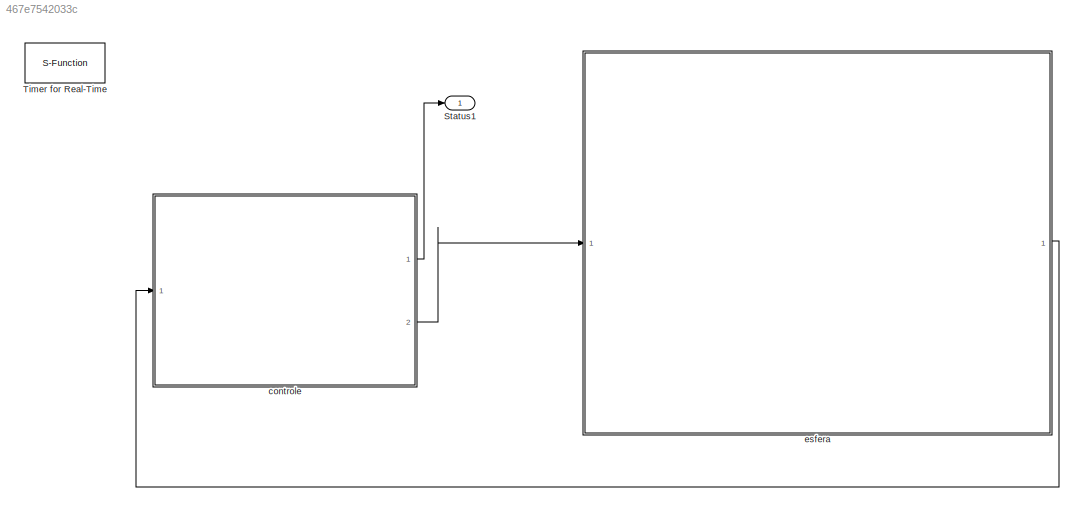
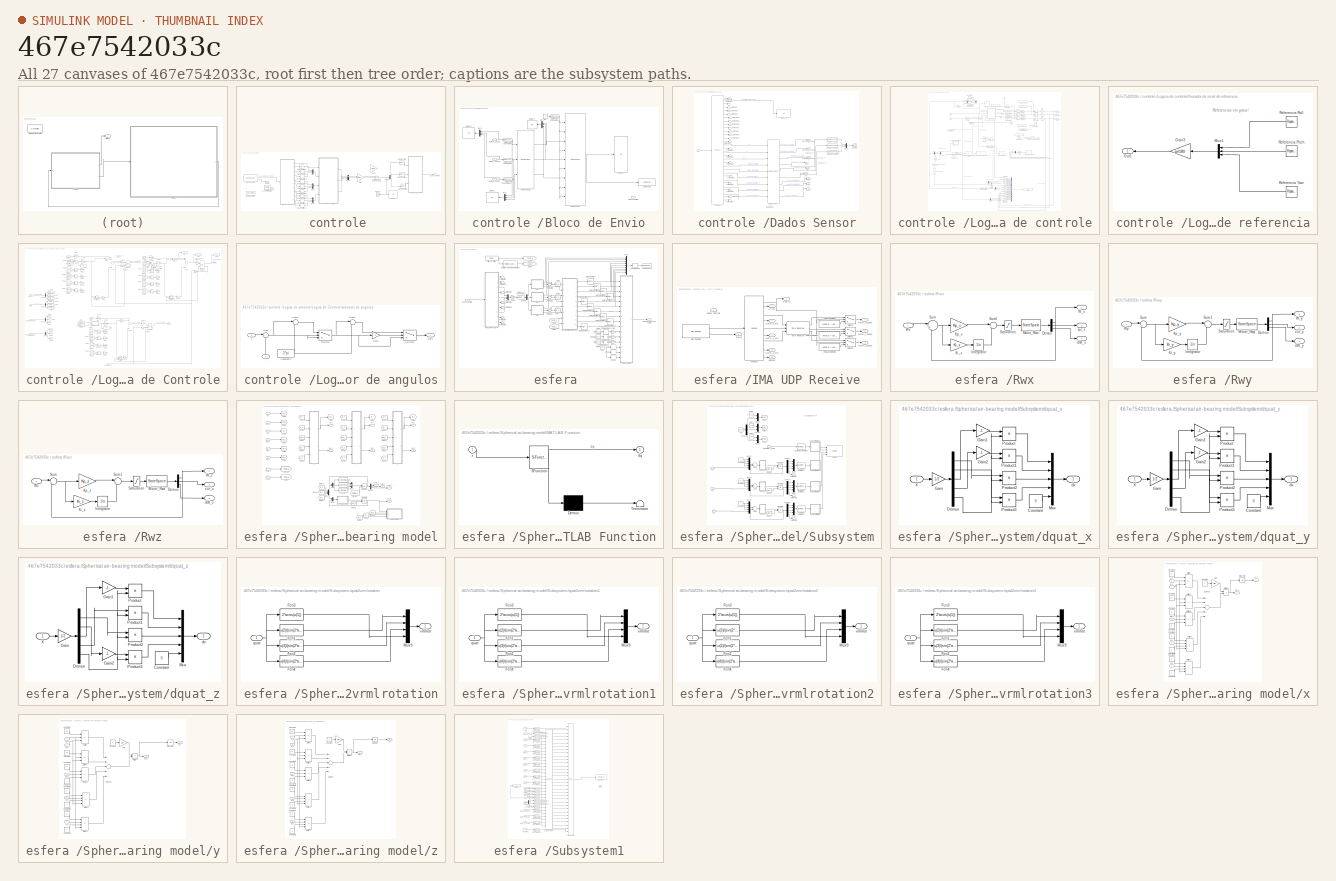
[diagram: thumbnail index - all 27 canvases of the model, root first then tree order]
MODEL slx_467e7542033c
KIND model
BLOCK [Outport] Status1
  IconDisplay = Port number
BLOCK [S-Function] Timer for Real-Time
  Commented = on
  EnableBusSupport = off
  FunctionName = sfun_rttime
  Parameters = 1
  Ports = [0, 1]
BLOCK [SubSystem] controle 
  Ports = [1, 2]
  RequestExecContextInheritance = off
BLOCK [SubSystem] controle /Bloco de Envio
  Ports = [3, 1]
  RequestExecContextInheritance = off
BLOCK [Reference] controle /Bloco de Envio/Byte Packing   REF=xpcutilitieslib/Byte Packing 
  MaskAlignment = 1
  MaskPackedDataType = uint8
  MaskUnpackedDataTypes = {'uint8','uint8','int16','uint8','int16','uint8','int16','uint8', 'uint8'}
  Ports = [9, 1]
  SourceBlock = xpcutilitieslib/Byte Packing
  SourceType = xpcbytepacking
BLOCK [Reference] controle /Bloco de Envio/Byte Reversal3  REF=etargetslib/Byte Reversal
  Ports = [3, 3]
  SourceBlock = etargetslib/Byte Reversal
  SourceType = Byte Reversal
  numInp = 3
BLOCK [Outport] controle /Bloco de Envio/Dados Controle
  IconDisplay = Port number
  OutDataTypeStr = int16
BLOCK [DataTypeConversion] controle /Bloco de Envio/Data Type Conversion17
  OutDataTypeStr = int16
  RndMeth = Floor
BLOCK [DataTypeConversion] controle /Bloco de Envio/Data Type Conversion2
  OutDataTypeStr = uint8
  RndMeth = Floor
BLOCK [DataTypeConversion] controle /Bloco de Envio/Data Type Conversion6
  OutDataTypeStr = int16
  RndMeth = Floor
BLOCK [DataTypeConversion] controle /Bloco de Envio/Data Type Conversion8
  OutDataTypeStr = int16
  RndMeth = Floor
BLOCK [Display] controle /Bloco de Envio/Display1
  Decimation = 1
  Ports = [1]
BLOCK [Display] controle /Bloco de Envio/Display2
  Decimation = 1
  Ports = [1]
BLOCK [Display] controle /Bloco de Envio/Display3
  Decimation = 1
  Format = hex (Stored Integer)
  Ports = [1]
BLOCK [Display] controle /Bloco de Envio/Display4
  Decimation = 1
  Format = hex (Stored Integer)
  Ports = [1]
BLOCK [Constant] controle /Bloco de Envio/ID1
  OutDataTypeStr = uint8
BLOCK [Inport] controle /Bloco de Envio/Motor_X_Speed
  IconDisplay = Port number
BLOCK [Inport] controle /Bloco de Envio/Motor_Y_Speed
  IconDisplay = Port number
  Port = 2
BLOCK [Inport] controle /Bloco de Envio/Motor_Z_Speed
  IconDisplay = Port number
  Port = 3
BLOCK [Mux] controle /Bloco de Envio/Mux1
  DisplayOption = bar
  Inputs = 3
  Ports = [3, 1]
BLOCK [Mux] controle /Bloco de Envio/Mux2
  DisplayOption = bar
  Inputs = 3
  Ports = [3, 1]
BLOCK [Mux] controle /Bloco de Envio/Mux3
  DisplayOption = bar
  Inputs = 3
  Ports = [3, 1]
BLOCK [Reference] controle /Bloco de Envio/UDP Send1  REF=instrumentlib/UDP Send
  ByteOrder = LittleEndian
  EnableBlockingMode = off
  Host = 127.0.0.1
  LocalPort = 35206
  Port = 35207
  Ports = [1]
  SourceBlock = instrumentlib/UDP Send
  SourceType = UDP Send
BLOCK [Inport] controle /Dados
  IconDisplay = Port number
BLOCK [Outport] controle /Dados Controle
  IconDisplay = Port number
  OutDataTypeStr = int16
  Port = 2
BLOCK [SubSystem] controle /Dados Sensor
  Ports = [1, 10]
  RequestExecContextInheritance = off
BLOCK [Reference] controle /Dados Sensor/Angle Conversion  REF=aerolibconvert2/Angle Conversion
  IU = rad
  OU = deg
  Ports = [1, 1]
  SourceBlock = aerolibconvert2/Angle Conversion
  SourceType = Angle Conversion
BLOCK [Reference] controle /Dados Sensor/Angle Conversion1  REF=aerolibconvert2/Angle Conversion
  IU = rad
  OU = deg
  Ports = [1, 1]
  SourceBlock = aerolibconvert2/Angle Conversion
  SourceType = Angle Conversion
BLOCK [Reference] controle /Dados Sensor/Angle Conversion2  REF=aerolibconvert2/Angle Conversion
  IU = rad
  OU = deg
  Ports = [1, 1]
  SourceBlock = aerolibconvert2/Angle Conversion
  SourceType = Angle Conversion
BLOCK [Reference] controle /Dados Sensor/Byte Reversal  REF=etargetslib/Byte Reversal
  Ports = [9, 9]
  SourceBlock = etargetslib/Byte Reversal
  SourceType = Byte Reversal
  numInp = 9
BLOCK [Display] controle /Dados Sensor/Display3
  Decimation = 1
  Ports = [1]
BLOCK [Inport] controle /Dados Sensor/In1
  IconDisplay = Port number
BLOCK [Outport] controle /Dados Sensor/Motor_X
  IconDisplay = Port number
  Port = 5
BLOCK [Outport] controle /Dados Sensor/Motor_Y
  IconDisplay = Port number
  Port = 6
BLOCK [Outport] controle /Dados Sensor/Motor_Z
  IconDisplay = Port number
  Port = 7
BLOCK [Outport] controle /Dados Sensor/Msg_ID
  IconDisplay = Port number
BLOCK [Mux] controle /Dados Sensor/Mux3
  DisplayOption = bar
  Inputs = 3
  Ports = [3, 1]
BLOCK [Outport] controle /Dados Sensor/Pitch
  IconDisplay = Port number
  Port = 3
BLOCK [Outport] controle /Dados Sensor/Roll
  IconDisplay = Port number
  Port = 2
BLOCK [Scope] controle /Dados Sensor/Scope
  DataFormat = StructureWithTime
  Floating = off
  LimitDataPoints = off
  NumInputPorts = 1
  Ports = [1]
  SampleTime = 0
  SaveName = ScopeData2
  ShowLegends = off
  YMax = 1.5
  YMin = 0.2
BLOCK [Terminator] controle /Dados Sensor/Terminator1
BLOCK [Terminator] controle /Dados Sensor/Terminator11
BLOCK [Terminator] controle /Dados Sensor/Terminator12
BLOCK [Terminator] controle /Dados Sensor/Terminator13
BLOCK [Terminator] controle /Dados Sensor/Terminator14
BLOCK [Terminator] controle /Dados Sensor/Terminator15
BLOCK [Terminator] controle /Dados Sensor/Terminator19
BLOCK [Terminator] controle /Dados Sensor/Terminator20
BLOCK [Terminator] controle /Dados Sensor/Terminator21
BLOCK [Terminator] controle /Dados Sensor/Terminator22
BLOCK [Terminator] controle /Dados Sensor/Terminator23
BLOCK [Terminator] controle /Dados Sensor/Terminator24
BLOCK [Terminator] controle /Dados Sensor/Terminator25
BLOCK [Terminator] controle /Dados Sensor/Terminator26
BLOCK [Terminator] controle /Dados Sensor/Terminator27
BLOCK [Terminator] controle /Dados Sensor/Terminator28
BLOCK [Terminator] controle /Dados Sensor/Terminator29
BLOCK [Terminator] controle /Dados Sensor/Terminator30
BLOCK [Terminator] controle /Dados Sensor/Terminator5
BLOCK [Terminator] controle /Dados Sensor/Terminator7
BLOCK [Reference] controle /Dados Sensor/Unpack  REF=slrtlib/UDP/Unpack 
  Ports = [1, 30]
  SourceBlock = slrtlib/UDP/Unpack
  SourceType = xpcbyte2any
  byteAlign = 1
  datatypes = {'uint8','single','uint32','single','uint32','single','uint32','single','uint32','single','uint32','single','uint32','single','uint32','single','uint32','single','uint32','single','single','single','single','int16','uint32','int16','uint32','int16','uint32','uint8'}
  dimensions = {[1,1],[1,1],[1,1],[1,1],[1,1],[1,1],[1,1],[1,1],[1,1],[1,1],[1,1],[1,1],[1,1],[1,1],[1,1],[1,1],[1,1],[1,1],[1,1],[1,1],[1,1],[1,1],[1,4],[1,1],[1,1],[1,1],[1,1],[1,1],[1,1],[1,1]}
BLOCK [Outport] controle /Dados Sensor/Velocidade Angular X
  IconDisplay = Port number
  Port = 8
BLOCK [Outport] controle /Dados Sensor/Velocidade Angular Y
  IconDisplay = Port number
  Port = 9
BLOCK [Outport] controle /Dados Sensor/Velocidade Angular Z
  IconDisplay = Port number
  Port = 10
BLOCK [Outport] controle /Dados Sensor/yaw
  IconDisplay = Port number
  Port = 4
BLOCK [Demux] controle /Demux
  DisplayOption = bar
  Outputs = 3
  Ports = [1, 3]
BLOCK [Display] controle /Display
  Decimation = 1
  Ports = [1]
BLOCK [Gain] controle /Gain1
  Commented = on
  Gain = 1/9.55
  OutDataTypeStr = Inherit: Inherit via internal rule
  ParamDataTypeStr = Inherit: Inherit via internal rule
BLOCK [Gain] controle /Gain3
  Gain = 1/(2*pi/60)
  OutDataTypeStr = Inherit: Inherit via internal rule
  ParamDataTypeStr = Inherit: Inherit via internal rule
  SaturateOnIntegerOverflow = off
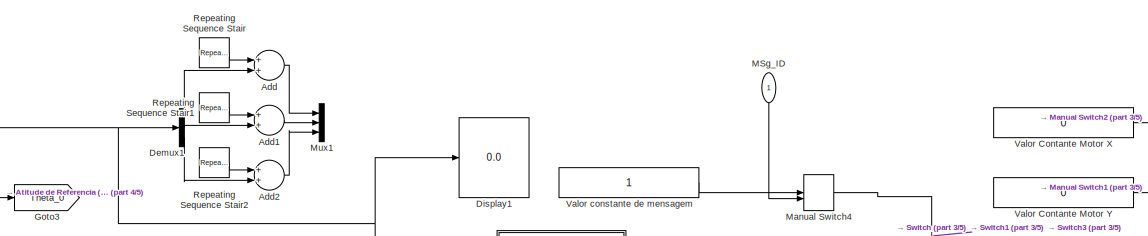
[diagram: controle /Logica de controle - part 1/5, top center region]
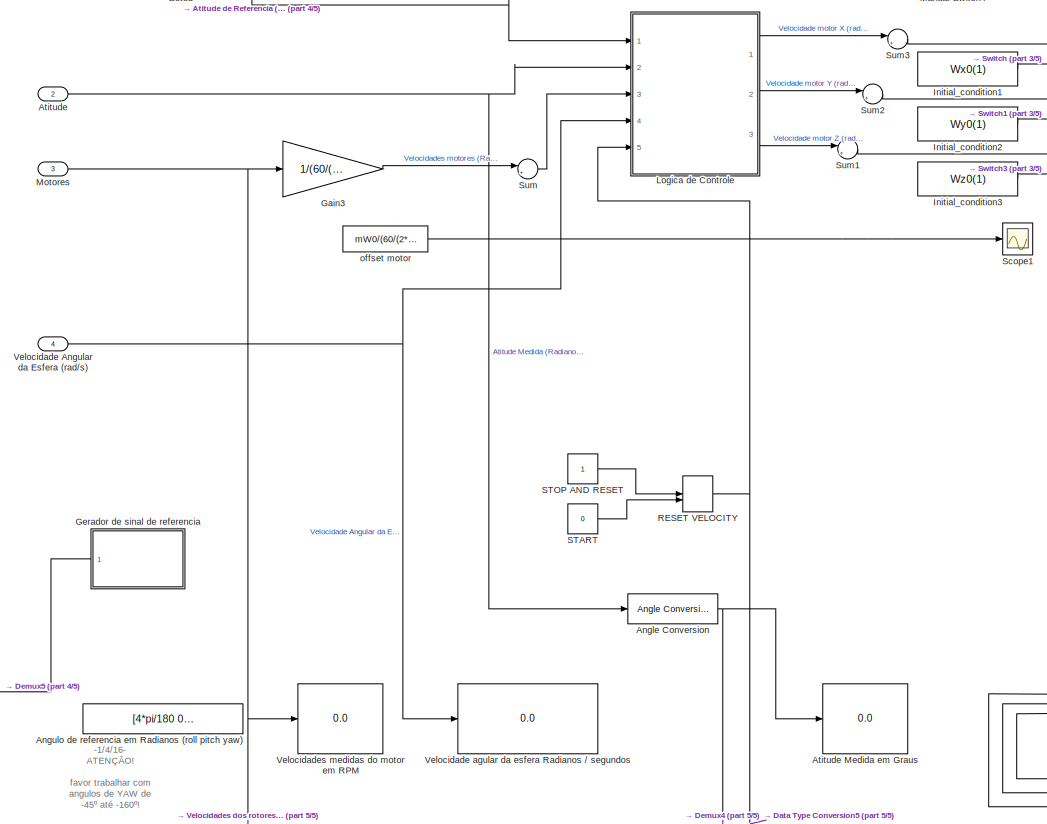
[diagram: controle /Logica de controle - part 2/5, central region]
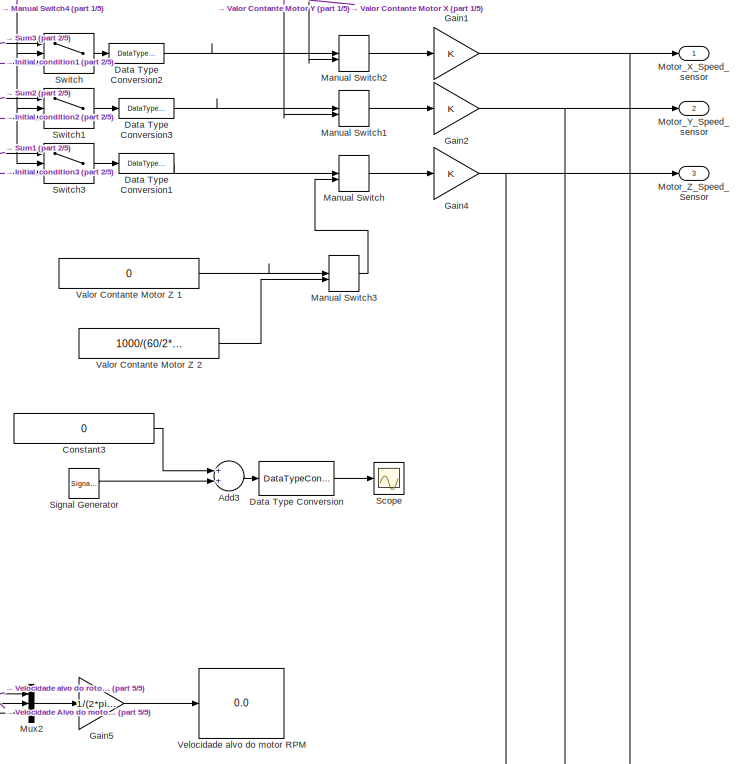
[diagram: controle /Logica de controle - part 3/5, top right region]
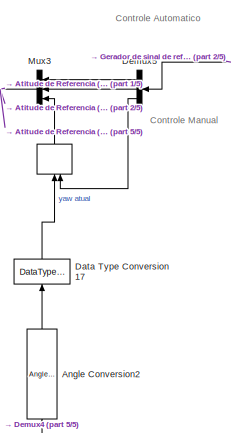
[diagram: controle /Logica de controle - part 4/5, middle left region]
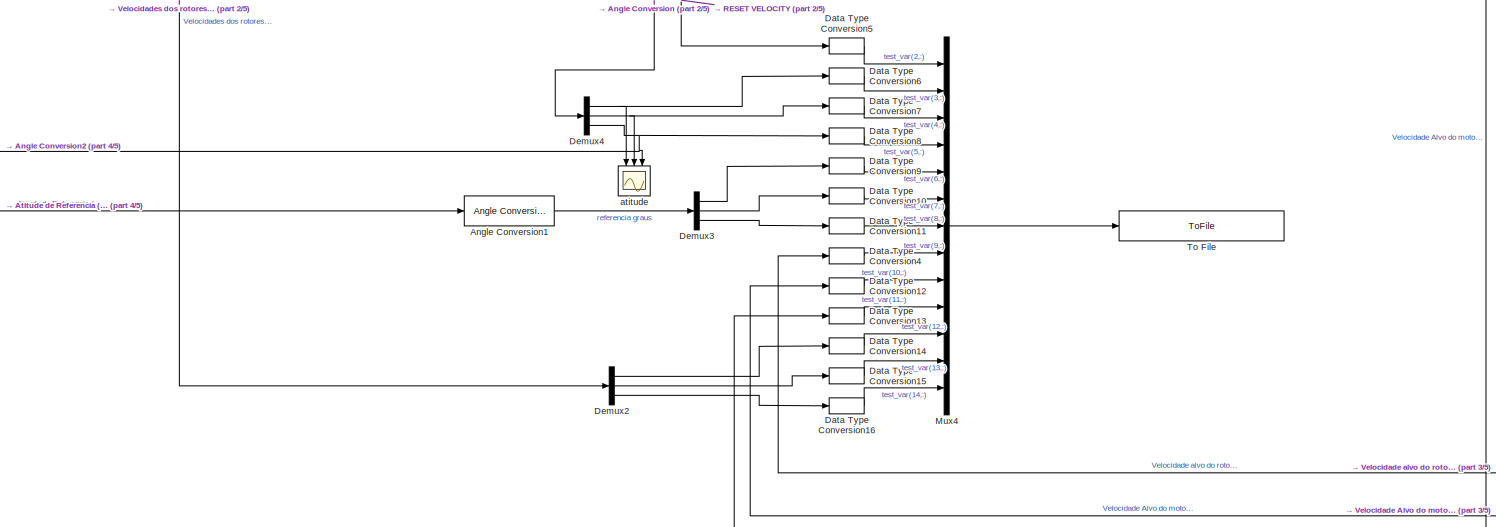
[diagram: controle /Logica de controle - part 5/5, bottom center region]
BLOCK [SubSystem] controle /Logica de controle
  Ports = [4, 3]
  RequestExecContextInheritance = off
BLOCK [ManualSwitch] controle /Logica de controle/ 
BLOCK [Sum] controle /Logica de controle/Add
  InputSameDT = off
  OutDataTypeStr = Inherit: Inherit via internal rule
  Ports = [2, 1]
  SaturateOnIntegerOverflow = off
BLOCK [Sum] controle /Logica de controle/Add1
  InputSameDT = off
  OutDataTypeStr = Inherit: Inherit via internal rule
  Ports = [2, 1]
  SaturateOnIntegerOverflow = off
BLOCK [Sum] controle /Logica de controle/Add2
  InputSameDT = off
  OutDataTypeStr = Inherit: Inherit via internal rule
  Ports = [2, 1]
  SaturateOnIntegerOverflow = off
BLOCK [Sum] controle /Logica de controle/Add3
  InputSameDT = off
  OutDataTypeStr = Inherit: Inherit via internal rule
  Ports = [2, 1]
  SaturateOnIntegerOverflow = off
BLOCK [Reference] controle /Logica de controle/Angle Conversion  REF=aerolibconvert2/Angle Conversion
  IU = rad
  OU = deg
  Ports = [1, 1]
  SourceBlock = aerolibconvert2/Angle Conversion
  SourceType = Angle Conversion
BLOCK [Reference] controle /Logica de controle/Angle Conversion1  REF=aerolibconvert2/Angle Conversion
  IU = rad
  OU = deg
  Ports = [1, 1]
  SourceBlock = aerolibconvert2/Angle Conversion
  SourceType = Angle Conversion
BLOCK [Reference] controle /Logica de controle/Angle Conversion2  REF=aerolibconvert2/Angle Conversion
  IU = deg
  OU = rad
  Ports = [1, 1]
  SourceBlock = aerolibconvert2/Angle Conversion
  SourceType = Angle Conversion
BLOCK [Constant] controle /Logica de controle/Angulo de referencia em Radianos (roll pitch yaw)
  Value = [4*pi/180 0*pi/180 150*pi/180]
  VectorParams1D = off
BLOCK [Inport] controle /Logica de controle/Atitude
  IconDisplay = Port number
  Port = 2
BLOCK [Display] controle /Logica de controle/Atitude Medida em Graus
  Decimation = 3
  Ports = [1]
BLOCK [Constant] controle /Logica de controle/Constant3
  OutDataTypeStr = int16
  Value = 0
BLOCK [DataTypeConversion] controle /Logica de controle/Data Type Conversion
  OutDataTypeStr = int16
  RndMeth = Floor
  SaturateOnIntegerOverflow = off
BLOCK [DataTypeConversion] controle /Logica de controle/Data Type Conversion1
  OutDataTypeStr = int16
  RndMeth = Floor
BLOCK [DataTypeConversion] controle /Logica de controle/Data Type Conversion10
  OutDataTypeStr = double
  RndMeth = Floor
BLOCK [DataTypeConversion] controle /Logica de controle/Data Type Conversion11
  OutDataTypeStr = double
  RndMeth = Floor
BLOCK [DataTypeConversion] controle /Logica de controle/Data Type Conversion12
  OutDataTypeStr = double
  RndMeth = Floor
BLOCK [DataTypeConversion] controle /Logica de controle/Data Type Conversion13
  OutDataTypeStr = double
  RndMeth = Floor
BLOCK [DataTypeConversion] controle /Logica de controle/Data Type Conversion14
  OutDataTypeStr = double
  RndMeth = Floor
BLOCK [DataTypeConversion] controle /Logica de controle/Data Type Conversion15
  OutDataTypeStr = double
  RndMeth = Floor
BLOCK [DataTypeConversion] controle /Logica de controle/Data Type Conversion16
  OutDataTypeStr = double
  RndMeth = Floor
BLOCK [DataTypeConversion] controle /Logica de controle/Data Type Conversion17
  OutDataTypeStr = double
  RndMeth = Floor
BLOCK [DataTypeConversion] controle /Logica de controle/Data Type Conversion2
  OutDataTypeStr = int16
  RndMeth = Floor
BLOCK [DataTypeConversion] controle /Logica de controle/Data Type Conversion3
  OutDataTypeStr = int16
  RndMeth = Floor
BLOCK [DataTypeConversion] controle /Logica de controle/Data Type Conversion4
  OutDataTypeStr = double
  RndMeth = Floor
BLOCK [DataTypeConversion] controle /Logica de controle/Data Type Conversion5
  OutDataTypeStr = double
  RndMeth = Floor
BLOCK [DataTypeConversion] controle /Logica de controle/Data Type Conversion6
  OutDataTypeStr = double
  RndMeth = Floor
BLOCK [DataTypeConversion] controle /Logica de controle/Data Type Conversion7
  OutDataTypeStr = double
  RndMeth = Floor
BLOCK [DataTypeConversion] controle /Logica de controle/Data Type Conversion8
  OutDataTypeStr = double
  RndMeth = Floor
BLOCK [DataTypeConversion] controle /Logica de controle/Data Type Conversion9
  OutDataTypeStr = double
  RndMeth = Floor
BLOCK [Demux] controle /Logica de controle/Demux1
  DisplayOption = bar
  Outputs = 3
  Ports = [1, 3]
BLOCK [Demux] controle /Logica de controle/Demux2
  DisplayOption = bar
  Outputs = 3
  Ports = [1, 3]
BLOCK [Demux] controle /Logica de controle/Demux3
  DisplayOption = bar
  Outputs = 3
  Ports = [1, 3]
BLOCK [Demux] controle /Logica de controle/Demux4
  DisplayOption = bar
  Outputs = 3
  Ports = [1, 3]
BLOCK [Demux] controle /Logica de controle/Demux5
  DisplayOption = bar
  Outputs = 3
  Ports = [1, 3]
BLOCK [Display] controle /Logica de controle/Display1
  Decimation = 1
  Ports = [1]
BLOCK [Gain] controle /Logica de controle/Gain1
  OutDataTypeStr = int16
  ParamDataTypeStr = Inherit: Inherit via internal rule
BLOCK [Gain] controle /Logica de controle/Gain2
  OutDataTypeStr = int16
  ParamDataTypeStr = Inherit: Inherit via internal rule
BLOCK [Gain] controle /Logica de controle/Gain3
  Gain = 1/(60/(2*pi))
  OutDataTypeStr = Inherit: Inherit via internal rule
  ParamDataTypeStr = Inherit: Inherit via internal rule
  SaturateOnIntegerOverflow = off
BLOCK [Gain] controle /Logica de controle/Gain4
  OutDataTypeStr = int16
  ParamDataTypeStr = Inherit: Inherit via internal rule
BLOCK [Gain] controle /Logica de controle/Gain5
  Gain = 1/(2*pi/60)
  OutDataTypeStr = int16
  ParamDataTypeStr = Inherit: Inherit via internal rule
BLOCK [SubSystem] controle /Logica de controle/Gerador de sinal de referencia
  Ports = [0, 1]
  RequestExecContextInheritance = off
BLOCK [Gain] controle /Logica de controle/Gerador de sinal de referencia/Gain3
  Gain = pi/180
  OutDataTypeStr = Inherit: Inherit via internal rule
  ParamDataTypeStr = Inherit: Inherit via internal rule
  SaturateOnIntegerOverflow = off
BLOCK [Mux] controle /Logica de controle/Gerador de sinal de referencia/Mux5
  DisplayOption = bar
  Inputs = 3
  Ports = [3, 1]
BLOCK [Outport] controle /Logica de controle/Gerador de sinal de referencia/Out1
  IconDisplay = Port number
BLOCK [Reference] controle /Logica de controle/Gerador de sinal de referencia/Referencia Pitch  REF=simulink/Sources/Repeating
Sequence
Interpolated
  LockScale = off
  LookUpMeth = Interpolation-Use End Values
  OutDataType = fixdt(0,8)
  OutDataTypeStr = double
  OutMax = []
  OutMin = []
  OutScaling = 2^-10
  OutValues = [0 0 5 5 -5 -5 0 0].'
  OutputDataTypeScalingMode = double
  Ports = [0, 1]
  SourceBlock = simulink/Sources/Repeating\nSequence\nInterpolated
  SourceType = Repeating Sequence Interpolated
  TimeValues = [0 180 180.1 240 240.1 300 300.1 360].'
  tsamp = -1
BLOCK [Reference] controle /Logica de controle/Gerador de sinal de referencia/Referencia Roll  REF=simulink/Sources/Repeating
Sequence
Interpolated
  LockScale = off
  LookUpMeth = Interpolation-Use End Values
  OutDataType = fixdt(0,8)
  OutDataTypeStr = double
  OutMax = []
  OutMin = []
  OutScaling = 2^-10
  OutValues = [5 5 -5 -5 0 0].'
  OutputDataTypeScalingMode = double
  Ports = [0, 1]
  SourceBlock = simulink/Sources/Repeating\nSequence\nInterpolated
  SourceType = Repeating Sequence Interpolated
  TimeValues = [0 60 60.1 120 120.1 360].'
  tsamp = -1
BLOCK [Reference] controle /Logica de controle/Gerador de sinal de referencia/Referencia Yaw  REF=simulink/Sources/Repeating
Sequence
Interpolated
  LockScale = off
  LookUpMeth = Interpolation-Use End Values
  OutDataType = fixdt(0,8)
  OutDataTypeStr = double
  OutMax = []
  OutMin = []
  OutScaling = 2^-10
  OutValues = [0 0 0 0 0].'
  OutputDataTypeScalingMode = double
  Ports = [0, 1]
  SourceBlock = simulink/Sources/Repeating\nSequence\nInterpolated
  SourceType = Repeating Sequence Interpolated
  TimeValues = [0 0.1 0.5 0.6 1].'
  tsamp = -1
BLOCK [Goto] controle /Logica de controle/Goto3
  GotoTag = Theta_0
BLOCK [Constant] controle /Logica de controle/Initial_condition1
  OutDataTypeStr = int16
  Value = Wx0(1)
BLOCK [Constant] controle /Logica de controle/Initial_condition2
  OutDataTypeStr = int16
  Value = Wy0(1)
BLOCK [Constant] controle /Logica de controle/Initial_condition3
  OutDataTypeStr = int16
  Value = Wz0(1)
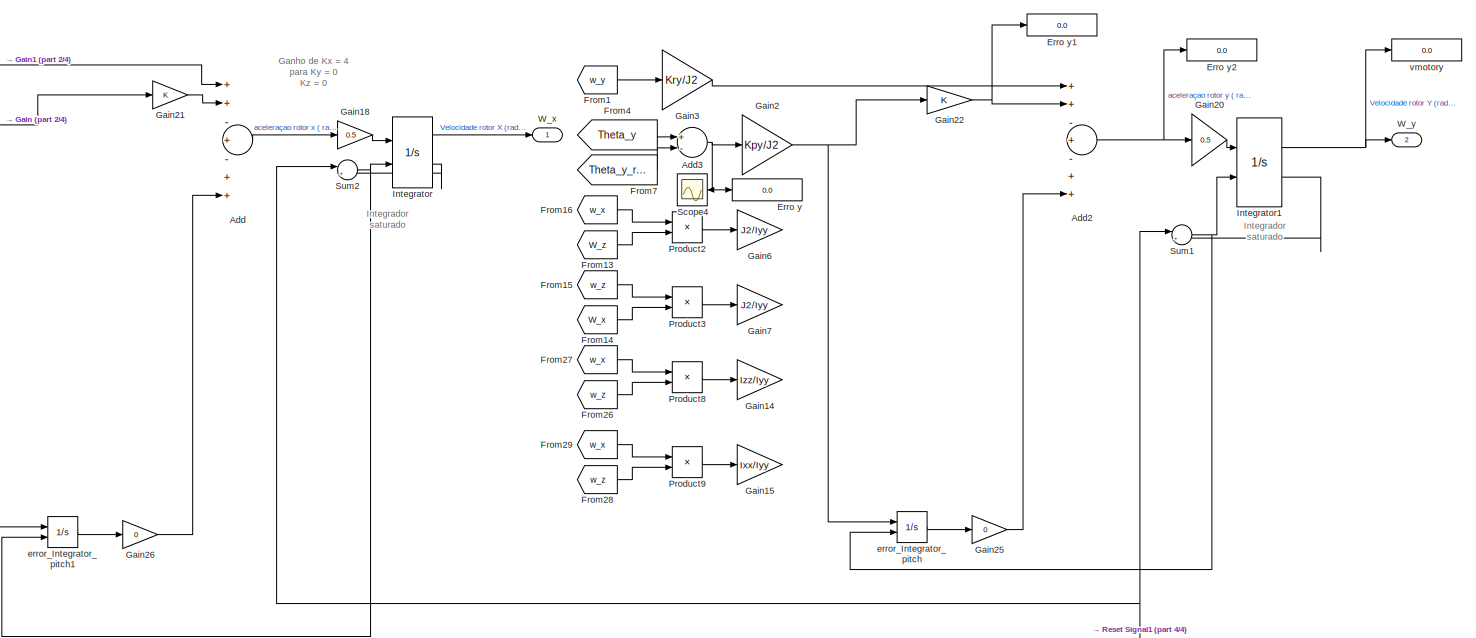
[diagram: controle /Logica de controle/Logica de Controle - part 1/4, top right region]
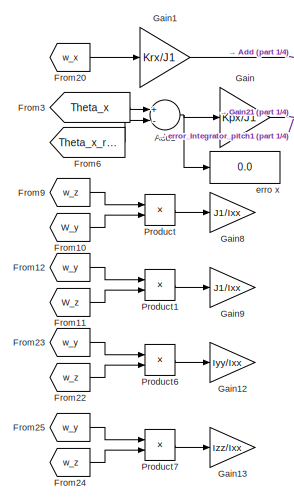
[diagram: controle /Logica de controle/Logica de Controle - part 2/4, top left region]
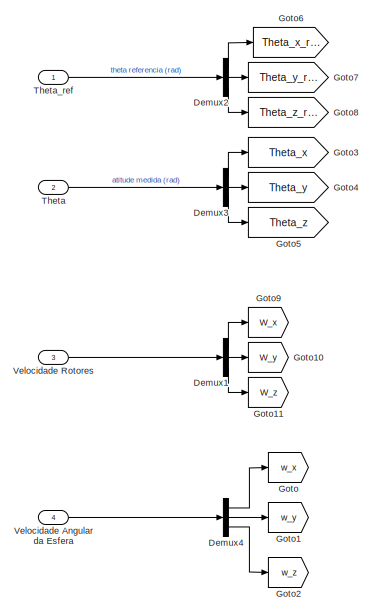
[diagram: controle /Logica de controle/Logica de Controle - part 3/4, middle left region]
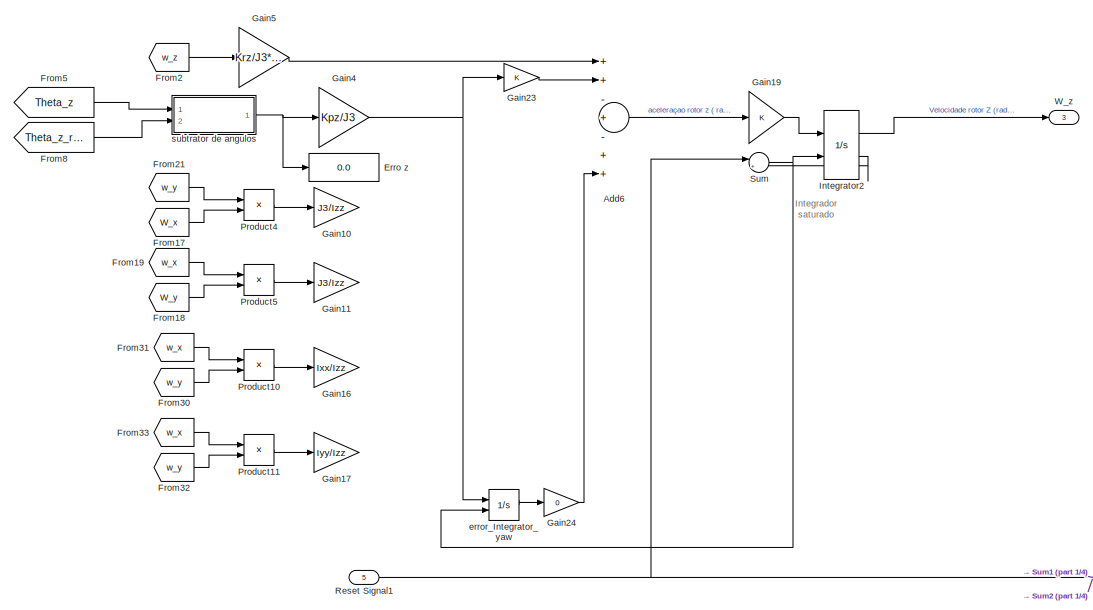
[diagram: controle /Logica de controle/Logica de Controle - part 4/4, bottom center region]
BLOCK [SubSystem] controle /Logica de controle/Logica de Controle
  Ports = [5, 3]
  RequestExecContextInheritance = off
BLOCK [Sum] controle /Logica de controle/Logica de Controle/Add
  InputSameDT = off
  Inputs = ++-+-++
  OutDataTypeStr = Inherit: Inherit via internal rule
  Ports = [7, 1]
  SaturateOnIntegerOverflow = off
BLOCK [Sum] controle /Logica de controle/Logica de Controle/Add1
  InputSameDT = off
  Inputs = +-
  OutDataTypeStr = Inherit: Inherit via internal rule
  Ports = [2, 1]
  SaturateOnIntegerOverflow = off
BLOCK [Sum] controle /Logica de controle/Logica de Controle/Add2
  InputSameDT = off
  Inputs = ++-+-++
  OutDataTypeStr = Inherit: Inherit via internal rule
  Ports = [7, 1]
  SaturateOnIntegerOverflow = off
BLOCK [Sum] controle /Logica de controle/Logica de Controle/Add3
  InputSameDT = off
  Inputs = +-
  OutDataTypeStr = Inherit: Inherit via internal rule
  Ports = [2, 1]
  SaturateOnIntegerOverflow = off
BLOCK [Sum] controle /Logica de controle/Logica de Controle/Add6
  InputSameDT = off
  Inputs = ++-+-++
  OutDataTypeStr = Inherit: Inherit via internal rule
  Ports = [7, 1]
  SaturateOnIntegerOverflow = off
BLOCK [Demux] controle /Logica de controle/Logica de Controle/Demux1
  DisplayOption = bar
  Outputs = 3
  Ports = [1, 3]
BLOCK [Demux] controle /Logica de controle/Logica de Controle/Demux2
  DisplayOption = bar
  Outputs = 3
  Ports = [1, 3]
BLOCK [Demux] controle /Logica de controle/Logica de Controle/Demux3
  DisplayOption = bar
  Outputs = 3
  Ports = [1, 3]
BLOCK [Demux] controle /Logica de controle/Logica de Controle/Demux4
  DisplayOption = bar
  Outputs = 3
  Ports = [1, 3]
BLOCK [Display] controle /Logica de controle/Logica de Controle/Erro y
  Decimation = 1
  Ports = [1]
BLOCK [Display] controle /Logica de controle/Logica de Controle/Erro y1
  Decimation = 1
  Ports = [1]
BLOCK [Display] controle /Logica de controle/Logica de Controle/Erro y2
  Decimation = 1
  Ports = [1]
BLOCK [Display] controle /Logica de controle/Logica de Controle/Erro z
  Decimation = 1
  Ports = [1]
BLOCK [From] controle /Logica de controle/Logica de Controle/From1
  GotoTag = w_y
BLOCK [From] controle /Logica de controle/Logica de Controle/From10
  GotoTag = W_y
BLOCK [From] controle /Logica de controle/Logica de Controle/From11
  GotoTag = W_z
BLOCK [From] controle /Logica de controle/Logica de Controle/From12
  GotoTag = w_y
BLOCK [From] controle /Logica de controle/Logica de Controle/From13
  GotoTag = W_z
BLOCK [From] controle /Logica de controle/Logica de Controle/From14
  GotoTag = W_x
BLOCK [From] controle /Logica de controle/Logica de Controle/From15
  GotoTag = w_z
BLOCK [From] controle /Logica de controle/Logica de Controle/From16
  GotoTag = w_x
BLOCK [From] controle /Logica de controle/Logica de Controle/From17
  GotoTag = W_x
BLOCK [From] controle /Logica de controle/Logica de Controle/From18
  GotoTag = W_y
BLOCK [From] controle /Logica de controle/Logica de Controle/From19
  GotoTag = w_x
BLOCK [From] controle /Logica de controle/Logica de Controle/From2
  GotoTag = w_z
BLOCK [From] controle /Logica de controle/Logica de Controle/From20
  GotoTag = w_x
BLOCK [From] controle /Logica de controle/Logica de Controle/From21
  GotoTag = w_y
BLOCK [From] controle /Logica de controle/Logica de Controle/From22
  GotoTag = w_z
BLOCK [From] controle /Logica de controle/Logica de Controle/From23
  GotoTag = w_y
BLOCK [From] controle /Logica de controle/Logica de Controle/From24
  GotoTag = w_z
BLOCK [From] controle /Logica de controle/Logica de Controle/From25
  GotoTag = w_y
BLOCK [From] controle /Logica de controle/Logica de Controle/From26
  GotoTag = w_z
BLOCK [From] controle /Logica de controle/Logica de Controle/From27
  GotoTag = w_x
BLOCK [From] controle /Logica de controle/Logica de Controle/From28
  GotoTag = w_z
BLOCK [From] controle /Logica de controle/Logica de Controle/From29
  GotoTag = w_x
BLOCK [From] controle /Logica de controle/Logica de Controle/From3
  GotoTag = Theta_x
BLOCK [From] controle /Logica de controle/Logica de Controle/From30
  GotoTag = w_y
BLOCK [From] controle /Logica de controle/Logica de Controle/From31
  GotoTag = w_x
BLOCK [From] controle /Logica de controle/Logica de Controle/From32
  GotoTag = w_y
BLOCK [From] controle /Logica de controle/Logica de Controle/From33
  GotoTag = w_x
BLOCK [From] controle /Logica de controle/Logica de Controle/From4
  GotoTag = Theta_y
BLOCK [From] controle /Logica de controle/Logica de Controle/From5
  GotoTag = Theta_z
BLOCK [From] controle /Logica de controle/Logica de Controle/From6
  GotoTag = Theta_x_ref
BLOCK [From] controle /Logica de controle/Logica de Controle/From7
  GotoTag = Theta_y_ref
BLOCK [From] controle /Logica de controle/Logica de Controle/From8
  GotoTag = Theta_z_ref
BLOCK [From] controle /Logica de controle/Logica de Controle/From9
  GotoTag = w_z
BLOCK [Gain] controle /Logica de controle/Logica de Controle/Gain
  Gain = Kpx/J1
  OutDataTypeStr = Inherit: Inherit via internal rule
  ParamDataTypeStr = Inherit: Inherit via internal rule
  SaturateOnIntegerOverflow = off
BLOCK [Gain] controle /Logica de controle/Logica de Controle/Gain1
  Gain = Krx/J1
  OutDataTypeStr = Inherit: Inherit via internal rule
  ParamDataTypeStr = Inherit: Inherit via internal rule
  SaturateOnIntegerOverflow = off
BLOCK [Gain] controle /Logica de controle/Logica de Controle/Gain10
  Gain = J3/Izz
  OutDataTypeStr = Inherit: Inherit via internal rule
  ParamDataTypeStr = Inherit: Inherit via internal rule
  SaturateOnIntegerOverflow = off
BLOCK [Gain] controle /Logica de controle/Logica de Controle/Gain11
  Gain = J3/Izz
  OutDataTypeStr = Inherit: Inherit via internal rule
  ParamDataTypeStr = Inherit: Inherit via internal rule
  SaturateOnIntegerOverflow = off
BLOCK [Gain] controle /Logica de controle/Logica de Controle/Gain12
  Gain = Iyy/Ixx
  OutDataTypeStr = Inherit: Inherit via internal rule
  ParamDataTypeStr = Inherit: Inherit via internal rule
  SaturateOnIntegerOverflow = off
BLOCK [Gain] controle /Logica de controle/Logica de Controle/Gain13
  Gain = Izz/Ixx
  OutDataTypeStr = Inherit: Inherit via internal rule
  ParamDataTypeStr = Inherit: Inherit via internal rule
  SaturateOnIntegerOverflow = off
BLOCK [Gain] controle /Logica de controle/Logica de Controle/Gain14
  Gain = Izz/Iyy
  OutDataTypeStr = Inherit: Inherit via internal rule
  ParamDataTypeStr = Inherit: Inherit via internal rule
  SaturateOnIntegerOverflow = off
BLOCK [Gain] controle /Logica de controle/Logica de Controle/Gain15
  Gain = Ixx/Iyy
  OutDataTypeStr = Inherit: Inherit via internal rule
  ParamDataTypeStr = Inherit: Inherit via internal rule
  SaturateOnIntegerOverflow = off
BLOCK [Gain] controle /Logica de controle/Logica de Controle/Gain16
  Gain = Ixx/Izz
  OutDataTypeStr = Inherit: Inherit via internal rule
  ParamDataTypeStr = Inherit: Inherit via internal rule
  SaturateOnIntegerOverflow = off
BLOCK [Gain] controle /Logica de controle/Logica de Controle/Gain17
  Gain = Iyy/Izz
  OutDataTypeStr = Inherit: Inherit via internal rule
  ParamDataTypeStr = Inherit: Inherit via internal rule
  SaturateOnIntegerOverflow = off
BLOCK [Gain] controle /Logica de controle/Logica de Controle/Gain18
  Gain = 0.5
  OutDataTypeStr = Inherit: Inherit via internal rule
  ParamDataTypeStr = Inherit: Inherit via internal rule
BLOCK [Gain] controle /Logica de controle/Logica de Controle/Gain19
  OutDataTypeStr = Inherit: Inherit via internal rule
  ParamDataTypeStr = Inherit: Inherit via internal rule
BLOCK [Gain] controle /Logica de controle/Logica de Controle/Gain2
  Gain = Kpy/J2
  OutDataTypeStr = Inherit: Inherit via internal rule
  ParamDataTypeStr = Inherit: Inherit via internal rule
  SaturateOnIntegerOverflow = off
BLOCK [Gain] controle /Logica de controle/Logica de Controle/Gain20
  Gain = 0.5
  OutDataTypeStr = Inherit: Inherit via internal rule
  ParamDataTypeStr = Inherit: Inherit via internal rule
BLOCK [Gain] controle /Logica de controle/Logica de Controle/Gain21
  OutDataTypeStr = Inherit: Inherit via internal rule
  ParamDataTypeStr = Inherit: Inherit via internal rule
BLOCK [Gain] controle /Logica de controle/Logica de Controle/Gain22
  OutDataTypeStr = Inherit: Inherit via internal rule
  ParamDataTypeStr = Inherit: Inherit via internal rule
BLOCK [Gain] controle /Logica de controle/Logica de Controle/Gain23
  OutDataTypeStr = Inherit: Inherit via internal rule
  ParamDataTypeStr = Inherit: Inherit via internal rule
BLOCK [Gain] controle /Logica de controle/Logica de Controle/Gain24
  Gain = 0
  OutDataTypeStr = Inherit: Inherit via internal rule
  ParamDataTypeStr = Inherit: Inherit via internal rule
BLOCK [Gain] controle /Logica de controle/Logica de Controle/Gain25
  Gain = 0
  OutDataTypeStr = Inherit: Inherit via internal rule
  ParamDataTypeStr = Inherit: Inherit via internal rule
BLOCK [Gain] controle /Logica de controle/Logica de Controle/Gain26
  Gain = 0
  OutDataTypeStr = Inherit: Inherit via internal rule
  ParamDataTypeStr = Inherit: Inherit via internal rule
BLOCK [Gain] controle /Logica de controle/Logica de Controle/Gain3
  Gain = Kry/J2
  OutDataTypeStr = Inherit: Inherit via internal rule
  ParamDataTypeStr = Inherit: Inherit via internal rule
  SaturateOnIntegerOverflow = off
BLOCK [Gain] controle /Logica de controle/Logica de Controle/Gain4
  Gain = Kpz/J3
  OutDataTypeStr = Inherit: Inherit via internal rule
  ParamDataTypeStr = Inherit: Inherit via internal rule
  SaturateOnIntegerOverflow = off
BLOCK [Gain] controle /Logica de controle/Logica de Controle/Gain5
  Gain = Krz/J3*0.5
  OutDataTypeStr = Inherit: Inherit via internal rule
  ParamDataTypeStr = Inherit: Inherit via internal rule
  SaturateOnIntegerOverflow = off
BLOCK [Gain] controle /Logica de controle/Logica de Controle/Gain6
  Gain = J2/Iyy
  OutDataTypeStr = Inherit: Inherit via internal rule
  ParamDataTypeStr = Inherit: Inherit via internal rule
  SaturateOnIntegerOverflow = off
BLOCK [Gain] controle /Logica de controle/Logica de Controle/Gain7
  Gain = J2/Iyy
  OutDataTypeStr = Inherit: Inherit via internal rule
  ParamDataTypeStr = Inherit: Inherit via internal rule
  SaturateOnIntegerOverflow = off
BLOCK [Gain] controle /Logica de controle/Logica de Controle/Gain8
  Gain = J1/Ixx
  OutDataTypeStr = Inherit: Inherit via internal rule
  ParamDataTypeStr = Inherit: Inherit via internal rule
  SaturateOnIntegerOverflow = off
BLOCK [Gain] controle /Logica de controle/Logica de Controle/Gain9
  Gain = J1/Ixx
  OutDataTypeStr = Inherit: Inherit via internal rule
  ParamDataTypeStr = Inherit: Inherit via internal rule
  SaturateOnIntegerOverflow = off
BLOCK [Goto] controle /Logica de controle/Logica de Controle/Goto
  GotoTag = w_x
BLOCK [Goto] controle /Logica de controle/Logica de Controle/Goto1
  GotoTag = w_y
BLOCK [Goto] controle /Logica de controle/Logica de Controle/Goto10
  GotoTag = W_y
BLOCK [Goto] controle /Logica de controle/Logica de Controle/Goto11
  GotoTag = W_z
BLOCK [Goto] controle /Logica de controle/Logica de Controle/Goto2
  GotoTag = w_z
BLOCK [Goto] controle /Logica de controle/Logica de Controle/Goto3
  GotoTag = Theta_x
BLOCK [Goto] controle /Logica de controle/Logica de Controle/Goto4
  GotoTag = Theta_y
BLOCK [Goto] controle /Logica de controle/Logica de Controle/Goto5
  GotoTag = Theta_z
BLOCK [Goto] controle /Logica de controle/Logica de Controle/Goto6
  GotoTag = Theta_x_ref
BLOCK [Goto] controle /Logica de controle/Logica de Controle/Goto7
  GotoTag = Theta_y_ref
BLOCK [Goto] controle /Logica de controle/Logica de Controle/Goto8
  GotoTag = Theta_z_ref
BLOCK [Goto] controle /Logica de controle/Logica de Controle/Goto9
  GotoTag = W_x
BLOCK [Integrator] controle /Logica de controle/Logica de Controle/Integrator
  ExternalReset = level
  InitialCondition = Wx0(1)
  LimitOutput = on
  LowerSaturationLimit = Wx0(1)-4000*2*pi/60
  Ports = [2, 2]
  ShowSaturationPort = on
  UpperSaturationLimit = Wx0(1)+4000*2*pi/60
BLOCK [Integrator] controle /Logica de controle/Logica de Controle/Integrator1
  ExternalReset = level
  InitialCondition = Wy0(1)
  LimitOutput = on
  LowerSaturationLimit = Wy0(1)-4000*2*pi/60
  Ports = [2, 2]
  ShowSaturationPort = on
  UpperSaturationLimit = Wy0(1)+4000*2*pi/60
BLOCK [Integrator] controle /Logica de controle/Logica de Controle/Integrator2
  ExternalReset = level
  InitialCondition = Wz0(1)
  LimitOutput = on
  LowerSaturationLimit = Wz0(1)-4000*2*pi/60
  Ports = [2, 2]
  ShowSaturationPort = on
  UpperSaturationLimit = Wz0(1)+4000*2*pi/60
BLOCK [Product] controle /Logica de controle/Logica de Controle/Product
  InputSameDT = off
  OutDataTypeStr = Inherit: Inherit via internal rule
  Ports = [2, 1]
  SaturateOnIntegerOverflow = off
BLOCK [Product] controle /Logica de controle/Logica de Controle/Product1
  InputSameDT = off
  OutDataTypeStr = Inherit: Inherit via internal rule
  Ports = [2, 1]
  SaturateOnIntegerOverflow = off
BLOCK [Product] controle /Logica de controle/Logica de Controle/Product10
  InputSameDT = off
  OutDataTypeStr = Inherit: Inherit via internal rule
  Ports = [2, 1]
  SaturateOnIntegerOverflow = off
BLOCK [Product] controle /Logica de controle/Logica de Controle/Product11
  InputSameDT = off
  OutDataTypeStr = Inherit: Inherit via internal rule
  Ports = [2, 1]
  SaturateOnIntegerOverflow = off
BLOCK [Product] controle /Logica de controle/Logica de Controle/Product2
  InputSameDT = off
  OutDataTypeStr = Inherit: Inherit via internal rule
  Ports = [2, 1]
  SaturateOnIntegerOverflow = off
BLOCK [Product] controle /Logica de controle/Logica de Controle/Product3
  InputSameDT = off
  OutDataTypeStr = Inherit: Inherit via internal rule
  Ports = [2, 1]
  SaturateOnIntegerOverflow = off
BLOCK [Product] controle /Logica de controle/Logica de Controle/Product4
  InputSameDT = off
  OutDataTypeStr = Inherit: Inherit via internal rule
  Ports = [2, 1]
  SaturateOnIntegerOverflow = off
BLOCK [Product] controle /Logica de controle/Logica de Controle/Product5
  InputSameDT = off
  OutDataTypeStr = Inherit: Inherit via internal rule
  Ports = [2, 1]
  SaturateOnIntegerOverflow = off
BLOCK [Product] controle /Logica de controle/Logica de Controle/Product6
  InputSameDT = off
  OutDataTypeStr = Inherit: Inherit via internal rule
  Ports = [2, 1]
  SaturateOnIntegerOverflow = off
BLOCK [Product] controle /Logica de controle/Logica de Controle/Product7
  InputSameDT = off
  OutDataTypeStr = Inherit: Inherit via internal rule
  Ports = [2, 1]
  SaturateOnIntegerOverflow = off
BLOCK [Product] controle /Logica de controle/Logica de Controle/Product8
  InputSameDT = off
  OutDataTypeStr = Inherit: Inherit via internal rule
  Ports = [2, 1]
  SaturateOnIntegerOverflow = off
BLOCK [Product] controle /Logica de controle/Logica de Controle/Product9
  InputSameDT = off
  OutDataTypeStr = Inherit: Inherit via internal rule
  Ports = [2, 1]
  SaturateOnIntegerOverflow = off
BLOCK [Inport] controle /Logica de controle/Logica de Controle/Reset Signal1
  IconDisplay = Port number
  Port = 5
BLOCK [Scope] controle /Logica de controle/Logica de Controle/Scope4
  DataFormat = StructureWithTime
  Floating = off
  NumInputPorts = 1
  Ports = [1]
  SampleTime = 0
  SaveName = ScopeData5
  ShowLegends = off
  TimeRange = 2
  YMax = 0
  YMin = -0.35
BLOCK [Sum] controle /Logica de controle/Logica de Controle/Sum
  AccumDataTypeStr = double
  IconShape = round
  InputSameDT = off
  Inputs = |++
  OutDataTypeStr = double
  Ports = [2, 1]
  SaturateOnIntegerOverflow = off
BLOCK [Sum] controle /Logica de controle/Logica de Controle/Sum1
  IconShape = round
  InputSameDT = off
  Inputs = |++
  OutDataTypeStr = double
  Ports = [2, 1]
  SaturateOnIntegerOverflow = off
BLOCK [Sum] controle /Logica de controle/Logica de Controle/Sum2
  IconShape = round
  InputSameDT = off
  Inputs = |++
  OutDataTypeStr = double
  Ports = [2, 1]
  SaturateOnIntegerOverflow = off
BLOCK [Inport] controle /Logica de controle/Logica de Controle/Theta
  IconDisplay = Port number
  Port = 2
BLOCK [Inport] controle /Logica de controle/Logica de Controle/Theta_ref
  IconDisplay = Port number
BLOCK [Inport] controle /Logica de controle/Logica de Controle/Velocidade Angular da Esfera
  IconDisplay = Port number
  Port = 4
BLOCK [Inport] controle /Logica de controle/Logica de Controle/Velocidade Rotores
  IconDisplay = Port number
  Port = 3
BLOCK [Outport] controle /Logica de controle/Logica de Controle/W_x
  IconDisplay = Port number
BLOCK [Outport] controle /Logica de controle/Logica de Controle/W_y
  IconDisplay = Port number
  Port = 2
BLOCK [Outport] controle /Logica de controle/Logica de Controle/W_z
  IconDisplay = Port number
  Port = 3
BLOCK [Display] controle /Logica de controle/Logica de Controle/erro x
  Decimation = 1
  Ports = [1]
BLOCK [Integrator] controle /Logica de controle/Logica de Controle/error_Integrator_pitch
  ExternalReset = level
  Ports = [2, 1]
BLOCK [Integrator] controle /Logica de controle/Logica de Controle/error_Integrator_pitch1
  ExternalReset = level
  Ports = [2, 1]
BLOCK [Integrator] controle /Logica de controle/Logica de Controle/error_Integrator_yaw
  ExternalReset = level
  Ports = [2, 1]
BLOCK [SubSystem] controle /Logica de controle/Logica de Controle/subtrator de angulos
  Ports = [2, 1]
  RequestExecContextInheritance = off
BLOCK [Inport] controle /Logica de controle/Logica de Controle/subtrator de angulos/+
  IconDisplay = Port number
BLOCK [Inport] controle /Logica de controle/Logica de Controle/subtrator de angulos/-
  IconDisplay = Port number
  Port = 2
BLOCK [Constant] controle /Logica de controle/Logica de Controle/subtrator de angulos/Constant2
  Value = 2*pi
BLOCK [Gain] controle /Logica de controle/Logica de Controle/subtrator de angulos/Gain
  Gain = -1
  OutDataTypeStr = Inherit: Inherit via internal rule
  ParamDataTypeStr = Inherit: Inherit via internal rule
  SaturateOnIntegerOverflow = off
BLOCK [Outport] controle /Logica de controle/Logica de Controle/subtrator de angulos/Out1
  IconDisplay = Port number
BLOCK [Sum] controle /Logica de controle/Logica de Controle/subtrator de angulos/Sum
  IconShape = round
  InputSameDT = off
  Inputs = |+-
  OutDataTypeStr = Inherit: Inherit via internal rule
  Ports = [2, 1]
  SaturateOnIntegerOverflow = off
BLOCK [Sum] controle /Logica de controle/Logica de Controle/subtrator de angulos/Sum1
  IconShape = round
  InputSameDT = off
  Inputs = |+-
  OutDataTypeStr = Inherit: Inherit via internal rule
  Ports = [2, 1]
  SaturateOnIntegerOverflow = off
BLOCK [Sum] controle /Logica de controle/Logica de Controle/subtrator de angulos/Sum2
  IconShape = round
  InputSameDT = off
  Inputs = |++
  OutDataTypeStr = Inherit: Inherit via internal rule
  Ports = [2, 1]
  SaturateOnIntegerOverflow = off
BLOCK [Switch] controle /Logica de controle/Logica de Controle/subtrator de angulos/Switch
  Criteria = u2 > Threshold
  InputSameDT = off
  SaturateOnIntegerOverflow = off
  Threshold = 180*pi/180
BLOCK [Switch] controle /Logica de controle/Logica de Controle/subtrator de angulos/Switch1
  Criteria = u2 > Threshold
  InputSameDT = off
  SaturateOnIntegerOverflow = off
  Threshold = 180*pi/180
BLOCK [Display] controle /Logica de controle/Logica de Controle/vmotory
  Decimation = 1
  Ports = [1]
BLOCK [Inport] controle /Logica de controle/MSg_ID
  IconDisplay = Port number
BLOCK [ManualSwitch] controle /Logica de controle/Manual Switch
BLOCK [ManualSwitch] controle /Logica de controle/Manual Switch1
BLOCK [ManualSwitch] controle /Logica de controle/Manual Switch2
BLOCK [ManualSwitch] controle /Logica de controle/Manual Switch3
BLOCK [ManualSwitch] controle /Logica de controle/Manual Switch4
  CurrentSetting = 0
BLOCK [Outport] controle /Logica de controle/Motor_X_Speed_sensor
  IconDisplay = Port number
BLOCK [Outport] controle /Logica de controle/Motor_Y_Speed_sensor
  IconDisplay = Port number
  Port = 2
BLOCK [Outport] controle /Logica de controle/Motor_Z_Speed_Sensor
  IconDisplay = Port number
  OutDataTypeStr = int16
  Port = 3
BLOCK [Inport] controle /Logica de controle/Motores
  IconDisplay = Port number
  Port = 3
BLOCK [Mux] controle /Logica de controle/Mux1
  DisplayOption = bar
  Inputs = 3
  Ports = [3, 1]
BLOCK [Mux] controle /Logica de controle/Mux2
  DisplayOption = bar
  Inputs = 3
  Ports = [3, 1]
BLOCK [Mux] controle /Logica de controle/Mux3
  DisplayOption = bar
  Inputs = 3
  Ports = [3, 1]
BLOCK [Mux] controle /Logica de controle/Mux4
  DisplayOption = bar
  Inputs = 13
  Ports = [13, 1]
BLOCK [ManualSwitch] controle /Logica de controle/RESET VELOCITY
  CurrentSetting = 0
BLOCK [Reference] controle /Logica de controle/Repeating Sequence Stair  REF=simulink/Sources/Repeating
Sequence
Stair
  ConRadixGroup = Best Precision: Vector-wise
  LockScale = off
  OutDataType = fixdt(0,8)
  OutDataTypeStr = double
  OutMax = []
  OutMin = []
  OutScaling = 2^-12
  OutValues = in1.'
  OutputDataTypeScalingMode = double
  Ports = [0, 1]
  SourceBlock = simulink/Sources/Repeating\nSequence\nStair
  SourceType = Repeating Sequence Stair
  tsamp = 1000
BLOCK [Reference] controle /Logica de controle/Repeating Sequence Stair1  REF=simulink/Sources/Repeating
Sequence
Stair
  ConRadixGroup = Best Precision: Vector-wise
  LockScale = off
  OutDataType = fixdt(0,8)
  OutDataTypeStr = double
  OutMax = []
  OutMin = []
  OutScaling = 2^-12
  OutValues = in2.'
  OutputDataTypeScalingMode = double
  Ports = [0, 1]
  SourceBlock = simulink/Sources/Repeating\nSequence\nStair
  SourceType = Repeating Sequence Stair
  tsamp = 1000
BLOCK [Reference] controle /Logica de controle/Repeating Sequence Stair2  REF=simulink/Sources/Repeating
Sequence
Stair
  ConRadixGroup = Best Precision: Vector-wise
  LockScale = off
  OutDataType = fixdt(0,8)
  OutDataTypeStr = double
  OutMax = []
  OutMin = []
  OutScaling = 2^-12
  OutValues = in3.'
  OutputDataTypeScalingMode = double
  Ports = [0, 1]
  SourceBlock = simulink/Sources/Repeating\nSequence\nStair
  SourceType = Repeating Sequence Stair
  tsamp = 1000
BLOCK [Constant] controle /Logica de controle/START
  OutDataTypeStr = boolean
  Value = 0
BLOCK [Constant] controle /Logica de controle/STOP AND RESET
  OutDataTypeStr = boolean
BLOCK [Scope] controle /Logica de controle/Scope
  DataFormat = StructureWithTime
  Floating = off
  LimitDataPoints = off
  NumInputPorts = 1
  Ports = [1]
  SampleTime = 0
  SaveName = sinal_referencia
  SaveToWorkspace = on
  ShowLegends = off
  YMax = -950
  YMin = -1050
BLOCK [Scope] controle /Logica de controle/Scope1
  DataFormat = StructureWithTime
  Floating = off
  LimitDataPoints = off
  NumInputPorts = 1
  Ports = [1]
  SampleTime = 0
  SaveName = sinal_referencia1
  SaveToWorkspace = on
  ShowLegends = off
  YMax = 523.599
  YMin = 523.599
BLOCK [SignalGenerator] controle /Logica de controle/Signal Generator
  Amplitude = 1000
  Frequency = 0.1
  Ports = [0, 1]
  WaveForm = square
BLOCK [Sum] controle /Logica de controle/Sum
  IconShape = round
  InputSameDT = off
  Inputs = |++
  OutDataTypeStr = Inherit: Inherit via internal rule
  Ports = [2, 1]
  SaturateOnIntegerOverflow = off
BLOCK [Sum] controle /Logica de controle/Sum1
  IconShape = round
  InputSameDT = off
  Inputs = |+-
  OutDataTypeStr = Inherit: Inherit via internal rule
  Ports = [2, 1]
  SaturateOnIntegerOverflow = off
BLOCK [Sum] controle /Logica de controle/Sum2
  IconShape = round
  InputSameDT = off
  Inputs = |+-
  OutDataTypeStr = Inherit: Inherit via internal rule
  Ports = [2, 1]
  SaturateOnIntegerOverflow = off
BLOCK [Sum] controle /Logica de controle/Sum3
  IconShape = round
  InputSameDT = off
  Inputs = |+-
  OutDataTypeStr = Inherit: Inherit via internal rule
  Ports = [2, 1]
  SaturateOnIntegerOverflow = off
BLOCK [Switch] controle /Logica de controle/Switch
  Criteria = u2 > Threshold
  InputSameDT = off
  OutDataTypeStr = int16
  SaturateOnIntegerOverflow = off
BLOCK [Switch] controle /Logica de controle/Switch1
  Criteria = u2 > Threshold
  InputSameDT = off
  OutDataTypeStr = int16
  SaturateOnIntegerOverflow = off
BLOCK [Switch] controle /Logica de controle/Switch3
  Criteria = u2 > Threshold
  InputSameDT = off
  OutDataTypeStr = int16
  SaturateOnIntegerOverflow = off
BLOCK [ToFile] controle /Logica de controle/To File
  Filename = test.mat
  MatrixName = test_var
  Ports = [1]
BLOCK [Constant] controle /Logica de controle/Valor Contante Motor X
  OutDataTypeStr = int16
  Value = 0
BLOCK [Constant] controle /Logica de controle/Valor Contante Motor Y
  OutDataTypeStr = int16
  Value = 0
BLOCK [Constant] controle /Logica de controle/Valor Contante Motor Z 1
  OutDataTypeStr = int16
  Value = 0
BLOCK [Constant] controle /Logica de controle/Valor Contante Motor Z 2
  OutDataTypeStr = int16
  Value = 1000/(60/2*pi)
BLOCK [Constant] controle /Logica de controle/Valor constante de mensagem
  OutDataTypeStr = int16
BLOCK [Inport] controle /Logica de controle/Velocidade Angular da Esfera (rad//s)
  IconDisplay = Port number
  Port = 4
BLOCK [Display] controle /Logica de controle/Velocidade agular da esfera Radianos // segundos
  Decimation = 3
  Format = decimal (Stored Integer)
  Ports = [1]
BLOCK [Display] controle /Logica de controle/Velocidade alvo do motor RPM
  Decimation = 3
  Ports = [1]
BLOCK [Display] controle /Logica de controle/Velocidades medidas do motor em RPM
  Decimation = 3
  Ports = [1]
BLOCK [Scope] controle /Logica de controle/atitude
  DataFormat = StructureWithTime
  Floating = off
  LimitDataPoints = off
  NumInputPorts = 3
  Ports = [3]
  SampleTime = 0
  SaveName = ScopeData4
  ShowLegends = off
  YMax = 3.86202~3~2.25
  YMin = 3.86202~0.75~-0.5
BLOCK [Constant] controle /Logica de controle/offset motor
  OutDataTypeStr = double
  Value = mW0/(60/(2*pi))
BLOCK [Mux] controle /Mux
  DisplayOption = bar
  Inputs = 3
  Ports = [3, 1]
BLOCK [Mux] controle /Mux1
  DisplayOption = bar
  Inputs = 3
  Ports = [3, 1]
BLOCK [Mux] controle /Mux2
  DisplayOption = bar
  Inputs = 3
  Ports = [3, 1]
BLOCK [Mux] controle /Mux3
  DisplayOption = bar
  Inputs = 3
  Ports = [3, 1]
BLOCK [RateTransition] controle /Rate Transition
  OutPortSampleTime = t
BLOCK [RateTransition] controle /Rate Transition1
  OutPortSampleTime = t
BLOCK [RateTransition] controle /Rate Transition10
  OutPortSampleTime = t
BLOCK [RateTransition] controle /Rate Transition11
  OutPortSampleTime = t
BLOCK [RateTransition] controle /Rate Transition2
  OutPortSampleTime = t
BLOCK [RateTransition] controle /Rate Transition3
  OutPortSampleTime = t
BLOCK [RateTransition] controle /Rate Transition4
  OutPortSampleTime = t
BLOCK [RateTransition] controle /Rate Transition5
  OutPortSampleTime = t
BLOCK [RateTransition] controle /Rate Transition6
  OutPortSampleTime = t
  X0 = 5000
BLOCK [RateTransition] controle /Rate Transition7
  OutPortSampleTime = t
  X0 = 5000
BLOCK [RateTransition] controle /Rate Transition8
  OutPortSampleTime = t
  X0 = 5000
BLOCK [RateTransition] controle /Rate Transition9
  OutPortSampleTime = t
BLOCK [Reference] controle /Real-Time Synchronization  REF=rtwinlib/Real-Time
Synchronization
  Commented = on
  MaxMissedTicks = 20
  Ports = []
  SampleTime = 0.1
  ShowMissedTicks = off
  SourceBlock = rtwinlib/Real-Time\nSynchronization
  SourceType = RTWin Real-Time Synchronization
  YieldWhenWaiting = off
BLOCK [Saturate] controle /Saturaçao de redundancia
  InputPortMap = u0
  LowerLimit = -4000+mW0*60/(2*pi)
  Ports = [1, 1]
  UpperLimit = 4000+mW0*60/(2*pi)
BLOCK [Scope] controle /Scope1
  DataFormat = StructureWithTime
  Floating = off
  LimitDataPoints = off
  NumInputPorts = 1
  Ports = [1]
  SampleTime = 0
  SaveName = ScopeData1
  ShowLegends = off
  YMax = 10000
  YMin = -10000
BLOCK [Outport] controle /Status1
  IconDisplay = Port number
BLOCK [S-Function] controle /Timer for Real-Time
  Commented = on
  EnableBusSupport = off
  FunctionName = sfun_rttime
  Parameters = 1
  Ports = [0, 1]
BLOCK [Reference] controle /UDP Receive  REF=instrumentlib/UDP Receive
  ByteOrder = BigEndian
  DataSize = 120
  DataType = uint8
  EnableBlockingMode = off
  Host = 127.0.0.1
  LocalPort = 35205
  Port = 35204
  Ports = [0, 2]
  SampleTime = 0.25
  SourceBlock = instrumentlib/UDP Receive
  SourceType = UDP Receive
  Timeout = 50
BLOCK [SubSystem] esfera 
  Ports = [1, 1]
  RequestExecContextInheritance = off
BLOCK [Inport] esfera /Dados Controle
  IconDisplay = Port number
BLOCK [DataTypeConversion] esfera /Data Type Conversion3
  OutDataTypeStr = double
  RndMeth = Floor
BLOCK [Demux] esfera /Demux1
  DisplayOption = bar
  Outputs = 3
  Ports = [1, 3]
BLOCK [From] esfera /From
  GotoTag = Motor_X_Speed
BLOCK [From] esfera /From1
  GotoTag = Motor_Y_Speed
BLOCK [From] esfera /From2
  GotoTag = Motor_Z_Speed
BLOCK [From] esfera /From3
  GotoTag = Theta_0
BLOCK [From] esfera /From4
  GotoTag = quat_0
BLOCK [Gain] esfera /Gain
  Gain = 60 / ( 2*pi )
  OutDataTypeStr = Inherit: Inherit via internal rule
  ParamDataTypeStr = Inherit: Inherit via internal rule
  SaturateOnIntegerOverflow = off
BLOCK [Gain] esfera /Gain2
  Gain = 60 / ( 2*pi )
  OutDataTypeStr = Inherit: Inherit via internal rule
  ParamDataTypeStr = Inherit: Inherit via internal rule
  SaturateOnIntegerOverflow = off
BLOCK [Gain] esfera /Gain4
  Gain = 60 / ( 2*pi )
  OutDataTypeStr = Inherit: Inherit via internal rule
  ParamDataTypeStr = Inherit: Inherit via internal rule
  SaturateOnIntegerOverflow = off
BLOCK [Gain] esfera /Gain5
  Gain = 2*pi/60
  OutDataTypeStr = Inherit: Inherit via internal rule
  ParamDataTypeStr = Inherit: Inherit via internal rule
  SaturateOnIntegerOverflow = off
BLOCK [Goto] esfera /Goto
  GotoTag = Motor_X_Speed
BLOCK [Goto] esfera /Goto1
  GotoTag = Motor_Y_Speed
BLOCK [Goto] esfera /Goto2
  GotoTag = Motor_Z_Speed
BLOCK [Goto] esfera /Goto3
  GotoTag = Theta_0
BLOCK [Goto] esfera /Goto4
  GotoTag = quat_0
BLOCK [SubSystem] esfera /IMA UDP Receive
  Ports = [1, 10]
  RequestExecContextInheritance = off
BLOCK [Outport] esfera /IMA UDP Receive/Act_EN
  IconDisplay = Port number
  Port = 2
BLOCK [Reference] esfera /IMA UDP Receive/Byte Reversal  REF=etargetslib/Byte Reversal
  Ports = [3, 3]
  SourceBlock = etargetslib/Byte Reversal
  SourceType = Byte Reversal
  numInp = 3
BLOCK [Inport] esfera /IMA UDP Receive/Dados Controle
  IconDisplay = Port number
BLOCK [Constant] esfera /IMA UDP Receive/Initial_condition
  Value = Wx0(1) * 60 / ( 2*pi )
BLOCK [Constant] esfera /IMA UDP Receive/Initial_condition1
  Value = Wy0(1) * 60 / ( 2*pi )
BLOCK [Constant] esfera /IMA UDP Receive/Initial_condition2
  Value = Wz0(1) * 60 / ( 2*pi )
BLOCK [Outport] esfera /IMA UDP Receive/Motor_X_Speed
  IconDisplay = Port number
  Port = 3
BLOCK [Outport] esfera /IMA UDP Receive/Motor_X_Way
  IconDisplay = Port number
  Port = 4
BLOCK [Outport] esfera /IMA UDP Receive/Motor_Y_Speed
  IconDisplay = Port number
  Port = 5
BLOCK [Outport] esfera /IMA UDP Receive/Motor_Y_Way
  IconDisplay = Port number
  Port = 7
BLOCK [Outport] esfera /IMA UDP Receive/Motor_Z_Speed
  IconDisplay = Port number
  Port = 8
BLOCK [Outport] esfera /IMA UDP Receive/Motor_Z_Way
  IconDisplay = Port number
  Port = 9
BLOCK [Outport] esfera /IMA UDP Receive/Msg_ID
  IconDisplay = Port number
BLOCK [Outport] esfera /IMA UDP Receive/Optional
  IconDisplay = Port number
  Port = 10
BLOCK [Outport] esfera /IMA UDP Receive/Status
  IconDisplay = Port number
  Port = 6
BLOCK [Switch] esfera /IMA UDP Receive/Switch
  Criteria = u2 > Threshold
  InputSameDT = off
  SaturateOnIntegerOverflow = off
BLOCK [Switch] esfera /IMA UDP Receive/Switch1
  Criteria = u2 > Threshold
  InputSameDT = off
  SaturateOnIntegerOverflow = off
BLOCK [Switch] esfera /IMA UDP Receive/Switch2
  Criteria = u2 > Threshold
  InputSameDT = off
  SaturateOnIntegerOverflow = off
BLOCK [Reference] esfera /IMA UDP Receive/UDP Receive  REF=instrumentlib/UDP Receive
  ByteOrder = BigEndian
  DataSize = 12
  DataType = uint8
  EnableBlockingMode = off
  Host = 127.0.0.1
  LocalPort = 35207
  Port = 35206
  Ports = [0, 2]
  SampleTime = 0.25
  SourceBlock = instrumentlib/UDP Receive
  SourceType = UDP Receive
  Timeout = 50
BLOCK [Reference] esfera /IMA UDP Receive/Unpack1  REF=slrtlib/UDP/Unpack 
  Ports = [1, 9]
  SourceBlock = slrtlib/UDP/Unpack
  SourceType = xpcbyte2any
  byteAlign = 1
  datatypes = {'uint8','uint8','int16','uint8','int16','uint8','int16','uint8', 'uint8'}
  dimensions = {[1,1],[1,1],[1,1],[1,1],[1,1],[1,1],[1,1],[1,1],[1,1]}
BLOCK [Constant] esfera /Initial_condition
  Value = [0 0 0]
BLOCK [Constant] esfera /Mag
  OutDataTypeStr = single
  Value = 6.5
BLOCK [Mux] esfera /Mux3
  DisplayOption = bar
  Inputs = 3
  Ports = [3, 1]
BLOCK [Mux] esfera /Mux4
  DisplayOption = bar
  Inputs = 9
  Ports = [9, 1]
BLOCK [RateTransition] esfera /Rate Transition10
  OutPortSampleTime = t
BLOCK [RateTransition] esfera /Rate Transition11
  OutPortSampleTime = t
BLOCK [RateTransition] esfera /Rate Transition12
  OutPortSampleTime = t
BLOCK [RateTransition] esfera /Rate Transition13
  OutPortSampleTime = t
BLOCK [RateTransition] esfera /Rate Transition14
  OutPortSampleTime = t
BLOCK [RateTransition] esfera /Rate Transition15
  OutPortSampleTime = t
BLOCK [RateTransition] esfera /Rate Transition16
  OutPortSampleTime = t
BLOCK [RateTransition] esfera /Rate Transition17
  OutPortSampleTime = t
BLOCK [RateTransition] esfera /Rate Transition18
  OutPortSampleTime = t
BLOCK [RateTransition] esfera /Rate Transition9
  OutPortSampleTime = t
BLOCK [Reference] esfera /Rotation Angles to Quaternions  REF=aerolibtransform2/Rotation Angles to Quaternions
  AttributesFormatString = Rotation Order: %<rotationOrder>
  Ports = [1, 1]
  SourceBlock = aerolibtransform2/Rotation Angles to Quaternions
  SourceType = Ang2Quat
  rotationOrder = XYZ
BLOCK [SubSystem] esfera /Rwx
  Ports = [1, 3]
  RequestExecContextInheritance = off
BLOCK [Demux] esfera /Rwx/Demux
  DisplayOption = bar
  Outputs = 3
  Ports = [1, 3]
BLOCK [Integrator] esfera /Rwx/Integrator
  InitialCondition = Wx0(1)/47.149
  Ports = [1, 1]
BLOCK [Gain] esfera /Rwx/Ki_x
  Gain = Ki_x
  OutDataTypeStr = Inherit: Inherit via internal rule
  ParamDataTypeStr = Inherit: Inherit via internal rule
  SaturateOnIntegerOverflow = off
BLOCK [Gain] esfera /Rwx/Kp_x
  Gain = Kp_x
  OutDataTypeStr = Inherit: Inherit via internal rule
  ParamDataTypeStr = Inherit: Inherit via internal rule
  SaturateOnIntegerOverflow = off
BLOCK [StateSpace] esfera /Rwx/Motor_Rwx
  A = Arwx
  B = Brwx
  C = Crwx
  D = Drwx
  Ports = [1, 1]
  X0 = Wx0
BLOCK [Saturate] esfera /Rwx/Saturation
  InputPortMap = u0
  LowerLimit = -100
  Ports = [1, 1]
  UpperLimit = 100
BLOCK [Sum] esfera /Rwx/Sum
  IconShape = round
  InputSameDT = off
  Inputs = |+-
  OutDataTypeStr = Inherit: Inherit via internal rule
  Ports = [2, 1]
  SaturateOnIntegerOverflow = off
BLOCK [Sum] esfera /Rwx/Sum1
  IconShape = round
  InputSameDT = off
  Inputs = |++
  OutDataTypeStr = Inherit: Inherit via internal rule
  Ports = [2, 1]
  SaturateOnIntegerOverflow = off
BLOCK [Outport] esfera /Rwx/W_x
  IconDisplay = Port number
BLOCK [Inport] esfera /Rwx/Wx
  IconDisplay = Port number
BLOCK [Outport] esfera /Rwx/cur_x
  IconDisplay = Port number
  Port = 2
BLOCK [Outport] esfera /Rwx/dW_x
  IconDisplay = Port number
  Port = 3
BLOCK [SubSystem] esfera /Rwy
  Ports = [1, 3]
  RequestExecContextInheritance = off
BLOCK [Demux] esfera /Rwy/Demux
  DisplayOption = bar
  Outputs = 3
  Ports = [1, 3]
BLOCK [Integrator] esfera /Rwy/Integrator
  InitialCondition = Wy0(1)/47.149
  Ports = [1, 1]
BLOCK [Gain] esfera /Rwy/Ki_y
  Gain = Ki_y
  OutDataTypeStr = Inherit: Inherit via internal rule
  ParamDataTypeStr = Inherit: Inherit via internal rule
  SaturateOnIntegerOverflow = off
BLOCK [Gain] esfera /Rwy/Kp_y
  Gain = Kp_y
  OutDataTypeStr = Inherit: Inherit via internal rule
  ParamDataTypeStr = Inherit: Inherit via internal rule
  SaturateOnIntegerOverflow = off
BLOCK [StateSpace] esfera /Rwy/Motor_Rwy
  A = Arwy
  B = Brwy
  C = Crwy
  D = Drwy
  Ports = [1, 1]
  X0 = Wy0
BLOCK [Saturate] esfera /Rwy/Saturation
  InputPortMap = u0
  LowerLimit = -100
  Ports = [1, 1]
  UpperLimit = 100
BLOCK [Sum] esfera /Rwy/Sum
  IconShape = round
  InputSameDT = off
  Inputs = |+-
  OutDataTypeStr = Inherit: Inherit via internal rule
  Ports = [2, 1]
  SaturateOnIntegerOverflow = off
BLOCK [Sum] esfera /Rwy/Sum1
  IconShape = round
  InputSameDT = off
  Inputs = |++
  OutDataTypeStr = Inherit: Inherit via internal rule
  Ports = [2, 1]
  SaturateOnIntegerOverflow = off
BLOCK [Outport] esfera /Rwy/W_y
  IconDisplay = Port number
BLOCK [Inport] esfera /Rwy/Wy
  IconDisplay = Port number
BLOCK [Outport] esfera /Rwy/cur_y
  IconDisplay = Port number
  Port = 2
BLOCK [Outport] esfera /Rwy/dW_y
  IconDisplay = Port number
  Port = 3
BLOCK [SubSystem] esfera /Rwz
  Ports = [1, 3]
  RequestExecContextInheritance = off
BLOCK [Demux] esfera /Rwz/Demux
  DisplayOption = bar
  Outputs = 3
  Ports = [1, 3]
BLOCK [Integrator] esfera /Rwz/Integrator
  InitialCondition = Wz0(1)/47.149
  Ports = [1, 1]
BLOCK [Gain] esfera /Rwz/Ki_z
  Gain = Ki_z
  OutDataTypeStr = Inherit: Inherit via internal rule
  ParamDataTypeStr = Inherit: Inherit via internal rule
  SaturateOnIntegerOverflow = off
BLOCK [Gain] esfera /Rwz/Kp_z
  Gain = Kp_z
  OutDataTypeStr = Inherit: Inherit via internal rule
  ParamDataTypeStr = Inherit: Inherit via internal rule
  SaturateOnIntegerOverflow = off
BLOCK [StateSpace] esfera /Rwz/Motor_Rwz
  A = Arwz
  B = Brwz
  C = Crwz
  D = Drwz
  Ports = [1, 1]
  X0 = Wz0
BLOCK [Saturate] esfera /Rwz/Saturation
  InputPortMap = u0
  LowerLimit = -100
  Ports = [1, 1]
  UpperLimit = 100
BLOCK [Sum] esfera /Rwz/Sum
  IconShape = round
  InputSameDT = off
  Inputs = |+-
  OutDataTypeStr = Inherit: Inherit via internal rule
  Ports = [2, 1]
  SaturateOnIntegerOverflow = off
BLOCK [Sum] esfera /Rwz/Sum1
  IconShape = round
  InputSameDT = off
  Inputs = |++
  OutDataTypeStr = Inherit: Inherit via internal rule
  Ports = [2, 1]
  SaturateOnIntegerOverflow = off
BLOCK [Outport] esfera /Rwz/W_z
  IconDisplay = Port number
BLOCK [Inport] esfera /Rwz/Wz
  IconDisplay = Port number
BLOCK [Outport] esfera /Rwz/cur_z
  IconDisplay = Port number
  Port = 2
BLOCK [Outport] esfera /Rwz/dW_z
  IconDisplay = Port number
  Port = 3
BLOCK [Outport] esfera /Saida de dados da esfera
  IconDisplay = Port number
BLOCK [SubSystem] esfera /Spherical air-bearing model
  Ports = [8, 10]
  RequestExecContextInheritance = off
BLOCK [Demux] esfera /Spherical air-bearing model/Demux
  DisplayOption = bar
  Outputs = 3
  Ports = [1, 3]
BLOCK [Fcn] esfera /Spherical air-bearing model/Fcn
  Expr = 1*u(4)+sin(u(1))*tan(u(2))*u(5)+cos(u(1))*tan(u(2))*u(6)
BLOCK [Fcn] esfera /Spherical air-bearing model/Fcn1
  Expr = 0*u(4)+cos(u(1))*u(5)-sin(u(1))*u(6)
BLOCK [Fcn] esfera /Spherical air-bearing model/Fcn2
  Expr = 0*u(4)+(sin(u(1))/cos(u(2)))*u(5)+(cos(u(1))/cos(u(2)))*u(6)
BLOCK [From] esfera /Spherical air-bearing model/From
  GotoTag = w_y
BLOCK [From] esfera /Spherical air-bearing model/From1
  GotoTag = w_z
BLOCK [From] esfera /Spherical air-bearing model/From10
  GotoTag = w_x
BLOCK [From] esfera /Spherical air-bearing model/From11
  GotoTag = w_y
BLOCK [From] esfera /Spherical air-bearing model/From12
  GotoTag = dW_z
BLOCK [From] esfera /Spherical air-bearing model/From13
  GotoTag = W_x
BLOCK [From] esfera /Spherical air-bearing model/From14
  GotoTag = W_y
BLOCK [From] esfera /Spherical air-bearing model/From15
  GotoTag = w_x
BLOCK [From] esfera /Spherical air-bearing model/From16
  GotoTag = w_y
BLOCK [From] esfera /Spherical air-bearing model/From17
  GotoTag = w_z
BLOCK [From] esfera /Spherical air-bearing model/From18
  GotoTag = W_x
BLOCK [From] esfera /Spherical air-bearing model/From19
  GotoTag = Theta_0
BLOCK [From] esfera /Spherical air-bearing model/From2
  GotoTag = w_z
BLOCK [From] esfera /Spherical air-bearing model/From20
  GotoTag = W_y
BLOCK [From] esfera /Spherical air-bearing model/From21
  GotoTag = W_z
BLOCK [From] esfera /Spherical air-bearing model/From23
  GotoTag = quat_0
BLOCK [From] esfera /Spherical air-bearing model/From3
  GotoTag = w_x
BLOCK [From] esfera /Spherical air-bearing model/From4
  GotoTag = dW_x
BLOCK [From] esfera /Spherical air-bearing model/From5
  GotoTag = W_y
BLOCK [From] esfera /Spherical air-bearing model/From6
  GotoTag = W_z
BLOCK [From] esfera /Spherical air-bearing model/From7
  GotoTag = dW_y
BLOCK [From] esfera /Spherical air-bearing model/From8
  GotoTag = W_z
BLOCK [From] esfera /Spherical air-bearing model/From9
  GotoTag = W_x
BLOCK [Goto] esfera /Spherical air-bearing model/Goto
  GotoTag = w_x
BLOCK [Goto] esfera /Spherical air-bearing model/Goto1
  GotoTag = w_y
BLOCK [Goto] esfera /Spherical air-bearing model/Goto10
  GotoTag = Theta_0
BLOCK [Goto] esfera /Spherical air-bearing model/Goto2
  GotoTag = w_z
BLOCK [Goto] esfera /Spherical air-bearing model/Goto3
  GotoTag = dW_x
BLOCK [Goto] esfera /Spherical air-bearing model/Goto4
  GotoTag = dW_y
BLOCK [Goto] esfera /Spherical air-bearing model/Goto5
  GotoTag = dW_z
BLOCK [Goto] esfera /Spherical air-bearing model/Goto6
  GotoTag = W_x
BLOCK [Goto] esfera /Spherical air-bearing model/Goto7
  GotoTag = W_y
BLOCK [Goto] esfera /Spherical air-bearing model/Goto8
  GotoTag = W_z
BLOCK [Goto] esfera /Spherical air-bearing model/Goto9
  GotoTag = quat_0
BLOCK [Integrator] esfera /Spherical air-bearing model/Integrator
  InitialConditionSource = external
  Ports = [2, 1]
BLOCK [Integrator] esfera /Spherical air-bearing model/Integrator1
  InitialConditionSource = external
  Ports = [2, 1]
BLOCK [SubSystem] esfera /Spherical air-bearing model/MATLAB Function
  ErrorFcn = Stateflow.Translate.translate
  PermitHierarchicalResolution = ExplicitOnly
  Ports = [1, 1]
  RequestExecContextInheritance = off
  SFBlockType = MATLAB Function
  TreatAsAtomicUnit = on
BLOCK [Demux] esfera /Spherical air-bearing model/MATLAB Function/ Demux 
  Outputs = 1
  Ports = [1, 1]
BLOCK [S-Function] esfera /Spherical air-bearing model/MATLAB Function/ SFunction 
  EnableBusSupport = on
  FunctionName = sf_sfun
  PortCounts = [1 2]
  Ports = [1, 2]
  Tag = Stateflow S-Function Controle_UDP_0809_simulador 2
BLOCK [Terminator] esfera /Spherical air-bearing model/MATLAB Function/ Terminator 
BLOCK [Outport] esfera /Spherical air-bearing model/MATLAB Function/dq
  IconDisplay = Port number
BLOCK [Inport] esfera /Spherical air-bearing model/MATLAB Function/x
  IconDisplay = Port number
BLOCK [Mux] esfera /Spherical air-bearing model/Mux
  DisplayOption = bar
  Inputs = 2
  Ports = [2, 1]
BLOCK [Mux] esfera /Spherical air-bearing model/Mux1
  DisplayOption = bar
  Inputs = 3
  Ports = [3, 1]
BLOCK [Mux] esfera /Spherical air-bearing model/Mux2
  DisplayOption = bar
  Inputs = 2
  Ports = [2, 1]
BLOCK [Mux] esfera /Spherical air-bearing model/Mux3
  DisplayOption = bar
  Inputs = 3
  Ports = [3, 1]
BLOCK [SubSystem] esfera /Spherical air-bearing model/Subsystem
  Ports = [4]
  RequestExecContextInheritance = off
BLOCK [Sum] esfera /Spherical air-bearing model/Subsystem/Add2
  InputSameDT = off
  OutDataTypeStr = Inherit: Inherit via internal rule
  Ports = [2, 1]
  SaturateOnIntegerOverflow = off
BLOCK [Sum] esfera /Spherical air-bearing model/Subsystem/Add3
  InputSameDT = off
  OutDataTypeStr = Inherit: Inherit via internal rule
  Ports = [2, 1]
  SaturateOnIntegerOverflow = off
BLOCK [Sum] esfera /Spherical air-bearing model/Subsystem/Add4
  InputSameDT = off
  OutDataTypeStr = Inherit: Inherit via internal rule
  Ports = [2, 1]
  SaturateOnIntegerOverflow = off
BLOCK [Constant] esfera /Spherical air-bearing model/Subsystem/Constant3
  Value = 0
BLOCK [Constant] esfera /Spherical air-bearing model/Subsystem/Constant4
  Value = 0
BLOCK [Constant] esfera /Spherical air-bearing model/Subsystem/Constant5
  Value = 0
BLOCK [Demux] esfera /Spherical air-bearing model/Subsystem/Demux2
  DisplayOption = bar
  Outputs = 5
  Ports = [1, 5]
BLOCK [Demux] esfera /Spherical air-bearing model/Subsystem/Demux4
  DisplayOption = bar
  Outputs = 5
  Ports = [1, 5]
BLOCK [Demux] esfera /Spherical air-bearing model/Subsystem/Demux6
  DisplayOption = bar
  Outputs = 5
  Ports = [1, 5]
BLOCK [Demux] esfera /Spherical air-bearing model/Subsystem/Demux8
  DisplayOption = bar
  Outputs = 3
  Ports = [1, 3]
BLOCK [From] esfera /Spherical air-bearing model/Subsystem/From18
  GotoTag = Wx0
  TagVisibility = global
BLOCK [From] esfera /Spherical air-bearing model/Subsystem/From20
  GotoTag = Wy0
  TagVisibility = global
BLOCK [From] esfera /Spherical air-bearing model/Subsystem/From21
  GotoTag = Wz0
  TagVisibility = global
BLOCK [Goto] esfera /Spherical air-bearing model/Subsystem/Goto11
  GotoTag = Wx0
  TagVisibility = global
BLOCK [Goto] esfera /Spherical air-bearing model/Subsystem/Goto12
  GotoTag = Wy0
  TagVisibility = global
BLOCK [Goto] esfera /Spherical air-bearing model/Subsystem/Goto13
  GotoTag = Wz0
  TagVisibility = global
BLOCK [Integrator] esfera /Spherical air-bearing model/Subsystem/Integrator2
  InitialCondition = Wx0
  InitialConditionSource = external
  Ports = [2, 1]
BLOCK [Integrator] esfera /Spherical air-bearing model/Subsystem/Integrator3
  InitialCondition = Wy0
  InitialConditionSource = external
  Ports = [2, 1]
BLOCK [Integrator] esfera /Spherical air-bearing model/Subsystem/Integrator4
  InitialCondition = Wz0
  InitialConditionSource = external
  Ports = [2, 1]
BLOCK [Mux] esfera /Spherical air-bearing model/Subsystem/Mux10
  DisplayOption = bar
  Inputs = 5
  Ports = [5, 1]
BLOCK [Mux] esfera /Spherical air-bearing model/Subsystem/Mux11
  DisplayOption = bar
  Inputs = 5
  Ports = [5, 1]
BLOCK [Mux] esfera /Spherical air-bearing model/Subsystem/Mux12
  DisplayOption = bar
  Inputs = 5
  Ports = [5, 1]
BLOCK [Mux] esfera /Spherical air-bearing model/Subsystem/Mux13
  DisplayOption = bar
  Inputs = 2
  Ports = [2, 1]
BLOCK [Mux] esfera /Spherical air-bearing model/Subsystem/Mux14
  DisplayOption = bar
  Inputs = 2
  Ports = [2, 1]
BLOCK [Mux] esfera /Spherical air-bearing model/Subsystem/Mux15
  DisplayOption = bar
  Inputs = 2
  Ports = [2, 1]
BLOCK [Mux] esfera /Spherical air-bearing model/Subsystem/Mux4
  DisplayOption = bar
  Ports = [4, 1]
BLOCK [Mux] esfera /Spherical air-bearing model/Subsystem/Mux6
  DisplayOption = bar
  Ports = [4, 1]
BLOCK [Mux] esfera /Spherical air-bearing model/Subsystem/Mux8
  DisplayOption = bar
  Ports = [4, 1]
BLOCK [Reference] esfera /Spherical air-bearing model/Subsystem/Quaternion Normalize  REF=aerolibutil/Quaternion
Normalize
  Ports = [1, 1]
  SourceBlock = aerolibutil/Quaternion\nNormalize
  SourceType = Quaternion Normalize
BLOCK [Reference] esfera /Spherical air-bearing model/Subsystem/Quaternion Normalize1  REF=aerolibutil/Quaternion
Normalize
  Ports = [1, 1]
  SourceBlock = aerolibutil/Quaternion\nNormalize
  SourceType = Quaternion Normalize
BLOCK [Reference] esfera /Spherical air-bearing model/Subsystem/Quaternion Normalize2  REF=aerolibutil/Quaternion
Normalize
  Ports = [1, 1]
  SourceBlock = aerolibutil/Quaternion\nNormalize
  SourceType = Quaternion Normalize
BLOCK [Reference] esfera /Spherical air-bearing model/Subsystem/Quaternion Normalize3  REF=aerolibutil/Quaternion
Normalize
  Ports = [1, 1]
  SourceBlock = aerolibutil/Quaternion\nNormalize
  SourceType = Quaternion Normalize
BLOCK [Inport] esfera /Spherical air-bearing model/Subsystem/Quaternion_esfera
  IconDisplay = Port number
BLOCK [Terminator] esfera /Spherical air-bearing model/Subsystem/Terminator
BLOCK [Terminator] esfera /Spherical air-bearing model/Subsystem/Terminator1
BLOCK [Terminator] esfera /Spherical air-bearing model/Subsystem/Terminator2
BLOCK [Reference] esfera /Spherical air-bearing model/Subsystem/VR Sink  REF=vrlib/VR Sink
  AllowVariableSize = off
  AutoView = on
  Commented = on
  FieldsWritten = Corpo.rotation.4.1.1.double#Roda_x.rotation.4.1.1.double#Roda_y.rotation.4.1.1.double#Roda_z.rotation.4.1.1.double
  InstantiateOnLoad = on
  Ports = [4]
  RemoteChange = off
  RemoteView = off
  SampleTime = 0.1
  SourceBlock = vrlib/VR Sink
  SourceType = Virtual Reality Sink
  VideoDimensions = []
  ViewEnable = on
  WorldDescription = VRML MATLAB Membrane
  WorldFileName = wrlfiles\esfera_v2.wrl
BLOCK [Constant] esfera /Spherical air-bearing model/Subsystem/W0
  Value = [0 0 0]
BLOCK [Inport] esfera /Spherical air-bearing model/Subsystem/W_x
  IconDisplay = Port number
  Port = 2
BLOCK [Inport] esfera /Spherical air-bearing model/Subsystem/W_y
  IconDisplay = Port number
  Port = 3
BLOCK [Inport] esfera /Spherical air-bearing model/Subsystem/W_z
  IconDisplay = Port number
  Port = 4
BLOCK [SubSystem] esfera /Spherical air-bearing model/Subsystem/dquat_x
  Ports = [1, 1]
  RequestExecContextInheritance = off
BLOCK [Constant] esfera /Spherical air-bearing model/Subsystem/dquat_x/Constant
  Value = 0
BLOCK [Demux] esfera /Spherical air-bearing model/Subsystem/dquat_x/Demux
  DisplayOption = bar
  Outputs = 5
  Ports = [1, 5]
BLOCK [Gain] esfera /Spherical air-bearing model/Subsystem/dquat_x/Gain
  Gain = 1/2
  OutDataTypeStr = Inherit: Inherit via internal rule
  ParamDataTypeStr = Inherit: Inherit via internal rule
  SaturateOnIntegerOverflow = off
BLOCK [Gain] esfera /Spherical air-bearing model/Subsystem/dquat_x/Gain1
  Gain = -1
  OutDataTypeStr = Inherit: Inherit via internal rule
  ParamDataTypeStr = Inherit: Inherit via internal rule
  SaturateOnIntegerOverflow = off
BLOCK [Gain] esfera /Spherical air-bearing model/Subsystem/dquat_x/Gain2
  Gain = -1
  OutDataTypeStr = Inherit: Inherit via internal rule
  ParamDataTypeStr = Inherit: Inherit via internal rule
  SaturateOnIntegerOverflow = off
BLOCK [Mux] esfera /Spherical air-bearing model/Subsystem/dquat_x/Mux
  DisplayOption = bar
  Inputs = 5
  Ports = [5, 1]
BLOCK [Product] esfera /Spherical air-bearing model/Subsystem/dquat_x/Product
  InputSameDT = off
  OutDataTypeStr = Inherit: Inherit via internal rule
  Ports = [2, 1]
  RndMeth = Floor
  SaturateOnIntegerOverflow = off
BLOCK [Product] esfera /Spherical air-bearing model/Subsystem/dquat_x/Product1
  InputSameDT = off
  OutDataTypeStr = Inherit: Inherit via internal rule
  Ports = [2, 1]
  RndMeth = Floor
  SaturateOnIntegerOverflow = off
BLOCK [Product] esfera /Spherical air-bearing model/Subsystem/dquat_x/Product2
  InputSameDT = off
  OutDataTypeStr = Inherit: Inherit via internal rule
  Ports = [2, 1]
  RndMeth = Floor
  SaturateOnIntegerOverflow = off
BLOCK [Product] esfera /Spherical air-bearing model/Subsystem/dquat_x/Product3
  InputSameDT = off
  OutDataTypeStr = Inherit: Inherit via internal rule
  Ports = [2, 1]
  RndMeth = Floor
  SaturateOnIntegerOverflow = off
BLOCK [Inport] esfera /Spherical air-bearing model/Subsystem/dquat_x/X
  IconDisplay = Port number
BLOCK [Outport] esfera /Spherical air-bearing model/Subsystem/dquat_x/dx
  IconDisplay = Port number
BLOCK [SubSystem] esfera /Spherical air-bearing model/Subsystem/dquat_y
  Ports = [1, 1]
  RequestExecContextInheritance = off
BLOCK [Constant] esfera /Spherical air-bearing model/Subsystem/dquat_y/Constant
  Value = 0
BLOCK [Demux] esfera /Spherical air-bearing model/Subsystem/dquat_y/Demux
  DisplayOption = bar
  Outputs = 5
  Ports = [1, 5]
BLOCK [Gain] esfera /Spherical air-bearing model/Subsystem/dquat_y/Gain
  Gain = 1/2
  OutDataTypeStr = Inherit: Inherit via internal rule
  ParamDataTypeStr = Inherit: Inherit via internal rule
  SaturateOnIntegerOverflow = off
BLOCK [Gain] esfera /Spherical air-bearing model/Subsystem/dquat_y/Gain1
  Gain = -1
  OutDataTypeStr = Inherit: Inherit via internal rule
  ParamDataTypeStr = Inherit: Inherit via internal rule
  SaturateOnIntegerOverflow = off
BLOCK [Gain] esfera /Spherical air-bearing model/Subsystem/dquat_y/Gain2
  Gain = -1
  OutDataTypeStr = Inherit: Inherit via internal rule
  ParamDataTypeStr = Inherit: Inherit via internal rule
  SaturateOnIntegerOverflow = off
BLOCK [Mux] esfera /Spherical air-bearing model/Subsystem/dquat_y/Mux
  DisplayOption = bar
  Inputs = 5
  Ports = [5, 1]
BLOCK [Product] esfera /Spherical air-bearing model/Subsystem/dquat_y/Product
  InputSameDT = off
  OutDataTypeStr = Inherit: Inherit via internal rule
  Ports = [2, 1]
  RndMeth = Floor
  SaturateOnIntegerOverflow = off
BLOCK [Product] esfera /Spherical air-bearing model/Subsystem/dquat_y/Product1
  InputSameDT = off
  OutDataTypeStr = Inherit: Inherit via internal rule
  Ports = [2, 1]
  RndMeth = Floor
  SaturateOnIntegerOverflow = off
BLOCK [Product] esfera /Spherical air-bearing model/Subsystem/dquat_y/Product2
  InputSameDT = off
  OutDataTypeStr = Inherit: Inherit via internal rule
  Ports = [2, 1]
  RndMeth = Floor
  SaturateOnIntegerOverflow = off
BLOCK [Product] esfera /Spherical air-bearing model/Subsystem/dquat_y/Product3
  InputSameDT = off
  OutDataTypeStr = Inherit: Inherit via internal rule
  Ports = [2, 1]
  RndMeth = Floor
  SaturateOnIntegerOverflow = off
BLOCK [Inport] esfera /Spherical air-bearing model/Subsystem/dquat_y/X
  IconDisplay = Port number
BLOCK [Outport] esfera /Spherical air-bearing model/Subsystem/dquat_y/dx
  IconDisplay = Port number
BLOCK [SubSystem] esfera /Spherical air-bearing model/Subsystem/dquat_z
  Ports = [1, 1]
  RequestExecContextInheritance = off
BLOCK [Constant] esfera /Spherical air-bearing model/Subsystem/dquat_z/Constant
  Value = 0
BLOCK [Demux] esfera /Spherical air-bearing model/Subsystem/dquat_z/Demux
  DisplayOption = bar
  Outputs = 5
  Ports = [1, 5]
BLOCK [Gain] esfera /Spherical air-bearing model/Subsystem/dquat_z/Gain
  Gain = 1/2
  OutDataTypeStr = Inherit: Inherit via internal rule
  ParamDataTypeStr = Inherit: Inherit via internal rule
  SaturateOnIntegerOverflow = off
BLOCK [Gain] esfera /Spherical air-bearing model/Subsystem/dquat_z/Gain1
  Gain = -1
  OutDataTypeStr = Inherit: Inherit via internal rule
  ParamDataTypeStr = Inherit: Inherit via internal rule
  SaturateOnIntegerOverflow = off
BLOCK [Gain] esfera /Spherical air-bearing model/Subsystem/dquat_z/Gain2
  Gain = -1
  OutDataTypeStr = Inherit: Inherit via internal rule
  ParamDataTypeStr = Inherit: Inherit via internal rule
  SaturateOnIntegerOverflow = off
BLOCK [Mux] esfera /Spherical air-bearing model/Subsystem/dquat_z/Mux
  DisplayOption = bar
  Inputs = 5
  Ports = [5, 1]
BLOCK [Product] esfera /Spherical air-bearing model/Subsystem/dquat_z/Product
  InputSameDT = off
  OutDataTypeStr = Inherit: Inherit via internal rule
  Ports = [2, 1]
  RndMeth = Floor
  SaturateOnIntegerOverflow = off
BLOCK [Product] esfera /Spherical air-bearing model/Subsystem/dquat_z/Product1
  InputSameDT = off
  OutDataTypeStr = Inherit: Inherit via internal rule
  Ports = [2, 1]
  RndMeth = Floor
  SaturateOnIntegerOverflow = off
BLOCK [Product] esfera /Spherical air-bearing model/Subsystem/dquat_z/Product2
  InputSameDT = off
  OutDataTypeStr = Inherit: Inherit via internal rule
  Ports = [2, 1]
  RndMeth = Floor
  SaturateOnIntegerOverflow = off
BLOCK [Product] esfera /Spherical air-bearing model/Subsystem/dquat_z/Product3
  InputSameDT = off
  OutDataTypeStr = Inherit: Inherit via internal rule
  Ports = [2, 1]
  RndMeth = Floor
  SaturateOnIntegerOverflow = off
BLOCK [Inport] esfera /Spherical air-bearing model/Subsystem/dquat_z/X
  IconDisplay = Port number
BLOCK [Outport] esfera /Spherical air-bearing model/Subsystem/dquat_z/dx
  IconDisplay = Port number
BLOCK [Constant] esfera /Spherical air-bearing model/Subsystem/qWx0
  Value = [0.7071 0.7071 0 0]
BLOCK [Constant] esfera /Spherical air-bearing model/Subsystem/qWy0
  Value = [0.7071 0 0 0.7071]
BLOCK [Constant] esfera /Spherical air-bearing model/Subsystem/qWz0
  Value = [1 0 0 0]
BLOCK [SubSystem] esfera /Spherical air-bearing model/Subsystem/quat2vrmlrotation
  Ports = [1, 1]
  RequestExecContextInheritance = off
BLOCK [Fcn] esfera /Spherical air-bearing model/Subsystem/quat2vrmlrotation/Fcn1
  Expr = u(2)/(sin(2*acos(u(1))/2))
BLOCK [Fcn] esfera /Spherical air-bearing model/Subsystem/quat2vrmlrotation/Fcn2
  Expr = u(3)/(sin(2*acos(u(1))/2))
BLOCK [Fcn] esfera /Spherical air-bearing model/Subsystem/quat2vrmlrotation/Fcn3
  Expr = 2*acos(u(1))
BLOCK [Fcn] esfera /Spherical air-bearing model/Subsystem/quat2vrmlrotation/Fcn4
  Expr = u(4)/(sin(2*acos(u(1))/2))
BLOCK [Mux] esfera /Spherical air-bearing model/Subsystem/quat2vrmlrotation/Mux9
  DisplayOption = bar
  Ports = [4, 1]
BLOCK [Inport] esfera /Spherical air-bearing model/Subsystem/quat2vrmlrotation/quat
  IconDisplay = Port number
BLOCK [Outport] esfera /Spherical air-bearing model/Subsystem/quat2vrmlrotation/vrmlrot
  IconDisplay = Port number
BLOCK [SubSystem] esfera /Spherical air-bearing model/Subsystem/quat2vrmlrotation1
  Ports = [1, 1]
  RequestExecContextInheritance = off
BLOCK [Fcn] esfera /Spherical air-bearing model/Subsystem/quat2vrmlrotation1/Fcn1
  Expr = u(2)/(sin(2*acos(u(1))/2))
BLOCK [Fcn] esfera /Spherical air-bearing model/Subsystem/quat2vrmlrotation1/Fcn2
  Expr = u(3)/(sin(2*acos(u(1))/2))
BLOCK [Fcn] esfera /Spherical air-bearing model/Subsystem/quat2vrmlrotation1/Fcn3
  Expr = 2*acos(u(1))
BLOCK [Fcn] esfera /Spherical air-bearing model/Subsystem/quat2vrmlrotation1/Fcn4
  Expr = u(4)/(sin(2*acos(u(1))/2))
BLOCK [Mux] esfera /Spherical air-bearing model/Subsystem/quat2vrmlrotation1/Mux9
  DisplayOption = bar
  Ports = [4, 1]
BLOCK [Inport] esfera /Spherical air-bearing model/Subsystem/quat2vrmlrotation1/quat
  IconDisplay = Port number
BLOCK [Outport] esfera /Spherical air-bearing model/Subsystem/quat2vrmlrotation1/vrmlrot
  IconDisplay = Port number
BLOCK [SubSystem] esfera /Spherical air-bearing model/Subsystem/quat2vrmlrotation2
  Ports = [1, 1]
  RequestExecContextInheritance = off
BLOCK [Fcn] esfera /Spherical air-bearing model/Subsystem/quat2vrmlrotation2/Fcn1
  Expr = -u(3)/(sin(2*acos(u(1))/2))
BLOCK [Fcn] esfera /Spherical air-bearing model/Subsystem/quat2vrmlrotation2/Fcn2
  Expr = -u(2)/(sin(2*acos(u(1))/2))
BLOCK [Fcn] esfera /Spherical air-bearing model/Subsystem/quat2vrmlrotation2/Fcn3
  Expr = 2*acos(u(1))
BLOCK [Fcn] esfera /Spherical air-bearing model/Subsystem/quat2vrmlrotation2/Fcn4
  Expr = u(4)/(sin(2*acos(u(1))/2))
BLOCK [Mux] esfera /Spherical air-bearing model/Subsystem/quat2vrmlrotation2/Mux9
  DisplayOption = bar
  Ports = [4, 1]
BLOCK [Inport] esfera /Spherical air-bearing model/Subsystem/quat2vrmlrotation2/quat
  IconDisplay = Port number
BLOCK [Outport] esfera /Spherical air-bearing model/Subsystem/quat2vrmlrotation2/vrmlrot
  IconDisplay = Port number
BLOCK [SubSystem] esfera /Spherical air-bearing model/Subsystem/quat2vrmlrotation3
  Ports = [1, 1]
  RequestExecContextInheritance = off
BLOCK [Fcn] esfera /Spherical air-bearing model/Subsystem/quat2vrmlrotation3/Fcn1
  Expr = u(2)/(sin(2*acos(u(1))/2))
BLOCK [Fcn] esfera /Spherical air-bearing model/Subsystem/quat2vrmlrotation3/Fcn2
  Expr = u(3)/(sin(2*acos(u(1))/2))
BLOCK [Fcn] esfera /Spherical air-bearing model/Subsystem/quat2vrmlrotation3/Fcn3
  Expr = 2*acos(u(1))
BLOCK [Fcn] esfera /Spherical air-bearing model/Subsystem/quat2vrmlrotation3/Fcn4
  Expr = u(4)/(sin(2*acos(u(1))/2))
BLOCK [Mux] esfera /Spherical air-bearing model/Subsystem/quat2vrmlrotation3/Mux9
  DisplayOption = bar
  Ports = [4, 1]
BLOCK [Inport] esfera /Spherical air-bearing model/Subsystem/quat2vrmlrotation3/quat
  IconDisplay = Port number
BLOCK [Outport] esfera /Spherical air-bearing model/Subsystem/quat2vrmlrotation3/vrmlrot
  IconDisplay = Port number
BLOCK [Inport] esfera /Spherical air-bearing model/Theta_0
  IconDisplay = Port number
  Port = 7
BLOCK [Outport] esfera /Spherical air-bearing model/Theta_x
  IconDisplay = Port number
BLOCK [Outport] esfera /Spherical air-bearing model/Theta_y
  IconDisplay = Port number
  Port = 2
BLOCK [Outport] esfera /Spherical air-bearing model/Theta_z
  IconDisplay = Port number
  Port = 3
BLOCK [Inport] esfera /Spherical air-bearing model/W_x
  IconDisplay = Port number
BLOCK [Inport] esfera /Spherical air-bearing model/W_y
  IconDisplay = Port number
  Port = 3
BLOCK [Inport] esfera /Spherical air-bearing model/W_z
  IconDisplay = Port number
  Port = 5
BLOCK [Inport] esfera /Spherical air-bearing model/dW_x
  IconDisplay = Port number
  Port = 2
BLOCK [Inport] esfera /Spherical air-bearing model/dW_y
  IconDisplay = Port number
  Port = 4
BLOCK [Inport] esfera /Spherical air-bearing model/dW_z
  IconDisplay = Port number
  Port = 6
BLOCK [Outport] esfera /Spherical air-bearing model/dw_x
  IconDisplay = Port number
  Port = 7
BLOCK [Outport] esfera /Spherical air-bearing model/dw_y
  IconDisplay = Port number
  Port = 8
BLOCK [Outport] esfera /Spherical air-bearing model/dw_z
  IconDisplay = Port number
  Port = 9
BLOCK [Outport] esfera /Spherical air-bearing model/quat
  IconDisplay = Port number
  Port = 10
BLOCK [Inport] esfera /Spherical air-bearing model/quat_0
  IconDisplay = Port number
  Port = 8
BLOCK [Outport] esfera /Spherical air-bearing model/w_x
  IconDisplay = Port number
  Port = 4
BLOCK [Outport] esfera /Spherical air-bearing model/w_y
  IconDisplay = Port number
  Port = 5
BLOCK [Outport] esfera /Spherical air-bearing model/w_z
  IconDisplay = Port number
  Port = 6
BLOCK [SubSystem] esfera /Spherical air-bearing model/x
  Ports = [5, 2]
  RequestExecContextInheritance = off
BLOCK [Constant] esfera /Spherical air-bearing model/x/Constant
BLOCK [Constant] esfera /Spherical air-bearing model/x/Constant1
  Value = Iyy
BLOCK [Constant] esfera /Spherical air-bearing model/x/Constant2
  Value = Izz
BLOCK [Constant] esfera /Spherical air-bearing model/x/Constant3
  Value = I1
BLOCK [Constant] esfera /Spherical air-bearing model/x/Constant4
BLOCK [Constant] esfera /Spherical air-bearing model/x/Constant5
  Value = I1
BLOCK [Constant] esfera /Spherical air-bearing model/x/Constant6
BLOCK [Constant] esfera /Spherical air-bearing model/x/Constant7
  Value = I1
BLOCK [Constant] esfera /Spherical air-bearing model/x/Constant8
BLOCK [Gain] esfera /Spherical air-bearing model/x/Gain
  Gain = 1/Ixx
  OutDataTypeStr = Inherit: Inherit via internal rule
  ParamDataTypeStr = Inherit: Inherit via internal rule
  SaturateOnIntegerOverflow = off
BLOCK [Integrator] esfera /Spherical air-bearing model/x/Integrator
  Ports = [1, 1]
BLOCK [Product] esfera /Spherical air-bearing model/x/Multiply
  InputSameDT = off
  Inputs = ***
  OutDataTypeStr = Inherit: Inherit via internal rule
  Ports = [3, 1]
  RndMeth = Floor
  SaturateOnIntegerOverflow = off
BLOCK [Product] esfera /Spherical air-bearing model/x/Multiply1
  InputSameDT = off
  Inputs = ***
  OutDataTypeStr = Inherit: Inherit via internal rule
  Ports = [3, 1]
  RndMeth = Floor
  SaturateOnIntegerOverflow = off
BLOCK [Product] esfera /Spherical air-bearing model/x/Multiply2
  InputSameDT = off
  Inputs = ***
  OutDataTypeStr = Inherit: Inherit via internal rule
  Ports = [3, 1]
  RndMeth = Floor
  SaturateOnIntegerOverflow = off
BLOCK [Product] esfera /Spherical air-bearing model/x/Multiply3
  InputSameDT = off
  Inputs = ****
  OutDataTypeStr = Inherit: Inherit via internal rule
  Ports = [4, 1]
  RndMeth = Floor
  SaturateOnIntegerOverflow = off
BLOCK [Product] esfera /Spherical air-bearing model/x/Multiply4
  InputSameDT = off
  Inputs = ****
  OutDataTypeStr = Inherit: Inherit via internal rule
  Ports = [4, 1]
  RndMeth = Floor
  SaturateOnIntegerOverflow = off
BLOCK [Product] esfera /Spherical air-bearing model/x/Multiply5
  InputSameDT = off
  Inputs = **
  OutDataTypeStr = Inherit: Inherit via internal rule
  Ports = [2, 1]
  RndMeth = Floor
  SaturateOnIntegerOverflow = off
BLOCK [Sum] esfera /Spherical air-bearing model/x/Subtract
  InputSameDT = off
  Inputs = +--+-
  OutDataTypeStr = Inherit: Inherit via internal rule
  Ports = [5, 1]
  SaturateOnIntegerOverflow = off
BLOCK [Inport] esfera /Spherical air-bearing model/x/W_y
  IconDisplay = Port number
  Port = 4
BLOCK [Inport] esfera /Spherical air-bearing model/x/W_z
  IconDisplay = Port number
  Port = 5
BLOCK [Inport] esfera /Spherical air-bearing model/x/dW_x
  IconDisplay = Port number
  Port = 3
BLOCK [Outport] esfera /Spherical air-bearing model/x/dw_x
  IconDisplay = Port number
  Port = 2
BLOCK [Outport] esfera /Spherical air-bearing model/x/w_x
  IconDisplay = Port number
BLOCK [Inport] esfera /Spherical air-bearing model/x/w_y
  IconDisplay = Port number
BLOCK [Inport] esfera /Spherical air-bearing model/x/w_z
  IconDisplay = Port number
  Port = 2
BLOCK [SubSystem] esfera /Spherical air-bearing model/y
  Ports = [5, 2]
  RequestExecContextInheritance = off
BLOCK [Constant] esfera /Spherical air-bearing model/y/Constant
BLOCK [Constant] esfera /Spherical air-bearing model/y/Constant1
  Value = Izz
BLOCK [Constant] esfera /Spherical air-bearing model/y/Constant2
  Value = Ixx
BLOCK [Constant] esfera /Spherical air-bearing model/y/Constant3
  Value = I2
BLOCK [Constant] esfera /Spherical air-bearing model/y/Constant4
BLOCK [Constant] esfera /Spherical air-bearing model/y/Constant5
  Value = I2
BLOCK [Constant] esfera /Spherical air-bearing model/y/Constant6
BLOCK [Constant] esfera /Spherical air-bearing model/y/Constant7
  Value = I2
BLOCK [Constant] esfera /Spherical air-bearing model/y/Constant8
BLOCK [Product] esfera /Spherical air-bearing model/y/Divide5
  InputSameDT = off
  Inputs = ***
  OutDataTypeStr = Inherit: Inherit via internal rule
  Ports = [3, 1]
  RndMeth = Floor
  SaturateOnIntegerOverflow = off
BLOCK [Gain] esfera /Spherical air-bearing model/y/Gain
  Gain = 1/Iyy
  OutDataTypeStr = Inherit: Inherit via internal rule
  ParamDataTypeStr = Inherit: Inherit via internal rule
  SaturateOnIntegerOverflow = off
BLOCK [Integrator] esfera /Spherical air-bearing model/y/Integrator
  Ports = [1, 1]
BLOCK [Product] esfera /Spherical air-bearing model/y/Multiply
  InputSameDT = off
  Inputs = ***
  OutDataTypeStr = Inherit: Inherit via internal rule
  Ports = [3, 1]
  RndMeth = Floor
  SaturateOnIntegerOverflow = off
BLOCK [Product] esfera /Spherical air-bearing model/y/Multiply1
  InputSameDT = off
  Inputs = ***
  OutDataTypeStr = Inherit: Inherit via internal rule
  Ports = [3, 1]
  RndMeth = Floor
  SaturateOnIntegerOverflow = off
BLOCK [Product] esfera /Spherical air-bearing model/y/Multiply2
  InputSameDT = off
  Inputs = ****
  OutDataTypeStr = Inherit: Inherit via internal rule
  Ports = [4, 1]
  RndMeth = Floor
  SaturateOnIntegerOverflow = off
BLOCK [Product] esfera /Spherical air-bearing model/y/Multiply3
  InputSameDT = off
  Inputs = ****
  OutDataTypeStr = Inherit: Inherit via internal rule
  Ports = [4, 1]
  RndMeth = Floor
  SaturateOnIntegerOverflow = off
BLOCK [Product] esfera /Spherical air-bearing model/y/Multiply4
  InputSameDT = off
  Inputs = **
  OutDataTypeStr = Inherit: Inherit via internal rule
  Ports = [2, 1]
  RndMeth = Floor
  SaturateOnIntegerOverflow = off
BLOCK [Sum] esfera /Spherical air-bearing model/y/Subtract
  InputSameDT = off
  Inputs = +--+-
  OutDataTypeStr = Inherit: Inherit via internal rule
  Ports = [5, 1]
  SaturateOnIntegerOverflow = off
BLOCK [Inport] esfera /Spherical air-bearing model/y/W_x
  IconDisplay = Port number
  Port = 5
BLOCK [Inport] esfera /Spherical air-bearing model/y/W_z
  IconDisplay = Port number
  Port = 4
BLOCK [Inport] esfera /Spherical air-bearing model/y/dW_y
  IconDisplay = Port number
  Port = 3
BLOCK [Outport] esfera /Spherical air-bearing model/y/dw_y
  IconDisplay = Port number
  Port = 2
BLOCK [Inport] esfera /Spherical air-bearing model/y/w_x
  IconDisplay = Port number
  Port = 2
BLOCK [Outport] esfera /Spherical air-bearing model/y/w_y
  IconDisplay = Port number
BLOCK [Inport] esfera /Spherical air-bearing model/y/w_z
  IconDisplay = Port number
BLOCK [SubSystem] esfera /Spherical air-bearing model/z
  Ports = [5, 2]
  RequestExecContextInheritance = off
BLOCK [Constant] esfera /Spherical air-bearing model/z/Constant
BLOCK [Constant] esfera /Spherical air-bearing model/z/Constant1
  Value = Ixx
BLOCK [Constant] esfera /Spherical air-bearing model/z/Constant2
  Value = Iyy
BLOCK [Constant] esfera /Spherical air-bearing model/z/Constant3
  Value = I3
BLOCK [Constant] esfera /Spherical air-bearing model/z/Constant4
BLOCK [Constant] esfera /Spherical air-bearing model/z/Constant5
  Value = I3
BLOCK [Constant] esfera /Spherical air-bearing model/z/Constant6
BLOCK [Constant] esfera /Spherical air-bearing model/z/Constant7
  Value = I3
BLOCK [Constant] esfera /Spherical air-bearing model/z/Constant8
BLOCK [Gain] esfera /Spherical air-bearing model/z/Gain
  Gain = 1/Izz
  OutDataTypeStr = Inherit: Inherit via internal rule
  ParamDataTypeStr = Inherit: Inherit via internal rule
  SaturateOnIntegerOverflow = off
BLOCK [Integrator] esfera /Spherical air-bearing model/z/Integrator
  Ports = [1, 1]
BLOCK [Product] esfera /Spherical air-bearing model/z/Multiply
  InputSameDT = off
  Inputs = ***
  OutDataTypeStr = Inherit: Inherit via internal rule
  Ports = [3, 1]
  RndMeth = Floor
  SaturateOnIntegerOverflow = off
BLOCK [Product] esfera /Spherical air-bearing model/z/Multiply1
  InputSameDT = off
  Inputs = ***
  OutDataTypeStr = Inherit: Inherit via internal rule
  Ports = [3, 1]
  RndMeth = Floor
  SaturateOnIntegerOverflow = off
BLOCK [Product] esfera /Spherical air-bearing model/z/Multiply2
  InputSameDT = off
  Inputs = ***
  OutDataTypeStr = Inherit: Inherit via internal rule
  Ports = [3, 1]
  RndMeth = Floor
  SaturateOnIntegerOverflow = off
BLOCK [Product] esfera /Spherical air-bearing model/z/Multiply3
  InputSameDT = off
  Inputs = ****
  OutDataTypeStr = Inherit: Inherit via internal rule
  Ports = [4, 1]
  RndMeth = Floor
  SaturateOnIntegerOverflow = off
BLOCK [Product] esfera /Spherical air-bearing model/z/Multiply4
  InputSameDT = off
  Inputs = ****
  OutDataTypeStr = Inherit: Inherit via internal rule
  Ports = [4, 1]
  RndMeth = Floor
  SaturateOnIntegerOverflow = off
BLOCK [Product] esfera /Spherical air-bearing model/z/Multiply5
  InputSameDT = off
  Inputs = **
  OutDataTypeStr = Inherit: Inherit via internal rule
  Ports = [2, 1]
  RndMeth = Floor
  SaturateOnIntegerOverflow = off
BLOCK [Sum] esfera /Spherical air-bearing model/z/Subtract
  InputSameDT = off
  Inputs = +--+-
  OutDataTypeStr = Inherit: Inherit via internal rule
  Ports = [5, 1]
  SaturateOnIntegerOverflow = off
BLOCK [Inport] esfera /Spherical air-bearing model/z/W_x
  IconDisplay = Port number
  Port = 4
BLOCK [Inport] esfera /Spherical air-bearing model/z/W_y
  IconDisplay = Port number
  Port = 5
BLOCK [Inport] esfera /Spherical air-bearing model/z/dW_z
  IconDisplay = Port number
  Port = 3
BLOCK [Outport] esfera /Spherical air-bearing model/z/dw_z
  IconDisplay = Port number
  Port = 2
BLOCK [Inport] esfera /Spherical air-bearing model/z/w_x
  IconDisplay = Port number
BLOCK [Inport] esfera /Spherical air-bearing model/z/w_y
  IconDisplay = Port number
  Port = 2
BLOCK [Outport] esfera /Spherical air-bearing model/z/w_z
  IconDisplay = Port number
BLOCK [SubSystem] esfera /Subsystem1
  Ports = [16, 1]
  RequestExecContextInheritance = off
BLOCK [Inport] esfera /Subsystem1/Acc_X
  IconDisplay = Port number
  Port = 7
BLOCK [Inport] esfera /Subsystem1/Acc_Y
  IconDisplay = Port number
  Port = 8
BLOCK [Inport] esfera /Subsystem1/Acc_Z
  IconDisplay = Port number
  Port = 9
BLOCK [Reference] esfera /Subsystem1/Byte Packing   REF=xpcutilitieslib/Byte Packing 
  MaskAlignment = 1
  MaskPackedDataType = uint8
  MaskUnpackedDataTypes = {'uint8','single','uint32','single', 'uint32', 'single', 'uint32', 'single', 'uint32', 'single', 'uint32', 'single', 'uint32', 'single', 'uint32', 'single', 'uint32', 'single', 'uint32', 'single', 'single', 'single','single','single','single','single', 'int16', 'uint32', 'int16', 'uint32', 'int16', 'uint32','uint8'}
  Ports = [33, 1]
  SourceBlock = xpcutilitieslib/Byte Packing
  SourceType = xpcbytepacking
BLOCK [Reference] esfera /Subsystem1/Byte Reversal3  REF=etargetslib/Byte Reversal
  Ports = [31, 31]
  SourceBlock = etargetslib/Byte Reversal
  SourceType = Byte Reversal
  numInp = 31
BLOCK [Constant] esfera /Subsystem1/Constant8
  OutDataTypeStr = uint8
  Value = 26
BLOCK [DataTypeConversion] esfera /Subsystem1/Data Type Conversion1
  OutDataTypeStr = single
  RndMeth = Floor
BLOCK [DataTypeConversion] esfera /Subsystem1/Data Type Conversion10
  OutDataTypeStr = single
  RndMeth = Floor
BLOCK [DataTypeConversion] esfera /Subsystem1/Data Type Conversion11
  OutDataTypeStr = single
  RndMeth = Floor
BLOCK [DataTypeConversion] esfera /Subsystem1/Data Type Conversion12
  OutDataTypeStr = single
  RndMeth = Floor
BLOCK [DataTypeConversion] esfera /Subsystem1/Data Type Conversion13
  OutDataTypeStr = single
  RndMeth = Floor
BLOCK [DataTypeConversion] esfera /Subsystem1/Data Type Conversion14
  OutDataTypeStr = single
  RndMeth = Floor
BLOCK [DataTypeConversion] esfera /Subsystem1/Data Type Conversion15
  OutDataTypeStr = single
  RndMeth = Floor
BLOCK [DataTypeConversion] esfera /Subsystem1/Data Type Conversion16
  OutDataTypeStr = single
  RndMeth = Floor
BLOCK [DataTypeConversion] esfera /Subsystem1/Data Type Conversion17
  OutDataTypeStr = int16
  RndMeth = Floor
BLOCK [DataTypeConversion] esfera /Subsystem1/Data Type Conversion18
  OutDataTypeStr = uint8
  RndMeth = Floor
BLOCK [DataTypeConversion] esfera /Subsystem1/Data Type Conversion19
  OutDataTypeStr = single
  RndMeth = Floor
BLOCK [DataTypeConversion] esfera /Subsystem1/Data Type Conversion2
  OutDataTypeStr = single
  RndMeth = Floor
BLOCK [DataTypeConversion] esfera /Subsystem1/Data Type Conversion20
  OutDataTypeStr = single
  RndMeth = Floor
BLOCK [DataTypeConversion] esfera /Subsystem1/Data Type Conversion21
  OutDataTypeStr = single
  RndMeth = Floor
BLOCK [DataTypeConversion] esfera /Subsystem1/Data Type Conversion22
  OutDataTypeStr = single
  RndMeth = Floor
BLOCK [DataTypeConversion] esfera /Subsystem1/Data Type Conversion3
  OutDataTypeStr = single
  RndMeth = Floor
BLOCK [DataTypeConversion] esfera /Subsystem1/Data Type Conversion4
  OutDataTypeStr = single
  RndMeth = Floor
BLOCK [DataTypeConversion] esfera /Subsystem1/Data Type Conversion5
  OutDataTypeStr = single
  RndMeth = Floor
BLOCK [DataTypeConversion] esfera /Subsystem1/Data Type Conversion6
  OutDataTypeStr = int16
  RndMeth = Floor
BLOCK [DataTypeConversion] esfera /Subsystem1/Data Type Conversion7
  OutDataTypeStr = uint32
  RndMeth = Floor
BLOCK [DataTypeConversion] esfera /Subsystem1/Data Type Conversion8
  OutDataTypeStr = int16
  RndMeth = Floor
BLOCK [DataTypeConversion] esfera /Subsystem1/Data Type Conversion9
  OutDataTypeStr = uint8
  RndMeth = Floor
BLOCK [Demux] esfera /Subsystem1/Demux
  DisplayOption = bar
  Ports = [1, 4]
BLOCK [Display] esfera /Subsystem1/Display
  Decimation = 1
  Ports = [1]
BLOCK [Inport] esfera /Subsystem1/Gyr_X
  IconDisplay = Port number
  Port = 4
BLOCK [Inport] esfera /Subsystem1/Gyr_Y
  IconDisplay = Port number
  Port = 5
BLOCK [Inport] esfera /Subsystem1/Gyr_Z
  IconDisplay = Port number
  Port = 6
BLOCK [Constant] esfera /Subsystem1/ID
  OutDataTypeStr = uint8
  Value = 25
BLOCK [Inport] esfera /Subsystem1/Mag_X
  IconDisplay = Port number
  Port = 14
BLOCK [Inport] esfera /Subsystem1/Mag_Y
  IconDisplay = Port number
  Port = 15
BLOCK [Inport] esfera /Subsystem1/Mag_Z
  IconDisplay = Port number
  Port = 16
BLOCK [Inport] esfera /Subsystem1/Motor_X_Speed
  IconDisplay = Port number
  Port = 11
BLOCK [Inport] esfera /Subsystem1/Motor_Y_Speed
  IconDisplay = Port number
  Port = 12
BLOCK [Inport] esfera /Subsystem1/Motor_Z_Speed
  IconDisplay = Port number
  Port = 13
BLOCK [Outport] esfera /Subsystem1/Out1
  IconDisplay = Port number
BLOCK [Inport] esfera /Subsystem1/Phi
  IconDisplay = Port number
BLOCK [Inport] esfera /Subsystem1/Psi
  IconDisplay = Port number
  Port = 3
BLOCK [Constant] esfera /Subsystem1/Status
  OutDataTypeStr = uint32
BLOCK [Inport] esfera /Subsystem1/Theta
  IconDisplay = Port number
  Port = 2
BLOCK [Reference] esfera /Subsystem1/UDP Send1  REF=instrumentlib/UDP Send
  ByteOrder = BigEndian
  EnableBlockingMode = off
  Host = 127.0.0.1
  LocalPort = 35204
  Port = 35205
  Ports = [1]
  SourceBlock = instrumentlib/UDP Send
  SourceType = UDP Send
BLOCK [Inport] esfera /Subsystem1/quat
  IconDisplay = Port number
  Port = 10
BLOCK [Terminator] esfera /Terminator
BLOCK [Terminator] esfera /Terminator1
BLOCK [Terminator] esfera /Terminator10
BLOCK [Terminator] esfera /Terminator2
BLOCK [Terminator] esfera /Terminator3
BLOCK [Terminator] esfera /Terminator4
BLOCK [Terminator] esfera /Terminator5
BLOCK [Terminator] esfera /Terminator6
BLOCK [Terminator] esfera /Terminator8
BLOCK [Terminator] esfera /Terminator9
BLOCK [ToWorkspace] esfera /To Workspace
  MaxDataPoints = inf
  Ports = [1]
  SampleTime = -1
  VariableName = ima_simout
BLOCK [ZeroOrderHold] esfera /Zero-Order Hold
  SampleTime = 0.5
BLOCK [ZeroOrderHold] esfera /Zero-Order Hold12
  SampleTime = t
BLOCK [ZeroOrderHold] esfera /Zero-Order Hold13
  SampleTime = t
BLOCK [ZeroOrderHold] esfera /Zero-Order Hold14
  SampleTime = t
BLOCK [ZeroOrderHold] esfera /zoh10
  SampleTime = t
BLOCK [ZeroOrderHold] esfera /zoh11
  SampleTime = t
BLOCK [ZeroOrderHold] esfera /zoh9
  SampleTime = t
ANNOTATION controle /Dados Sensor: Inverte Bytes -Big Endian-
ANNOTATION controle /Logica de controle: -1/4/16- ATENÇÃO! favor trabalhar com angulos de YAW de -45º até -160º! Cabos da IMU podem romper!
ANNOTATION controle /Logica de controle: Controle Automatico
ANNOTATION controle /Logica de controle: Controle Manual
ANNOTATION controle /Logica de controle/Gerador de sinal de referencia: Referencias em graus!
ANNOTATION controle /Logica de controle/Logica de Controle: Ganho de Kx = 4 para Ky = 0 Kz = 0
ANNOTATION controle /Logica de controle/Logica de Controle: Integrador saturado
ANNOTATION esfera /Spherical air-bearing model/Subsystem: Equatorial Sistemas ®
NET controle /Bloco de Envio/Byte Packing :1 -> controle /Bloco de Envio/Display2:1, controle /Bloco de Envio/UDP Send1:1
NET controle /Bloco de Envio/Byte Reversal3:1 -> controle /Bloco de Envio/Byte Packing :3, controle /Bloco de Envio/Mux1:1
NET controle /Bloco de Envio/Byte Reversal3:2 -> controle /Bloco de Envio/Byte Packing :5, controle /Bloco de Envio/Mux1:2
NET controle /Bloco de Envio/Byte Reversal3:3 -> controle /Bloco de Envio/Byte Packing :7, controle /Bloco de Envio/Mux1:3
NET controle /Bloco de Envio/Data Type Conversion17:1 -> controle /Bloco de Envio/Byte Reversal3:3, controle /Bloco de Envio/Mux2:3
NET controle /Bloco de Envio/Data Type Conversion2:1 -> controle /Bloco de Envio/Byte Packing :1, controle /Bloco de Envio/Byte Packing :2, controle /Bloco de Envio/Byte Packing :4, controle /Bloco de Envio/Byte Packing :6, controle /Bloco de Envio/Byte Packing :8, controle /Bloco de Envio/Byte Packing :9
NET controle /Bloco de Envio/Data Type Conversion6:1 -> controle /Bloco de Envio/Byte Reversal3:1, controle /Bloco de Envio/Mux2:1
NET controle /Bloco de Envio/Data Type Conversion8:1 -> controle /Bloco de Envio/Byte Reversal3:2, controle /Bloco de Envio/Mux2:2
LINE controle /Bloco de Envio/ID1:1 -> controle /Bloco de Envio/Data Type Conversion2:1
NET controle /Bloco de Envio/Motor_X_Speed:1 -> controle /Bloco de Envio/Data Type Conversion6:1, controle /Bloco de Envio/Mux3:1
NET controle /Bloco de Envio/Motor_Y_Speed:1 -> controle /Bloco de Envio/Data Type Conversion8:1, controle /Bloco de Envio/Mux3:2
NET controle /Bloco de Envio/Motor_Z_Speed:1 -> controle /Bloco de Envio/Data Type Conversion17:1, controle /Bloco de Envio/Mux3:3
LINE controle /Bloco de Envio/Mux1:1 -> controle /Bloco de Envio/Display4:1
LINE controle /Bloco de Envio/Mux2:1 -> controle /Bloco de Envio/Display3:1
LINE controle /Bloco de Envio/Mux3:1 -> controle /Bloco de Envio/Display1:1
LINE controle /Bloco de Envio:1 -> controle /Dados Controle:1
LINE controle /Dados Sensor/Angle Conversion1:1 -> controle /Dados Sensor/Mux3:2
LINE controle /Dados Sensor/Angle Conversion2:1 -> controle /Dados Sensor/Mux3:3
LINE controle /Dados Sensor/Angle Conversion:1 -> controle /Dados Sensor/Mux3:1
LINE controle /Dados Sensor/Byte Reversal:1 -> controle /Dados Sensor/Velocidade Angular X:1
LINE controle /Dados Sensor/Byte Reversal:2 -> controle /Dados Sensor/Velocidade Angular Y:1
LINE controle /Dados Sensor/Byte Reversal:3 -> controle /Dados Sensor/Velocidade Angular Z:1
NET controle /Dados Sensor/Byte Reversal:4 -> controle /Dados Sensor/Angle Conversion:1, controle /Dados Sensor/Roll:1
NET controle /Dados Sensor/Byte Reversal:5 -> controle /Dados Sensor/Angle Conversion1:1, controle /Dados Sensor/Pitch:1
NET controle /Dados Sensor/Byte Reversal:6 -> controle /Dados Sensor/Angle Conversion2:1, controle /Dados Sensor/yaw:1
LINE controle /Dados Sensor/Byte Reversal:7 -> controle /Dados Sensor/Motor_X:1
LINE controle /Dados Sensor/Byte Reversal:8 -> controle /Dados Sensor/Motor_Y:1
LINE controle /Dados Sensor/Byte Reversal:9 -> controle /Dados Sensor/Motor_Z:1
LINE controle /Dados Sensor/In1:1 -> controle /Dados Sensor/Unpack:1
LINE controle /Dados Sensor/Mux3:1 -> controle /Dados Sensor/Scope:1
NET controle /Dados Sensor/Unpack:1 -> controle /Dados Sensor/Display3:1, controle /Dados Sensor/Msg_ID:1
LINE controle /Dados Sensor/Unpack:10 -> controle /Dados Sensor/Terminator5:1
LINE controle /Dados Sensor/Unpack:11 -> controle /Dados Sensor/Terminator14:1
LINE controle /Dados Sensor/Unpack:12 -> controle /Dados Sensor/Terminator12:1
LINE controle /Dados Sensor/Unpack:13 -> controle /Dados Sensor/Terminator13:1
LINE controle /Dados Sensor/Unpack:14 -> controle /Dados Sensor/Byte Reversal:1
LINE controle /Dados Sensor/Unpack:15 -> controle /Dados Sensor/Terminator11:1
LINE controle /Dados Sensor/Unpack:16 -> controle /Dados Sensor/Byte Reversal:2
LINE controle /Dados Sensor/Unpack:17 -> controle /Dados Sensor/Terminator15:1
LINE controle /Dados Sensor/Unpack:18 -> controle /Dados Sensor/Byte Reversal:3
LINE controle /Dados Sensor/Unpack:19 -> controle /Dados Sensor/Terminator19:1
LINE controle /Dados Sensor/Unpack:2 -> controle /Dados Sensor/Terminator1:1
LINE controle /Dados Sensor/Unpack:20 -> controle /Dados Sensor/Byte Reversal:4
LINE controle /Dados Sensor/Unpack:21 -> controle /Dados Sensor/Byte Reversal:5
LINE controle /Dados Sensor/Unpack:22 -> controle /Dados Sensor/Byte Reversal:6
LINE controle /Dados Sensor/Unpack:23 -> controle /Dados Sensor/Terminator23:1
LINE controle /Dados Sensor/Unpack:24 -> controle /Dados Sensor/Byte Reversal:7
LINE controle /Dados Sensor/Unpack:25 -> controle /Dados Sensor/Terminator21:1
LINE controle /Dados Sensor/Unpack:26 -> controle /Dados Sensor/Byte Reversal:8
LINE controle /Dados Sensor/Unpack:27 -> controle /Dados Sensor/Terminator22:1
LINE controle /Dados Sensor/Unpack:28 -> controle /Dados Sensor/Byte Reversal:9
LINE controle /Dados Sensor/Unpack:29 -> controle /Dados Sensor/Terminator26:1
LINE controle /Dados Sensor/Unpack:3 -> controle /Dados Sensor/Terminator7:1
LINE controle /Dados Sensor/Unpack:30 -> controle /Dados Sensor/Terminator27:1
LINE controle /Dados Sensor/Unpack:4 -> controle /Dados Sensor/Terminator20:1
LINE controle /Dados Sensor/Unpack:5 -> controle /Dados Sensor/Terminator24:1
LINE controle /Dados Sensor/Unpack:6 -> controle /Dados Sensor/Terminator29:1
LINE controle /Dados Sensor/Unpack:7 -> controle /Dados Sensor/Terminator25:1
LINE controle /Dados Sensor/Unpack:8 -> controle /Dados Sensor/Terminator28:1
LINE controle /Dados Sensor/Unpack:9 -> controle /Dados Sensor/Terminator30:1
LINE controle /Dados Sensor:1 -> controle /Logica de controle:1
LINE controle /Dados Sensor:10 -> controle /Rate Transition11:1
LINE controle /Dados Sensor:2 -> controle /Rate Transition2:1
LINE controle /Dados Sensor:3 -> controle /Rate Transition4:1
LINE controle /Dados Sensor:4 -> controle /Rate Transition5:1
LINE controle /Dados Sensor:5 -> controle /Rate Transition6:1
LINE controle /Dados Sensor:6 -> controle /Rate Transition7:1
LINE controle /Dados Sensor:7 -> controle /Rate Transition8:1
LINE controle /Dados Sensor:8 -> controle /Rate Transition9:1
LINE controle /Dados Sensor:9 -> controle /Rate Transition10:1
LINE controle /Demux:1 -> controle /Rate Transition:1
LINE controle /Demux:2 -> controle /Rate Transition1:1
LINE controle /Demux:3 -> controle /Rate Transition3:1
LINE controle /Gain3:1 -> controle /Saturaçao de redundancia:1
LINE controle /Logica de controle/ :1 -> controle /Logica de controle/Mux3:3
LINE controle /Logica de controle/Add1:1 -> controle /Logica de controle/Mux1:2
LINE controle /Logica de controle/Add2:1 -> controle /Logica de controle/Mux1:3
LINE controle /Logica de controle/Add3:1 -> controle /Logica de controle/Data Type Conversion:1
LINE controle /Logica de controle/Add:1 -> controle /Logica de controle/Mux1:1
LINE controle /Logica de controle/Angle Conversion1:1 -> controle /Logica de controle/Demux3:1
LINE controle /Logica de controle/Angle Conversion2:1 -> controle /Logica de controle/Data Type Conversion17:1
NET controle /Logica de controle/Angle Conversion:1 -> controle /Logica de controle/Atitude Medida em Graus:1, controle /Logica de controle/Demux4:1
NET controle /Logica de controle/Atitude:1 -> controle /Logica de controle/Angle Conversion:1, controle /Logica de controle/Logica de Controle:2
LINE controle /Logica de controle/Constant3:1 -> controle /Logica de controle/Add3:1
LINE controle /Logica de controle/Data Type Conversion10:1 -> controle /Logica de controle/Mux4:6
LINE controle /Logica de controle/Data Type Conversion11:1 -> controle /Logica de controle/Mux4:7
LINE controle /Logica de controle/Data Type Conversion12:1 -> controle /Logica de controle/Mux4:9
LINE controle /Logica de controle/Data Type Conversion13:1 -> controle /Logica de controle/Mux4:10
LINE controle /Logica de controle/Data Type Conversion14:1 -> controle /Logica de controle/Mux4:11
LINE controle /Logica de controle/Data Type Conversion15:1 -> controle /Logica de controle/Mux4:12
LINE controle /Logica de controle/Data Type Conversion16:1 -> controle /Logica de controle/Mux4:13
LINE controle /Logica de controle/Data Type Conversion17:1 -> controle /Logica de controle/ :1
LINE controle /Logica de controle/Data Type Conversion1:1 -> controle /Logica de controle/Manual Switch:1
LINE controle /Logica de controle/Data Type Conversion2:1 -> controle /Logica de controle/Manual Switch2:1
LINE controle /Logica de controle/Data Type Conversion3:1 -> controle /Logica de controle/Manual Switch1:1
LINE controle /Logica de controle/Data Type Conversion4:1 -> controle /Logica de controle/Mux4:8
LINE controle /Logica de controle/Data Type Conversion5:1 -> controle /Logica de controle/Mux4:1
LINE controle /Logica de controle/Data Type Conversion6:1 -> controle /Logica de controle/Mux4:2
LINE controle /Logica de controle/Data Type Conversion7:1 -> controle /Logica de controle/Mux4:3
LINE controle /Logica de controle/Data Type Conversion8:1 -> controle /Logica de controle/Mux4:4
LINE controle /Logica de controle/Data Type Conversion9:1 -> controle /Logica de controle/Mux4:5
LINE controle /Logica de controle/Data Type Conversion:1 -> controle /Logica de controle/Scope:1
LINE controle /Logica de controle/Demux1:1 -> controle /Logica de controle/Add:2
LINE controle /Logica de controle/Demux1:2 -> controle /Logica de controle/Add1:2
LINE controle /Logica de controle/Demux1:3 -> controle /Logica de controle/Add2:2
LINE controle /Logica de controle/Demux2:1 -> controle /Logica de controle/Data Type Conversion14:1
LINE controle /Logica de controle/Demux2:2 -> controle /Logica de controle/Data Type Conversion15:1
LINE controle /Logica de controle/Demux2:3 -> controle /Logica de controle/Data Type Conversion16:1
LINE controle /Logica de controle/Demux3:1 -> controle /Logica de controle/Data Type Conversion9:1
LINE controle /Logica de controle/Demux3:2 -> controle /Logica de controle/Data Type Conversion10:1
LINE controle /Logica de controle/Demux3:3 -> controle /Logica de controle/Data Type Conversion11:1
NET controle /Logica de controle/Demux4:1 -> controle /Logica de controle/Data Type Conversion6:1, controle /Logica de controle/atitude:1
NET controle /Logica de controle/Demux4:2 -> controle /Logica de controle/Data Type Conversion7:1, controle /Logica de controle/atitude:2
NET controle /Logica de controle/Demux4:3 -> controle /Logica de controle/Angle Conversion2:1, controle /Logica de controle/Data Type Conversion8:1, controle /Logica de controle/atitude:3
LINE controle /Logica de controle/Demux5:1 -> controle /Logica de controle/Mux3:1
LINE controle /Logica de controle/Demux5:2 -> controle /Logica de controle/Mux3:2
LINE controle /Logica de controle/Demux5:3 -> controle /Logica de controle/ :2
NET controle /Logica de controle/Gain1:1 -> controle /Logica de controle/Data Type Conversion4:1, controle /Logica de controle/Motor_X_Speed_sensor:1, controle /Logica de controle/Mux2:1
NET controle /Logica de controle/Gain2:1 -> controle /Logica de controle/Data Type Conversion12:1, controle /Logica de controle/Motor_Y_Speed_sensor:1, controle /Logica de controle/Mux2:2
LINE controle /Logica de controle/Gain3:1 -> controle /Logica de controle/Sum:1
NET controle /Logica de controle/Gain4:1 -> controle /Logica de controle/Data Type Conversion13:1, controle /Logica de controle/Motor_Z_Speed_Sensor:1, controle /Logica de controle/Mux2:3
LINE controle /Logica de controle/Gain5:1 -> controle /Logica de controle/Velocidade alvo do motor RPM:1
LINE controle /Logica de controle/Gerador de sinal de referencia/Gain3:1 -> controle /Logica de controle/Gerador de sinal de referencia/Out1:1
LINE controle /Logica de controle/Gerador de sinal de referencia/Mux5:1 -> controle /Logica de controle/Gerador de sinal de referencia/Gain3:1
LINE controle /Logica de controle/Gerador de sinal de referencia/Referencia Pitch:1 -> controle /Logica de controle/Gerador de sinal de referencia/Mux5:2
LINE controle /Logica de controle/Gerador de sinal de referencia/Referencia Roll:1 -> controle /Logica de controle/Gerador de sinal de referencia/Mux5:1
LINE controle /Logica de controle/Gerador de sinal de referencia/Referencia Yaw:1 -> controle /Logica de controle/Gerador de sinal de referencia/Mux5:3
LINE controle /Logica de controle/Gerador de sinal de referencia:1 -> controle /Logica de controle/Demux5:1
LINE controle /Logica de controle/Initial_condition1:1 -> controle /Logica de controle/Switch:3
LINE controle /Logica de controle/Initial_condition2:1 -> controle /Logica de controle/Switch1:3
LINE controle /Logica de controle/Initial_condition3:1 -> controle /Logica de controle/Switch3:3
NET controle /Logica de controle/Logica de Controle/Add1:1 -> controle /Logica de controle/Logica de Controle/Gain:1, controle /Logica de controle/Logica de Controle/erro x:1
NET controle /Logica de controle/Logica de Controle/Add2:1 -> controle /Logica de controle/Logica de Controle/Erro y2:1, controle /Logica de controle/Logica de Controle/Gain20:1
NET controle /Logica de controle/Logica de Controle/Add3:1 -> controle /Logica de controle/Logica de Controle/Erro y:1, controle /Logica de controle/Logica de Controle/Gain2:1, controle /Logica de controle/Logica de Controle/Scope4:1
LINE controle /Logica de controle/Logica de Controle/Add6:1 -> controle /Logica de controle/Logica de Controle/Gain19:1
LINE controle /Logica de controle/Logica de Controle/Add:1 -> controle /Logica de controle/Logica de Controle/Gain18:1
LINE controle /Logica de controle/Logica de Controle/Demux1:1 -> controle /Logica de controle/Logica de Controle/Goto9:1
LINE controle /Logica de controle/Logica de Controle/Demux1:2 -> controle /Logica de controle/Logica de Controle/Goto10:1
LINE controle /Logica de controle/Logica de Controle/Demux1:3 -> controle /Logica de controle/Logica de Controle/Goto11:1
LINE controle /Logica de controle/Logica de Controle/Demux2:1 -> controle /Logica de controle/Logica de Controle/Goto6:1
LINE controle /Logica de controle/Logica de Controle/Demux2:2 -> controle /Logica de controle/Logica de Controle/Goto7:1
LINE controle /Logica de controle/Logica de Controle/Demux2:3 -> controle /Logica de controle/Logica de Controle/Goto8:1
LINE controle /Logica de controle/Logica de Controle/Demux3:1 -> controle /Logica de controle/Logica de Controle/Goto3:1
LINE controle /Logica de controle/Logica de Controle/Demux3:2 -> controle /Logica de controle/Logica de Controle/Goto4:1
LINE controle /Logica de controle/Logica de Controle/Demux3:3 -> controle /Logica de controle/Logica de Controle/Goto5:1
LINE controle /Logica de controle/Logica de Controle/Demux4:1 -> controle /Logica de controle/Logica de Controle/Goto:1
LINE controle /Logica de controle/Logica de Controle/Demux4:2 -> controle /Logica de controle/Logica de Controle/Goto1:1
LINE controle /Logica de controle/Logica de Controle/Demux4:3 -> controle /Logica de controle/Logica de Controle/Goto2:1
LINE controle /Logica de controle/Logica de Controle/From10:1 -> controle /Logica de controle/Logica de Controle/Product:2
LINE controle /Logica de controle/Logica de Controle/From11:1 -> controle /Logica de controle/Logica de Controle/Product1:2
LINE controle /Logica de controle/Logica de Controle/From12:1 -> controle /Logica de controle/Logica de Controle/Product1:1
LINE controle /Logica de controle/Logica de Controle/From13:1 -> controle /Logica de controle/Logica de Controle/Product2:2
LINE controle /Logica de controle/Logica de Controle/From14:1 -> controle /Logica de controle/Logica de Controle/Product3:2
LINE controle /Logica de controle/Logica de Controle/From15:1 -> controle /Logica de controle/Logica de Controle/Product3:1
LINE controle /Logica de controle/Logica de Controle/From16:1 -> controle /Logica de controle/Logica de Controle/Product2:1
LINE controle /Logica de controle/Logica de Controle/From17:1 -> controle /Logica de controle/Logica de Controle/Product4:2
LINE controle /Logica de controle/Logica de Controle/From18:1 -> controle /Logica de controle/Logica de Controle/Product5:2
LINE controle /Logica de controle/Logica de Controle/From19:1 -> controle /Logica de controle/Logica de Controle/Product5:1
LINE controle /Logica de controle/Logica de Controle/From1:1 -> controle /Logica de controle/Logica de Controle/Gain3:1
LINE controle /Logica de controle/Logica de Controle/From20:1 -> controle /Logica de controle/Logica de Controle/Gain1:1
LINE controle /Logica de controle/Logica de Controle/From21:1 -> controle /Logica de controle/Logica de Controle/Product4:1
LINE controle /Logica de controle/Logica de Controle/From22:1 -> controle /Logica de controle/Logica de Controle/Product6:2
LINE controle /Logica de controle/Logica de Controle/From23:1 -> controle /Logica de controle/Logica de Controle/Product6:1
LINE controle /Logica de controle/Logica de Controle/From24:1 -> controle /Logica de controle/Logica de Controle/Product7:2
LINE controle /Logica de controle/Logica de Controle/From25:1 -> controle /Logica de controle/Logica de Controle/Product7:1
LINE controle /Logica de controle/Logica de Controle/From26:1 -> controle /Logica de controle/Logica de Controle/Product8:2
LINE controle /Logica de controle/Logica de Controle/From27:1 -> controle /Logica de controle/Logica de Controle/Product8:1
LINE controle /Logica de controle/Logica de Controle/From28:1 -> controle /Logica de controle/Logica de Controle/Product9:2
LINE controle /Logica de controle/Logica de Controle/From29:1 -> controle /Logica de controle/Logica de Controle/Product9:1
LINE controle /Logica de controle/Logica de Controle/From2:1 -> controle /Logica de controle/Logica de Controle/Gain5:1
LINE controle /Logica de controle/Logica de Controle/From30:1 -> controle /Logica de controle/Logica de Controle/Product10:2
LINE controle /Logica de controle/Logica de Controle/From31:1 -> controle /Logica de controle/Logica de Controle/Product10:1
LINE controle /Logica de controle/Logica de Controle/From32:1 -> controle /Logica de controle/Logica de Controle/Product11:2
LINE controle /Logica de controle/Logica de Controle/From33:1 -> controle /Logica de controle/Logica de Controle/Product11:1
LINE controle /Logica de controle/Logica de Controle/From3:1 -> controle /Logica de controle/Logica de Controle/Add1:1
LINE controle /Logica de controle/Logica de Controle/From4:1 -> controle /Logica de controle/Logica de Controle/Add3:1
LINE controle /Logica de controle/Logica de Controle/From5:1 -> controle /Logica de controle/Logica de Controle/subtrator de angulos:1
LINE controle /Logica de controle/Logica de Controle/From6:1 -> controle /Logica de controle/Logica de Controle/Add1:2
LINE controle /Logica de controle/Logica de Controle/From7:1 -> controle /Logica de controle/Logica de Controle/Add3:2
LINE controle /Logica de controle/Logica de Controle/From8:1 -> controle /Logica de controle/Logica de Controle/subtrator de angulos:2
LINE controle /Logica de controle/Logica de Controle/From9:1 -> controle /Logica de controle/Logica de Controle/Product:1
LINE controle /Logica de controle/Logica de Controle/Gain18:1 -> controle /Logica de controle/Logica de Controle/Integrator:1
LINE controle /Logica de controle/Logica de Controle/Gain19:1 -> controle /Logica de controle/Logica de Controle/Integrator2:1
LINE controle /Logica de controle/Logica de Controle/Gain1:1 -> controle /Logica de controle/Logica de Controle/Add:1
LINE controle /Logica de controle/Logica de Controle/Gain20:1 -> controle /Logica de controle/Logica de Controle/Integrator1:1
LINE controle /Logica de controle/Logica de Controle/Gain21:1 -> controle /Logica de controle/Logica de Controle/Add:2
NET controle /Logica de controle/Logica de Controle/Gain22:1 -> controle /Logica de controle/Logica de Controle/Add2:2, controle /Logica de controle/Logica de Controle/Erro y1:1
LINE controle /Logica de controle/Logica de Controle/Gain23:1 -> controle /Logica de controle/Logica de Controle/Add6:2
LINE controle /Logica de controle/Logica de Controle/Gain24:1 -> controle /Logica de controle/Logica de Controle/Add6:7
LINE controle /Logica de controle/Logica de Controle/Gain25:1 -> controle /Logica de controle/Logica de Controle/Add2:7
LINE controle /Logica de controle/Logica de Controle/Gain26:1 -> controle /Logica de controle/Logica de Controle/Add:7
NET controle /Logica de controle/Logica de Controle/Gain2:1 -> controle /Logica de controle/Logica de Controle/Gain22:1, controle /Logica de controle/Logica de Controle/error_Integrator_pitch:1
LINE controle /Logica de controle/Logica de Controle/Gain3:1 -> controle /Logica de controle/Logica de Controle/Add2:1
NET controle /Logica de controle/Logica de Controle/Gain4:1 -> controle /Logica de controle/Logica de Controle/Gain23:1, controle /Logica de controle/Logica de Controle/error_Integrator_yaw:1
LINE controle /Logica de controle/Logica de Controle/Gain5:1 -> controle /Logica de controle/Logica de Controle/Add6:1
NET controle /Logica de controle/Logica de Controle/Gain:1 -> controle /Logica de controle/Logica de Controle/Gain21:1, controle /Logica de controle/Logica de Controle/error_Integrator_pitch1:1
NET controle /Logica de controle/Logica de Controle/Integrator1:1 -> controle /Logica de controle/Logica de Controle/W_y:1, controle /Logica de controle/Logica de Controle/vmotory:1
LINE controle /Logica de controle/Logica de Controle/Integrator1:2 -> controle /Logica de controle/Logica de Controle/Sum1:2
LINE controle /Logica de controle/Logica de Controle/Integrator2:1 -> controle /Logica de controle/Logica de Controle/W_z:1
LINE controle /Logica de controle/Logica de Controle/Integrator2:2 -> controle /Logica de controle/Logica de Controle/Sum:2
LINE controle /Logica de controle/Logica de Controle/Integrator:1 -> controle /Logica de controle/Logica de Controle/W_x:1
LINE controle /Logica de controle/Logica de Controle/Integrator:2 -> controle /Logica de controle/Logica de Controle/Sum2:2
LINE controle /Logica de controle/Logica de Controle/Product10:1 -> controle /Logica de controle/Logica de Controle/Gain16:1
LINE controle /Logica de controle/Logica de Controle/Product11:1 -> controle /Logica de controle/Logica de Controle/Gain17:1
LINE controle /Logica de controle/Logica de Controle/Product1:1 -> controle /Logica de controle/Logica de Controle/Gain9:1
LINE controle /Logica de controle/Logica de Controle/Product2:1 -> controle /Logica de controle/Logica de Controle/Gain6:1
LINE controle /Logica de controle/Logica de Controle/Product3:1 -> controle /Logica de controle/Logica de Controle/Gain7:1
LINE controle /Logica de controle/Logica de Controle/Product4:1 -> controle /Logica de controle/Logica de Controle/Gain10:1
LINE controle /Logica de controle/Logica de Controle/Product5:1 -> controle /Logica de controle/Logica de Controle/Gain11:1
LINE controle /Logica de controle/Logica de Controle/Product6:1 -> controle /Logica de controle/Logica de Controle/Gain12:1
LINE controle /Logica de controle/Logica de Controle/Product7:1 -> controle /Logica de controle/Logica de Controle/Gain13:1
LINE controle /Logica de controle/Logica de Controle/Product8:1 -> controle /Logica de controle/Logica de Controle/Gain14:1
LINE controle /Logica de controle/Logica de Controle/Product9:1 -> controle /Logica de controle/Logica de Controle/Gain15:1
LINE controle /Logica de controle/Logica de Controle/Product:1 -> controle /Logica de controle/Logica de Controle/Gain8:1
NET controle /Logica de controle/Logica de Controle/Reset Signal1:1 -> controle /Logica de controle/Logica de Controle/Sum1:1, controle /Logica de controle/Logica de Controle/Sum2:1, controle /Logica de controle/Logica de Controle/Sum:1
NET controle /Logica de controle/Logica de Controle/Sum1:1 -> controle /Logica de controle/Logica de Controle/Integrator1:2, controle /Logica de controle/Logica de Controle/error_Integrator_pitch:2
NET controle /Logica de controle/Logica de Controle/Sum2:1 -> controle /Logica de controle/Logica de Controle/Integrator:2, controle /Logica de controle/Logica de Controle/error_Integrator_pitch1:2
NET controle /Logica de controle/Logica de Controle/Sum:1 -> controle /Logica de controle/Logica de Controle/Integrator2:2, controle /Logica de controle/Logica de Controle/error_Integrator_yaw:2
LINE controle /Logica de controle/Logica de Controle/Theta:1 -> controle /Logica de controle/Logica de Controle/Demux3:1
LINE controle /Logica de controle/Logica de Controle/Theta_ref:1 -> controle /Logica de controle/Logica de Controle/Demux2:1
LINE controle /Logica de controle/Logica de Controle/Velocidade Angular da Esfera:1 -> controle /Logica de controle/Logica de Controle/Demux4:1
LINE controle /Logica de controle/Logica de Controle/Velocidade Rotores:1 -> controle /Logica de controle/Logica de Controle/Demux1:1
LINE controle /Logica de controle/Logica de Controle/error_Integrator_pitch1:1 -> controle /Logica de controle/Logica de Controle/Gain26:1
LINE controle /Logica de controle/Logica de Controle/error_Integrator_pitch:1 -> controle /Logica de controle/Logica de Controle/Gain25:1
LINE controle /Logica de controle/Logica de Controle/error_Integrator_yaw:1 -> controle /Logica de controle/Logica de Controle/Gain24:1
LINE controle /Logica de controle/Logica de Controle/subtrator de angulos/+:1 -> controle /Logica de controle/Logica de Controle/subtrator de angulos/Sum:1
LINE controle /Logica de controle/Logica de Controle/subtrator de angulos/-:1 -> controle /Logica de controle/Logica de Controle/subtrator de angulos/Sum:2
NET controle /Logica de controle/Logica de Controle/subtrator de angulos/Constant2:1 -> controle /Logica de controle/Logica de Controle/subtrator de angulos/Sum1:2, controle /Logica de controle/Logica de Controle/subtrator de angulos/Sum2:2
LINE controle /Logica de controle/Logica de Controle/subtrator de angulos/Gain:1 -> controle /Logica de controle/Logica de Controle/subtrator de angulos/Switch1:2
LINE controle /Logica de controle/Logica de Controle/subtrator de angulos/Sum1:1 -> controle /Logica de controle/Logica de Controle/subtrator de angulos/Switch:1
LINE controle /Logica de controle/Logica de Controle/subtrator de angulos/Sum2:1 -> controle /Logica de controle/Logica de Controle/subtrator de angulos/Switch1:1
NET controle /Logica de controle/Logica de Controle/subtrator de angulos/Sum:1 -> controle /Logica de controle/Logica de Controle/subtrator de angulos/Sum1:1, controle /Logica de controle/Logica de Controle/subtrator de angulos/Switch:2, controle /Logica de controle/Logica de Controle/subtrator de angulos/Switch:3
LINE controle /Logica de controle/Logica de Controle/subtrator de angulos/Switch1:1 -> controle /Logica de controle/Logica de Controle/subtrator de angulos/Out1:1
NET controle /Logica de controle/Logica de Controle/subtrator de angulos/Switch:1 -> controle /Logica de controle/Logica de Controle/subtrator de angulos/Gain:1, controle /Logica de controle/Logica de Controle/subtrator de angulos/Sum2:1, controle /Logica de controle/Logica de Controle/subtrator de angulos/Switch1:3
NET controle /Logica de controle/Logica de Controle/subtrator de angulos:1 -> controle /Logica de controle/Logica de Controle/Erro z:1, controle /Logica de controle/Logica de Controle/Gain4:1
LINE controle /Logica de controle/Logica de Controle:1 -> controle /Logica de controle/Sum3:1
LINE controle /Logica de controle/Logica de Controle:2 -> controle /Logica de controle/Sum2:1
LINE controle /Logica de controle/Logica de Controle:3 -> controle /Logica de controle/Sum1:1
LINE controle /Logica de controle/MSg_ID:1 -> controle /Logica de controle/Manual Switch4:2
LINE controle /Logica de controle/Manual Switch1:1 -> controle /Logica de controle/Gain2:1
LINE controle /Logica de controle/Manual Switch2:1 -> controle /Logica de controle/Gain1:1
LINE controle /Logica de controle/Manual Switch3:1 -> controle /Logica de controle/Manual Switch:2
NET controle /Logica de controle/Manual Switch4:1 -> controle /Logica de controle/Switch1:2, controle /Logica de controle/Switch3:2, controle /Logica de controle/Switch:2
LINE controle /Logica de controle/Manual Switch:1 -> controle /Logica de controle/Gain4:1
NET controle /Logica de controle/Motores:1 -> controle /Logica de controle/Demux2:1, controle /Logica de controle/Gain3:1, controle /Logica de controle/Velocidades medidas do motor em RPM:1
LINE controle /Logica de controle/Mux2:1 -> controle /Logica de controle/Gain5:1
NET controle /Logica de controle/Mux3:1 -> controle /Logica de controle/Angle Conversion1:1, controle /Logica de controle/Demux1:1, controle /Logica de controle/Display1:1, controle /Logica de controle/Goto3:1, controle /Logica de controle/Logica de Controle:1
LINE controle /Logica de controle/Mux4:1 -> controle /Logica de controle/To File:1
NET controle /Logica de controle/RESET VELOCITY:1 -> controle /Logica de controle/Data Type Conversion5:1, controle /Logica de controle/Logica de Controle:5
LINE controle /Logica de controle/Repeating Sequence Stair1:1 -> controle /Logica de controle/Add1:1
LINE controle /Logica de controle/Repeating Sequence Stair2:1 -> controle /Logica de controle/Add2:1
LINE controle /Logica de controle/Repeating Sequence Stair:1 -> controle /Logica de controle/Add:1
LINE controle /Logica de controle/START:1 -> controle /Logica de controle/RESET VELOCITY:2
LINE controle /Logica de controle/STOP AND RESET:1 -> controle /Logica de controle/RESET VELOCITY:1
LINE controle /Logica de controle/Signal Generator:1 -> controle /Logica de controle/Add3:2
LINE controle /Logica de controle/Sum1:1 -> controle /Logica de controle/Switch3:1
LINE controle /Logica de controle/Sum2:1 -> controle /Logica de controle/Switch1:1
LINE controle /Logica de controle/Sum3:1 -> controle /Logica de controle/Switch:1
LINE controle /Logica de controle/Sum:1 -> controle /Logica de controle/Logica de Controle:3
LINE controle /Logica de controle/Switch1:1 -> controle /Logica de controle/Data Type Conversion3:1
LINE controle /Logica de controle/Switch3:1 -> controle /Logica de controle/Data Type Conversion1:1
LINE controle /Logica de controle/Switch:1 -> controle /Logica de controle/Data Type Conversion2:1
LINE controle /Logica de controle/Valor Contante Motor X:1 -> controle /Logica de controle/Manual Switch2:2
LINE controle /Logica de controle/Valor Contante Motor Y:1 -> controle /Logica de controle/Manual Switch1:2
LINE controle /Logica de controle/Valor Contante Motor Z 1:1 -> controle /Logica de controle/Manual Switch3:1
LINE controle /Logica de controle/Valor Contante Motor Z 2:1 -> controle /Logica de controle/Manual Switch3:2
LINE controle /Logica de controle/Valor constante de mensagem:1 -> controle /Logica de controle/Manual Switch4:1
NET controle /Logica de controle/Velocidade Angular da Esfera (rad//s):1 -> controle /Logica de controle/Logica de Controle:4, controle /Logica de controle/Velocidade agular da esfera Radianos // segundos:1
LINE controle /Logica de controle/offset motor:1 -> controle /Logica de controle/Scope1:1
LINE controle /Logica de controle:1 -> controle /Mux2:1
LINE controle /Logica de controle:2 -> controle /Mux2:2
LINE controle /Logica de controle:3 -> controle /Mux2:3
LINE controle /Mux1:1 -> controle /Logica de controle:3
LINE controle /Mux2:1 -> controle /Gain3:1
LINE controle /Mux3:1 -> controle /Logica de controle:4
LINE controle /Mux:1 -> controle /Logica de controle:2
LINE controle /Rate Transition10:1 -> controle /Mux3:2
LINE controle /Rate Transition11:1 -> controle /Mux3:3
LINE controle /Rate Transition1:1 -> controle /Bloco de Envio:2
LINE controle /Rate Transition2:1 -> controle /Mux:1
LINE controle /Rate Transition3:1 -> controle /Bloco de Envio:3
LINE controle /Rate Transition4:1 -> controle /Mux:2
LINE controle /Rate Transition5:1 -> controle /Mux:3
LINE controle /Rate Transition6:1 -> controle /Mux1:1
LINE controle /Rate Transition7:1 -> controle /Mux1:2
LINE controle /Rate Transition8:1 -> controle /Mux1:3
LINE controle /Rate Transition9:1 -> controle /Mux3:1
LINE controle /Rate Transition:1 -> controle /Bloco de Envio:1
NET controle /Saturaçao de redundancia:1 -> controle /Demux:1, controle /Display:1, controle /Scope1:1
LINE controle /UDP Receive:1 -> controle /Dados Sensor:1
LINE controle /UDP Receive:2 -> controle /Status1:1
LINE controle :1 -> Status1:1
LINE controle :2 -> esfera :1
LINE esfera /Dados Controle:1 -> esfera /IMA UDP Receive:1
LINE esfera /Data Type Conversion3:1 -> esfera /Demux1:1
LINE esfera /Demux1:1 -> esfera /Rwx:1
LINE esfera /Demux1:2 -> esfera /Rwy:1
LINE esfera /Demux1:3 -> esfera /Rwz:1
LINE esfera /From1:1 -> esfera /Zero-Order Hold13:1
LINE esfera /From2:1 -> esfera /Zero-Order Hold14:1
LINE esfera /From3:1 -> esfera /Spherical air-bearing model:7
LINE esfera /From4:1 -> esfera /Spherical air-bearing model:8
LINE esfera /From:1 -> esfera /Zero-Order Hold12:1
LINE esfera /Gain2:1 -> esfera /Subsystem1:12
LINE esfera /Gain4:1 -> esfera /Subsystem1:13
LINE esfera /Gain5:1 -> esfera /Data Type Conversion3:1
LINE esfera /Gain:1 -> esfera /Subsystem1:11
LINE esfera /IMA UDP Receive/Byte Reversal:1 -> esfera /IMA UDP Receive/Switch:1
LINE esfera /IMA UDP Receive/Byte Reversal:2 -> esfera /IMA UDP Receive/Switch1:1
LINE esfera /IMA UDP Receive/Byte Reversal:3 -> esfera /IMA UDP Receive/Switch2:1
LINE esfera /IMA UDP Receive/Initial_condition1:1 -> esfera /IMA UDP Receive/Switch1:3
LINE esfera /IMA UDP Receive/Initial_condition2:1 -> esfera /IMA UDP Receive/Switch2:3
LINE esfera /IMA UDP Receive/Initial_condition:1 -> esfera /IMA UDP Receive/Switch:3
LINE esfera /IMA UDP Receive/Switch1:1 -> esfera /IMA UDP Receive/Motor_Y_Speed:1
LINE esfera /IMA UDP Receive/Switch2:1 -> esfera /IMA UDP Receive/Motor_Z_Speed:1
LINE esfera /IMA UDP Receive/Switch:1 -> esfera /IMA UDP Receive/Motor_X_Speed:1
LINE esfera /IMA UDP Receive/UDP Receive:1 -> esfera /IMA UDP Receive/Unpack1:1
LINE esfera /IMA UDP Receive/UDP Receive:2 -> esfera /IMA UDP Receive/Status:1
NET esfera /IMA UDP Receive/Unpack1:1 -> esfera /IMA UDP Receive/Msg_ID:1, esfera /IMA UDP Receive/Switch1:2, esfera /IMA UDP Receive/Switch2:2, esfera /IMA UDP Receive/Switch:2
LINE esfera /IMA UDP Receive/Unpack1:2 -> esfera /IMA UDP Receive/Act_EN:1
LINE esfera /IMA UDP Receive/Unpack1:3 -> esfera /IMA UDP Receive/Byte Reversal:1
LINE esfera /IMA UDP Receive/Unpack1:4 -> esfera /IMA UDP Receive/Motor_X_Way:1
LINE esfera /IMA UDP Receive/Unpack1:5 -> esfera /IMA UDP Receive/Byte Reversal:2
LINE esfera /IMA UDP Receive/Unpack1:6 -> esfera /IMA UDP Receive/Motor_Y_Way:1
LINE esfera /IMA UDP Receive/Unpack1:7 -> esfera /IMA UDP Receive/Byte Reversal:3
LINE esfera /IMA UDP Receive/Unpack1:8 -> esfera /IMA UDP Receive/Motor_Z_Way:1
LINE esfera /IMA UDP Receive/Unpack1:9 -> esfera /IMA UDP Receive/Optional:1
LINE esfera /IMA UDP Receive:1 -> esfera /Terminator6:1
LINE esfera /IMA UDP Receive:10 -> esfera /Terminator4:1
LINE esfera /IMA UDP Receive:2 -> esfera /Terminator10:1
LINE esfera /IMA UDP Receive:3 -> esfera /Mux3:1
LINE esfera /IMA UDP Receive:4 -> esfera /Terminator9:1
LINE esfera /IMA UDP Receive:5 -> esfera /Mux3:2
LINE esfera /IMA UDP Receive:6 -> esfera /Terminator8:1
LINE esfera /IMA UDP Receive:7 -> esfera /Terminator2:1
LINE esfera /IMA UDP Receive:8 -> esfera /Mux3:3
LINE esfera /IMA UDP Receive:9 -> esfera /Terminator3:1
NET esfera /Initial_condition:1 -> esfera /Goto3:1, esfera /Rotation Angles to Quaternions:1
NET esfera /Mag:1 -> esfera /zoh10:1, esfera /zoh11:1, esfera /zoh9:1
LINE esfera /Mux3:1 -> esfera /Gain5:1
LINE esfera /Mux4:1 -> esfera /Zero-Order Hold:1
NET esfera /Rate Transition10:1 -> esfera /Mux4:5, esfera /Subsystem1:2
NET esfera /Rate Transition11:1 -> esfera /Mux4:6, esfera /Subsystem1:3
NET esfera /Rate Transition12:1 -> esfera /Mux4:7, esfera /Subsystem1:4
NET esfera /Rate Transition13:1 -> esfera /Mux4:8, esfera /Subsystem1:5
NET esfera /Rate Transition14:1 -> esfera /Mux4:9, esfera /Subsystem1:6
LINE esfera /Rate Transition15:1 -> esfera /Subsystem1:7
LINE esfera /Rate Transition16:1 -> esfera /Subsystem1:8
LINE esfera /Rate Transition17:1 -> esfera /Subsystem1:9
LINE esfera /Rate Transition18:1 -> esfera /Subsystem1:10
NET esfera /Rate Transition9:1 -> esfera /Mux4:4, esfera /Subsystem1:1
LINE esfera /Rotation Angles to Quaternions:1 -> esfera /Goto4:1
NET esfera /Rwx/Demux:1 -> esfera /Rwx/Sum:2, esfera /Rwx/W_x:1
LINE esfera /Rwx/Demux:2 -> esfera /Rwx/cur_x:1
LINE esfera /Rwx/Demux:3 -> esfera /Rwx/dW_x:1
LINE esfera /Rwx/Integrator:1 -> esfera /Rwx/Sum1:2
LINE esfera /Rwx/Ki_x:1 -> esfera /Rwx/Integrator:1
LINE esfera /Rwx/Kp_x:1 -> esfera /Rwx/Sum1:1
LINE esfera /Rwx/Motor_Rwx:1 -> esfera /Rwx/Demux:1
LINE esfera /Rwx/Saturation:1 -> esfera /Rwx/Motor_Rwx:1
LINE esfera /Rwx/Sum1:1 -> esfera /Rwx/Saturation:1
NET esfera /Rwx/Sum:1 -> esfera /Rwx/Ki_x:1, esfera /Rwx/Kp_x:1
LINE esfera /Rwx/Wx:1 -> esfera /Rwx/Sum:1
NET esfera /Rwx:1 -> esfera /Goto:1, esfera /Mux4:1, esfera /Spherical air-bearing model:1
LINE esfera /Rwx:2 -> esfera /Terminator5:1
LINE esfera /Rwx:3 -> esfera /Spherical air-bearing model:2
NET esfera /Rwy/Demux:1 -> esfera /Rwy/Sum:2, esfera /Rwy/W_y:1
LINE esfera /Rwy/Demux:2 -> esfera /Rwy/cur_y:1
LINE esfera /Rwy/Demux:3 -> esfera /Rwy/dW_y:1
LINE esfera /Rwy/Integrator:1 -> esfera /Rwy/Sum1:2
LINE esfera /Rwy/Ki_y:1 -> esfera /Rwy/Integrator:1
LINE esfera /Rwy/Kp_y:1 -> esfera /Rwy/Sum1:1
LINE esfera /Rwy/Motor_Rwy:1 -> esfera /Rwy/Demux:1
LINE esfera /Rwy/Saturation:1 -> esfera /Rwy/Motor_Rwy:1
LINE esfera /Rwy/Sum1:1 -> esfera /Rwy/Saturation:1
NET esfera /Rwy/Sum:1 -> esfera /Rwy/Ki_y:1, esfera /Rwy/Kp_y:1
LINE esfera /Rwy/Wy:1 -> esfera /Rwy/Sum:1
NET esfera /Rwy:1 -> esfera /Goto1:1, esfera /Mux4:2, esfera /Spherical air-bearing model:3
LINE esfera /Rwy:2 -> esfera /Terminator1:1
LINE esfera /Rwy:3 -> esfera /Spherical air-bearing model:4
NET esfera /Rwz/Demux:1 -> esfera /Rwz/Sum:2, esfera /Rwz/W_z:1
LINE esfera /Rwz/Demux:2 -> esfera /Rwz/cur_z:1
LINE esfera /Rwz/Demux:3 -> esfera /Rwz/dW_z:1
LINE esfera /Rwz/Integrator:1 -> esfera /Rwz/Sum1:2
LINE esfera /Rwz/Ki_z:1 -> esfera /Rwz/Integrator:1
LINE esfera /Rwz/Kp_z:1 -> esfera /Rwz/Sum1:1
LINE esfera /Rwz/Motor_Rwz:1 -> esfera /Rwz/Demux:1
LINE esfera /Rwz/Saturation:1 -> esfera /Rwz/Motor_Rwz:1
LINE esfera /Rwz/Sum1:1 -> esfera /Rwz/Saturation:1
NET esfera /Rwz/Sum:1 -> esfera /Rwz/Ki_z:1, esfera /Rwz/Kp_z:1
LINE esfera /Rwz/Wz:1 -> esfera /Rwz/Sum:1
NET esfera /Rwz:1 -> esfera /Goto2:1, esfera /Mux4:3, esfera /Spherical air-bearing model:5
LINE esfera /Rwz:2 -> esfera /Terminator:1
LINE esfera /Rwz:3 -> esfera /Spherical air-bearing model:6
LINE esfera /Spherical air-bearing model/Demux:1 -> esfera /Spherical air-bearing model/Theta_x:1
LINE esfera /Spherical air-bearing model/Demux:2 -> esfera /Spherical air-bearing model/Theta_y:1
LINE esfera /Spherical air-bearing model/Demux:3 -> esfera /Spherical air-bearing model/Theta_z:1
LINE esfera /Spherical air-bearing model/Fcn1:1 -> esfera /Spherical air-bearing model/Mux1:2
LINE esfera /Spherical air-bearing model/Fcn2:1 -> esfera /Spherical air-bearing model/Mux1:3
LINE esfera /Spherical air-bearing model/Fcn:1 -> esfera /Spherical air-bearing model/Mux1:1
LINE esfera /Spherical air-bearing model/From10:1 -> esfera /Spherical air-bearing model/z:1
LINE esfera /Spherical air-bearing model/From11:1 -> esfera /Spherical air-bearing model/z:2
LINE esfera /Spherical air-bearing model/From12:1 -> esfera /Spherical air-bearing model/z:3
LINE esfera /Spherical air-bearing model/From13:1 -> esfera /Spherical air-bearing model/z:4
LINE esfera /Spherical air-bearing model/From14:1 -> esfera /Spherical air-bearing model/z:5
LINE esfera /Spherical air-bearing model/From15:1 -> esfera /Spherical air-bearing model/Mux3:1
LINE esfera /Spherical air-bearing model/From16:1 -> esfera /Spherical air-bearing model/Mux3:2
LINE esfera /Spherical air-bearing model/From17:1 -> esfera /Spherical air-bearing model/Mux3:3
LINE esfera /Spherical air-bearing model/From18:1 -> esfera /Spherical air-bearing model/Subsystem:2
LINE esfera /Spherical air-bearing model/From19:1 -> esfera /Spherical air-bearing model/Integrator:2
LINE esfera /Spherical air-bearing model/From1:1 -> esfera /Spherical air-bearing model/x:2
LINE esfera /Spherical air-bearing model/From20:1 -> esfera /Spherical air-bearing model/Subsystem:3
LINE esfera /Spherical air-bearing model/From21:1 -> esfera /Spherical air-bearing model/Subsystem:4
LINE esfera /Spherical air-bearing model/From23:1 -> esfera /Spherical air-bearing model/Integrator1:2
LINE esfera /Spherical air-bearing model/From2:1 -> esfera /Spherical air-bearing model/y:1
LINE esfera /Spherical air-bearing model/From3:1 -> esfera /Spherical air-bearing model/y:2
LINE esfera /Spherical air-bearing model/From4:1 -> esfera /Spherical air-bearing model/x:3
LINE esfera /Spherical air-bearing model/From5:1 -> esfera /Spherical air-bearing model/x:4
LINE esfera /Spherical air-bearing model/From6:1 -> esfera /Spherical air-bearing model/x:5
LINE esfera /Spherical air-bearing model/From7:1 -> esfera /Spherical air-bearing model/y:3
LINE esfera /Spherical air-bearing model/From8:1 -> esfera /Spherical air-bearing model/y:4
LINE esfera /Spherical air-bearing model/From9:1 -> esfera /Spherical air-bearing model/y:5
LINE esfera /Spherical air-bearing model/From:1 -> esfera /Spherical air-bearing model/x:1
NET esfera /Spherical air-bearing model/Integrator1:1 -> esfera /Spherical air-bearing model/Mux2:2, esfera /Spherical air-bearing model/Subsystem:1, esfera /Spherical air-bearing model/quat:1
NET esfera /Spherical air-bearing model/Integrator:1 -> esfera /Spherical air-bearing model/Demux:1, esfera /Spherical air-bearing model/Mux:1
LINE esfera /Spherical air-bearing model/MATLAB Function:1 -> esfera /Spherical air-bearing model/Integrator1:1
LINE esfera /Spherical air-bearing model/Mux1:1 -> esfera /Spherical air-bearing model/Integrator:1
LINE esfera /Spherical air-bearing model/Mux2:1 -> esfera /Spherical air-bearing model/MATLAB Function:1
NET esfera /Spherical air-bearing model/Mux3:1 -> esfera /Spherical air-bearing model/Mux2:1, esfera /Spherical air-bearing model/Mux:2
NET esfera /Spherical air-bearing model/Mux:1 -> esfera /Spherical air-bearing model/Fcn1:1, esfera /Spherical air-bearing model/Fcn2:1, esfera /Spherical air-bearing model/Fcn:1
LINE esfera /Spherical air-bearing model/Subsystem/Add2:1 -> esfera /Spherical air-bearing model/Subsystem/dquat_x:1
LINE esfera /Spherical air-bearing model/Subsystem/Add3:1 -> esfera /Spherical air-bearing model/Subsystem/dquat_y:1
LINE esfera /Spherical air-bearing model/Subsystem/Add4:1 -> esfera /Spherical air-bearing model/Subsystem/dquat_z:1
NET esfera /Spherical air-bearing model/Subsystem/Constant3:1 -> esfera /Spherical air-bearing model/Subsystem/Mux10:1, esfera /Spherical air-bearing model/Subsystem/Mux10:2, esfera /Spherical air-bearing model/Subsystem/Mux10:3, esfera /Spherical air-bearing model/Subsystem/Mux10:4
NET esfera /Spherical air-bearing model/Subsystem/Constant4:1 -> esfera /Spherical air-bearing model/Subsystem/Mux11:1, esfera /Spherical air-bearing model/Subsystem/Mux11:2, esfera /Spherical air-bearing model/Subsystem/Mux11:3, esfera /Spherical air-bearing model/Subsystem/Mux11:4
NET esfera /Spherical air-bearing model/Subsystem/Constant5:1 -> esfera /Spherical air-bearing model/Subsystem/Mux12:1, esfera /Spherical air-bearing model/Subsystem/Mux12:2, esfera /Spherical air-bearing model/Subsystem/Mux12:3, esfera /Spherical air-bearing model/Subsystem/Mux12:4
LINE esfera /Spherical air-bearing model/Subsystem/Demux2:1 -> esfera /Spherical air-bearing model/Subsystem/Mux4:1
LINE esfera /Spherical air-bearing model/Subsystem/Demux2:2 -> esfera /Spherical air-bearing model/Subsystem/Mux4:2
LINE esfera /Spherical air-bearing model/Subsystem/Demux2:3 -> esfera /Spherical air-bearing model/Subsystem/Mux4:3
LINE esfera /Spherical air-bearing model/Subsystem/Demux2:4 -> esfera /Spherical air-bearing model/Subsystem/Mux4:4
LINE esfera /Spherical air-bearing model/Subsystem/Demux2:5 -> esfera /Spherical air-bearing model/Subsystem/Terminator:1
LINE esfera /Spherical air-bearing model/Subsystem/Demux4:1 -> esfera /Spherical air-bearing model/Subsystem/Mux6:1
LINE esfera /Spherical air-bearing model/Subsystem/Demux4:2 -> esfera /Spherical air-bearing model/Subsystem/Mux6:2
LINE esfera /Spherical air-bearing model/Subsystem/Demux4:3 -> esfera /Spherical air-bearing model/Subsystem/Mux6:3
LINE esfera /Spherical air-bearing model/Subsystem/Demux4:4 -> esfera /Spherical air-bearing model/Subsystem/Mux6:4
LINE esfera /Spherical air-bearing model/Subsystem/Demux4:5 -> esfera /Spherical air-bearing model/Subsystem/Terminator1:1
LINE esfera /Spherical air-bearing model/Subsystem/Demux6:1 -> esfera /Spherical air-bearing model/Subsystem/Mux8:1
LINE esfera /Spherical air-bearing model/Subsystem/Demux6:2 -> esfera /Spherical air-bearing model/Subsystem/Mux8:2
LINE esfera /Spherical air-bearing model/Subsystem/Demux6:3 -> esfera /Spherical air-bearing model/Subsystem/Mux8:3
LINE esfera /Spherical air-bearing model/Subsystem/Demux6:4 -> esfera /Spherical air-bearing model/Subsystem/Mux8:4
LINE esfera /Spherical air-bearing model/Subsystem/Demux6:5 -> esfera /Spherical air-bearing model/Subsystem/Terminator2:1
LINE esfera /Spherical air-bearing model/Subsystem/Demux8:1 -> esfera /Spherical air-bearing model/Subsystem/Mux13:2
LINE esfera /Spherical air-bearing model/Subsystem/Demux8:2 -> esfera /Spherical air-bearing model/Subsystem/Mux14:2
LINE esfera /Spherical air-bearing model/Subsystem/Demux8:3 -> esfera /Spherical air-bearing model/Subsystem/Mux15:2
LINE esfera /Spherical air-bearing model/Subsystem/From18:1 -> esfera /Spherical air-bearing model/Subsystem/Integrator2:2
LINE esfera /Spherical air-bearing model/Subsystem/From20:1 -> esfera /Spherical air-bearing model/Subsystem/Integrator3:2
LINE esfera /Spherical air-bearing model/Subsystem/From21:1 -> esfera /Spherical air-bearing model/Subsystem/Integrator4:2
NET esfera /Spherical air-bearing model/Subsystem/Integrator2:1 -> esfera /Spherical air-bearing model/Subsystem/Add2:2, esfera /Spherical air-bearing model/Subsystem/Demux2:1
NET esfera /Spherical air-bearing model/Subsystem/Integrator3:1 -> esfera /Spherical air-bearing model/Subsystem/Add3:2, esfera /Spherical air-bearing model/Subsystem/Demux4:1
NET esfera /Spherical air-bearing model/Subsystem/Integrator4:1 -> esfera /Spherical air-bearing model/Subsystem/Add4:2, esfera /Spherical air-bearing model/Subsystem/Demux6:1
LINE esfera /Spherical air-bearing model/Subsystem/Mux10:1 -> esfera /Spherical air-bearing model/Subsystem/Add4:1
LINE esfera /Spherical air-bearing model/Subsystem/Mux11:1 -> esfera /Spherical air-bearing model/Subsystem/Add3:1
LINE esfera /Spherical air-bearing model/Subsystem/Mux12:1 -> esfera /Spherical air-bearing model/Subsystem/Add2:1
LINE esfera /Spherical air-bearing model/Subsystem/Mux13:1 -> esfera /Spherical air-bearing model/Subsystem/Goto11:1
LINE esfera /Spherical air-bearing model/Subsystem/Mux14:1 -> esfera /Spherical air-bearing model/Subsystem/Goto12:1
LINE esfera /Spherical air-bearing model/Subsystem/Mux15:1 -> esfera /Spherical air-bearing model/Subsystem/Goto13:1
LINE esfera /Spherical air-bearing model/Subsystem/Mux4:1 -> esfera /Spherical air-bearing model/Subsystem/Quaternion Normalize1:1
LINE esfera /Spherical air-bearing model/Subsystem/Mux6:1 -> esfera /Spherical air-bearing model/Subsystem/Quaternion Normalize2:1
LINE esfera /Spherical air-bearing model/Subsystem/Mux8:1 -> esfera /Spherical air-bearing model/Subsystem/Quaternion Normalize3:1
LINE esfera /Spherical air-bearing model/Subsystem/Quaternion Normalize1:1 -> esfera /Spherical air-bearing model/Subsystem/quat2vrmlrotation1:1
LINE esfera /Spherical air-bearing model/Subsystem/Quaternion Normalize2:1 -> esfera /Spherical air-bearing model/Subsystem/quat2vrmlrotation3:1
LINE esfera /Spherical air-bearing model/Subsystem/Quaternion Normalize3:1 -> esfera /Spherical air-bearing model/Subsystem/quat2vrmlrotation:1
LINE esfera /Spherical air-bearing model/Subsystem/Quaternion Normalize:1 -> esfera /Spherical air-bearing model/Subsystem/quat2vrmlrotation2:1
LINE esfera /Spherical air-bearing model/Subsystem/Quaternion_esfera:1 -> esfera /Spherical air-bearing model/Subsystem/Quaternion Normalize:1
LINE esfera /Spherical air-bearing model/Subsystem/W0:1 -> esfera /Spherical air-bearing model/Subsystem/Demux8:1
LINE esfera /Spherical air-bearing model/Subsystem/W_x:1 -> esfera /Spherical air-bearing model/Subsystem/Mux12:5
LINE esfera /Spherical air-bearing model/Subsystem/W_y:1 -> esfera /Spherical air-bearing model/Subsystem/Mux11:5
LINE esfera /Spherical air-bearing model/Subsystem/W_z:1 -> esfera /Spherical air-bearing model/Subsystem/Mux10:5
LINE esfera /Spherical air-bearing model/Subsystem/dquat_x/Constant:1 -> esfera /Spherical air-bearing model/Subsystem/dquat_x/Mux:5
LINE esfera /Spherical air-bearing model/Subsystem/dquat_x/Demux:1 -> esfera /Spherical air-bearing model/Subsystem/dquat_x/Product2:1
LINE esfera /Spherical air-bearing model/Subsystem/dquat_x/Demux:2 -> esfera /Spherical air-bearing model/Subsystem/dquat_x/Product3:1
LINE esfera /Spherical air-bearing model/Subsystem/dquat_x/Demux:3 -> esfera /Spherical air-bearing model/Subsystem/dquat_x/Gain1:1
LINE esfera /Spherical air-bearing model/Subsystem/dquat_x/Demux:4 -> esfera /Spherical air-bearing model/Subsystem/dquat_x/Gain2:1
NET esfera /Spherical air-bearing model/Subsystem/dquat_x/Demux:5 -> esfera /Spherical air-bearing model/Subsystem/dquat_x/Product1:2, esfera /Spherical air-bearing model/Subsystem/dquat_x/Product2:2, esfera /Spherical air-bearing model/Subsystem/dquat_x/Product3:2, esfera /Spherical air-bearing model/Subsystem/dquat_x/Product:2
LINE esfera /Spherical air-bearing model/Subsystem/dquat_x/Gain1:1 -> esfera /Spherical air-bearing model/Subsystem/dquat_x/Product:1
LINE esfera /Spherical air-bearing model/Subsystem/dquat_x/Gain2:1 -> esfera /Spherical air-bearing model/Subsystem/dquat_x/Product1:1
LINE esfera /Spherical air-bearing model/Subsystem/dquat_x/Gain:1 -> esfera /Spherical air-bearing model/Subsystem/dquat_x/Demux:1
LINE esfera /Spherical air-bearing model/Subsystem/dquat_x/Mux:1 -> esfera /Spherical air-bearing model/Subsystem/dquat_x/dx:1
LINE esfera /Spherical air-bearing model/Subsystem/dquat_x/Product1:1 -> esfera /Spherical air-bearing model/Subsystem/dquat_x/Mux:2
LINE esfera /Spherical air-bearing model/Subsystem/dquat_x/Product2:1 -> esfera /Spherical air-bearing model/Subsystem/dquat_x/Mux:3
LINE esfera /Spherical air-bearing model/Subsystem/dquat_x/Product3:1 -> esfera /Spherical air-bearing model/Subsystem/dquat_x/Mux:4
LINE esfera /Spherical air-bearing model/Subsystem/dquat_x/Product:1 -> esfera /Spherical air-bearing model/Subsystem/dquat_x/Mux:1
LINE esfera /Spherical air-bearing model/Subsystem/dquat_x/X:1 -> esfera /Spherical air-bearing model/Subsystem/dquat_x/Gain:1
LINE esfera /Spherical air-bearing model/Subsystem/dquat_x:1 -> esfera /Spherical air-bearing model/Subsystem/Integrator2:1
LINE esfera /Spherical air-bearing model/Subsystem/dquat_y/Constant:1 -> esfera /Spherical air-bearing model/Subsystem/dquat_y/Mux:5
LINE esfera /Spherical air-bearing model/Subsystem/dquat_y/Demux:1 -> esfera /Spherical air-bearing model/Subsystem/dquat_y/Product2:1
LINE esfera /Spherical air-bearing model/Subsystem/dquat_y/Demux:2 -> esfera /Spherical air-bearing model/Subsystem/dquat_y/Product3:1
LINE esfera /Spherical air-bearing model/Subsystem/dquat_y/Demux:3 -> esfera /Spherical air-bearing model/Subsystem/dquat_y/Gain1:1
LINE esfera /Spherical air-bearing model/Subsystem/dquat_y/Demux:4 -> esfera /Spherical air-bearing model/Subsystem/dquat_y/Gain2:1
NET esfera /Spherical air-bearing model/Subsystem/dquat_y/Demux:5 -> esfera /Spherical air-bearing model/Subsystem/dquat_y/Product1:2, esfera /Spherical air-bearing model/Subsystem/dquat_y/Product2:2, esfera /Spherical air-bearing model/Subsystem/dquat_y/Product3:2, esfera /Spherical air-bearing model/Subsystem/dquat_y/Product:2
LINE esfera /Spherical air-bearing model/Subsystem/dquat_y/Gain1:1 -> esfera /Spherical air-bearing model/Subsystem/dquat_y/Product:1
LINE esfera /Spherical air-bearing model/Subsystem/dquat_y/Gain2:1 -> esfera /Spherical air-bearing model/Subsystem/dquat_y/Product1:1
LINE esfera /Spherical air-bearing model/Subsystem/dquat_y/Gain:1 -> esfera /Spherical air-bearing model/Subsystem/dquat_y/Demux:1
LINE esfera /Spherical air-bearing model/Subsystem/dquat_y/Mux:1 -> esfera /Spherical air-bearing model/Subsystem/dquat_y/dx:1
LINE esfera /Spherical air-bearing model/Subsystem/dquat_y/Product1:1 -> esfera /Spherical air-bearing model/Subsystem/dquat_y/Mux:2
LINE esfera /Spherical air-bearing model/Subsystem/dquat_y/Product2:1 -> esfera /Spherical air-bearing model/Subsystem/dquat_y/Mux:3
LINE esfera /Spherical air-bearing model/Subsystem/dquat_y/Product3:1 -> esfera /Spherical air-bearing model/Subsystem/dquat_y/Mux:4
LINE esfera /Spherical air-bearing model/Subsystem/dquat_y/Product:1 -> esfera /Spherical air-bearing model/Subsystem/dquat_y/Mux:1
LINE esfera /Spherical air-bearing model/Subsystem/dquat_y/X:1 -> esfera /Spherical air-bearing model/Subsystem/dquat_y/Gain:1
LINE esfera /Spherical air-bearing model/Subsystem/dquat_y:1 -> esfera /Spherical air-bearing model/Subsystem/Integrator3:1
LINE esfera /Spherical air-bearing model/Subsystem/dquat_z/Constant:1 -> esfera /Spherical air-bearing model/Subsystem/dquat_z/Mux:5
LINE esfera /Spherical air-bearing model/Subsystem/dquat_z/Demux:1 -> esfera /Spherical air-bearing model/Subsystem/dquat_z/Product2:1
LINE esfera /Spherical air-bearing model/Subsystem/dquat_z/Demux:2 -> esfera /Spherical air-bearing model/Subsystem/dquat_z/Gain2:1
LINE esfera /Spherical air-bearing model/Subsystem/dquat_z/Demux:3 -> esfera /Spherical air-bearing model/Subsystem/dquat_z/Gain1:1
LINE esfera /Spherical air-bearing model/Subsystem/dquat_z/Demux:4 -> esfera /Spherical air-bearing model/Subsystem/dquat_z/Product1:1
NET esfera /Spherical air-bearing model/Subsystem/dquat_z/Demux:5 -> esfera /Spherical air-bearing model/Subsystem/dquat_z/Product1:2, esfera /Spherical air-bearing model/Subsystem/dquat_z/Product2:2, esfera /Spherical air-bearing model/Subsystem/dquat_z/Product3:2, esfera /Spherical air-bearing model/Subsystem/dquat_z/Product:2
LINE esfera /Spherical air-bearing model/Subsystem/dquat_z/Gain1:1 -> esfera /Spherical air-bearing model/Subsystem/dquat_z/Product:1
LINE esfera /Spherical air-bearing model/Subsystem/dquat_z/Gain2:1 -> esfera /Spherical air-bearing model/Subsystem/dquat_z/Product3:1
LINE esfera /Spherical air-bearing model/Subsystem/dquat_z/Gain:1 -> esfera /Spherical air-bearing model/Subsystem/dquat_z/Demux:1
LINE esfera /Spherical air-bearing model/Subsystem/dquat_z/Mux:1 -> esfera /Spherical air-bearing model/Subsystem/dquat_z/dx:1
LINE esfera /Spherical air-bearing model/Subsystem/dquat_z/Product1:1 -> esfera /Spherical air-bearing model/Subsystem/dquat_z/Mux:2
LINE esfera /Spherical air-bearing model/Subsystem/dquat_z/Product2:1 -> esfera /Spherical air-bearing model/Subsystem/dquat_z/Mux:3
LINE esfera /Spherical air-bearing model/Subsystem/dquat_z/Product3:1 -> esfera /Spherical air-bearing model/Subsystem/dquat_z/Mux:4
LINE esfera /Spherical air-bearing model/Subsystem/dquat_z/Product:1 -> esfera /Spherical air-bearing model/Subsystem/dquat_z/Mux:1
LINE esfera /Spherical air-bearing model/Subsystem/dquat_z/X:1 -> esfera /Spherical air-bearing model/Subsystem/dquat_z/Gain:1
LINE esfera /Spherical air-bearing model/Subsystem/dquat_z:1 -> esfera /Spherical air-bearing model/Subsystem/Integrator4:1
LINE esfera /Spherical air-bearing model/Subsystem/qWx0:1 -> esfera /Spherical air-bearing model/Subsystem/Mux13:1
LINE esfera /Spherical air-bearing model/Subsystem/qWy0:1 -> esfera /Spherical air-bearing model/Subsystem/Mux14:1
LINE esfera /Spherical air-bearing model/Subsystem/qWz0:1 -> esfera /Spherical air-bearing model/Subsystem/Mux15:1
LINE esfera /Spherical air-bearing model/Subsystem/quat2vrmlrotation/Fcn1:1 -> esfera /Spherical air-bearing model/Subsystem/quat2vrmlrotation/Mux9:1
LINE esfera /Spherical air-bearing model/Subsystem/quat2vrmlrotation/Fcn2:1 -> esfera /Spherical air-bearing model/Subsystem/quat2vrmlrotation/Mux9:2
LINE esfera /Spherical air-bearing model/Subsystem/quat2vrmlrotation/Fcn3:1 -> esfera /Spherical air-bearing model/Subsystem/quat2vrmlrotation/Mux9:4
LINE esfera /Spherical air-bearing model/Subsystem/quat2vrmlrotation/Fcn4:1 -> esfera /Spherical air-bearing model/Subsystem/quat2vrmlrotation/Mux9:3
LINE esfera /Spherical air-bearing model/Subsystem/quat2vrmlrotation/Mux9:1 -> esfera /Spherical air-bearing model/Subsystem/quat2vrmlrotation/vrmlrot:1
NET esfera /Spherical air-bearing model/Subsystem/quat2vrmlrotation/quat:1 -> esfera /Spherical air-bearing model/Subsystem/quat2vrmlrotation/Fcn1:1, esfera /Spherical air-bearing model/Subsystem/quat2vrmlrotation/Fcn2:1, esfera /Spherical air-bearing model/Subsystem/quat2vrmlrotation/Fcn3:1, esfera /Spherical air-bearing model/Subsystem/quat2vrmlrotation/Fcn4:1
LINE esfera /Spherical air-bearing model/Subsystem/quat2vrmlrotation1/Fcn1:1 -> esfera /Spherical air-bearing model/Subsystem/quat2vrmlrotation1/Mux9:1
LINE esfera /Spherical air-bearing model/Subsystem/quat2vrmlrotation1/Fcn2:1 -> esfera /Spherical air-bearing model/Subsystem/quat2vrmlrotation1/Mux9:2
LINE esfera /Spherical air-bearing model/Subsystem/quat2vrmlrotation1/Fcn3:1 -> esfera /Spherical air-bearing model/Subsystem/quat2vrmlrotation1/Mux9:4
LINE esfera /Spherical air-bearing model/Subsystem/quat2vrmlrotation1/Fcn4:1 -> esfera /Spherical air-bearing model/Subsystem/quat2vrmlrotation1/Mux9:3
LINE esfera /Spherical air-bearing model/Subsystem/quat2vrmlrotation1/Mux9:1 -> esfera /Spherical air-bearing model/Subsystem/quat2vrmlrotation1/vrmlrot:1
NET esfera /Spherical air-bearing model/Subsystem/quat2vrmlrotation1/quat:1 -> esfera /Spherical air-bearing model/Subsystem/quat2vrmlrotation1/Fcn1:1, esfera /Spherical air-bearing model/Subsystem/quat2vrmlrotation1/Fcn2:1, esfera /Spherical air-bearing model/Subsystem/quat2vrmlrotation1/Fcn3:1, esfera /Spherical air-bearing model/Subsystem/quat2vrmlrotation1/Fcn4:1
LINE esfera /Spherical air-bearing model/Subsystem/quat2vrmlrotation1:1 -> esfera /Spherical air-bearing model/Subsystem/VR Sink:2
LINE esfera /Spherical air-bearing model/Subsystem/quat2vrmlrotation2/Fcn1:1 -> esfera /Spherical air-bearing model/Subsystem/quat2vrmlrotation2/Mux9:1
LINE esfera /Spherical air-bearing model/Subsystem/quat2vrmlrotation2/Fcn2:1 -> esfera /Spherical air-bearing model/Subsystem/quat2vrmlrotation2/Mux9:2
LINE esfera /Spherical air-bearing model/Subsystem/quat2vrmlrotation2/Fcn3:1 -> esfera /Spherical air-bearing model/Subsystem/quat2vrmlrotation2/Mux9:4
LINE esfera /Spherical air-bearing model/Subsystem/quat2vrmlrotation2/Fcn4:1 -> esfera /Spherical air-bearing model/Subsystem/quat2vrmlrotation2/Mux9:3
LINE esfera /Spherical air-bearing model/Subsystem/quat2vrmlrotation2/Mux9:1 -> esfera /Spherical air-bearing model/Subsystem/quat2vrmlrotation2/vrmlrot:1
NET esfera /Spherical air-bearing model/Subsystem/quat2vrmlrotation2/quat:1 -> esfera /Spherical air-bearing model/Subsystem/quat2vrmlrotation2/Fcn1:1, esfera /Spherical air-bearing model/Subsystem/quat2vrmlrotation2/Fcn2:1, esfera /Spherical air-bearing model/Subsystem/quat2vrmlrotation2/Fcn3:1, esfera /Spherical air-bearing model/Subsystem/quat2vrmlrotation2/Fcn4:1
LINE esfera /Spherical air-bearing model/Subsystem/quat2vrmlrotation2:1 -> esfera /Spherical air-bearing model/Subsystem/VR Sink:1
LINE esfera /Spherical air-bearing model/Subsystem/quat2vrmlrotation3/Fcn1:1 -> esfera /Spherical air-bearing model/Subsystem/quat2vrmlrotation3/Mux9:1
LINE esfera /Spherical air-bearing model/Subsystem/quat2vrmlrotation3/Fcn2:1 -> esfera /Spherical air-bearing model/Subsystem/quat2vrmlrotation3/Mux9:2
LINE esfera /Spherical air-bearing model/Subsystem/quat2vrmlrotation3/Fcn3:1 -> esfera /Spherical air-bearing model/Subsystem/quat2vrmlrotation3/Mux9:4
LINE esfera /Spherical air-bearing model/Subsystem/quat2vrmlrotation3/Fcn4:1 -> esfera /Spherical air-bearing model/Subsystem/quat2vrmlrotation3/Mux9:3
LINE esfera /Spherical air-bearing model/Subsystem/quat2vrmlrotation3/Mux9:1 -> esfera /Spherical air-bearing model/Subsystem/quat2vrmlrotation3/vrmlrot:1
NET esfera /Spherical air-bearing model/Subsystem/quat2vrmlrotation3/quat:1 -> esfera /Spherical air-bearing model/Subsystem/quat2vrmlrotation3/Fcn1:1, esfera /Spherical air-bearing model/Subsystem/quat2vrmlrotation3/Fcn2:1, esfera /Spherical air-bearing model/Subsystem/quat2vrmlrotation3/Fcn3:1, esfera /Spherical air-bearing model/Subsystem/quat2vrmlrotation3/Fcn4:1
LINE esfera /Spherical air-bearing model/Subsystem/quat2vrmlrotation3:1 -> esfera /Spherical air-bearing model/Subsystem/VR Sink:3
LINE esfera /Spherical air-bearing model/Subsystem/quat2vrmlrotation:1 -> esfera /Spherical air-bearing model/Subsystem/VR Sink:4
LINE esfera /Spherical air-bearing model/Theta_0:1 -> esfera /Spherical air-bearing model/Goto10:1
LINE esfera /Spherical air-bearing model/W_x:1 -> esfera /Spherical air-bearing model/Goto6:1
LINE esfera /Spherical air-bearing model/W_y:1 -> esfera /Spherical air-bearing model/Goto7:1
LINE esfera /Spherical air-bearing model/W_z:1 -> esfera /Spherical air-bearing model/Goto8:1
LINE esfera /Spherical air-bearing model/dW_x:1 -> esfera /Spherical air-bearing model/Goto3:1
LINE esfera /Spherical air-bearing model/dW_y:1 -> esfera /Spherical air-bearing model/Goto4:1
LINE esfera /Spherical air-bearing model/dW_z:1 -> esfera /Spherical air-bearing model/Goto5:1
LINE esfera /Spherical air-bearing model/quat_0:1 -> esfera /Spherical air-bearing model/Goto9:1
LINE esfera /Spherical air-bearing model/x/Constant1:1 -> esfera /Spherical air-bearing model/x/Multiply:1
LINE esfera /Spherical air-bearing model/x/Constant2:1 -> esfera /Spherical air-bearing model/x/Multiply1:1
LINE esfera /Spherical air-bearing model/x/Constant3:1 -> esfera /Spherical air-bearing model/x/Multiply2:1
LINE esfera /Spherical air-bearing model/x/Constant4:1 -> esfera /Spherical air-bearing model/x/Multiply2:3
LINE esfera /Spherical air-bearing model/x/Constant5:1 -> esfera /Spherical air-bearing model/x/Multiply3:1
LINE esfera /Spherical air-bearing model/x/Constant6:1 -> esfera /Spherical air-bearing model/x/Multiply3:3
LINE esfera /Spherical air-bearing model/x/Constant7:1 -> esfera /Spherical air-bearing model/x/Multiply4:1
LINE esfera /Spherical air-bearing model/x/Constant8:1 -> esfera /Spherical air-bearing model/x/Multiply4:3
LINE esfera /Spherical air-bearing model/x/Constant:1 -> esfera /Spherical air-bearing model/x/Gain:1
LINE esfera /Spherical air-bearing model/x/Gain:1 -> esfera /Spherical air-bearing model/x/Multiply5:1
LINE esfera /Spherical air-bearing model/x/Integrator:1 -> esfera /Spherical air-bearing model/x/w_x:1
LINE esfera /Spherical air-bearing model/x/Multiply1:1 -> esfera /Spherical air-bearing model/x/Subtract:2
LINE esfera /Spherical air-bearing model/x/Multiply2:1 -> esfera /Spherical air-bearing model/x/Subtract:3
LINE esfera /Spherical air-bearing model/x/Multiply3:1 -> esfera /Spherical air-bearing model/x/Subtract:4
LINE esfera /Spherical air-bearing model/x/Multiply4:1 -> esfera /Spherical air-bearing model/x/Subtract:5
NET esfera /Spherical air-bearing model/x/Multiply5:1 -> esfera /Spherical air-bearing model/x/Integrator:1, esfera /Spherical air-bearing model/x/dw_x:1
LINE esfera /Spherical air-bearing model/x/Multiply:1 -> esfera /Spherical air-bearing model/x/Subtract:1
LINE esfera /Spherical air-bearing model/x/Subtract:1 -> esfera /Spherical air-bearing model/x/Multiply5:2
LINE esfera /Spherical air-bearing model/x/W_y:1 -> esfera /Spherical air-bearing model/x/Multiply3:2
LINE esfera /Spherical air-bearing model/x/W_z:1 -> esfera /Spherical air-bearing model/x/Multiply4:2
LINE esfera /Spherical air-bearing model/x/dW_x:1 -> esfera /Spherical air-bearing model/x/Multiply2:2
NET esfera /Spherical air-bearing model/x/w_y:1 -> esfera /Spherical air-bearing model/x/Multiply1:2, esfera /Spherical air-bearing model/x/Multiply4:4, esfera /Spherical air-bearing model/x/Multiply:2
NET esfera /Spherical air-bearing model/x/w_z:1 -> esfera /Spherical air-bearing model/x/Multiply1:3, esfera /Spherical air-bearing model/x/Multiply3:4, esfera /Spherical air-bearing model/x/Multiply:3
NET esfera /Spherical air-bearing model/x:1 -> esfera /Spherical air-bearing model/Goto:1, esfera /Spherical air-bearing model/w_x:1
LINE esfera /Spherical air-bearing model/x:2 -> esfera /Spherical air-bearing model/dw_x:1
LINE esfera /Spherical air-bearing model/y/Constant1:1 -> esfera /Spherical air-bearing model/y/Multiply:1
LINE esfera /Spherical air-bearing model/y/Constant2:1 -> esfera /Spherical air-bearing model/y/Multiply1:1
LINE esfera /Spherical air-bearing model/y/Constant3:1 -> esfera /Spherical air-bearing model/y/Divide5:1
LINE esfera /Spherical air-bearing model/y/Constant4:1 -> esfera /Spherical air-bearing model/y/Divide5:3
LINE esfera /Spherical air-bearing model/y/Constant5:1 -> esfera /Spherical air-bearing model/y/Multiply2:1
LINE esfera /Spherical air-bearing model/y/Constant6:1 -> esfera /Spherical air-bearing model/y/Multiply2:3
LINE esfera /Spherical air-bearing model/y/Constant7:1 -> esfera /Spherical air-bearing model/y/Multiply3:1
LINE esfera /Spherical air-bearing model/y/Constant8:1 -> esfera /Spherical air-bearing model/y/Multiply3:3
LINE esfera /Spherical air-bearing model/y/Constant:1 -> esfera /Spherical air-bearing model/y/Gain:1
LINE esfera /Spherical air-bearing model/y/Divide5:1 -> esfera /Spherical air-bearing model/y/Subtract:3
LINE esfera /Spherical air-bearing model/y/Gain:1 -> esfera /Spherical air-bearing model/y/Multiply4:1
LINE esfera /Spherical air-bearing model/y/Integrator:1 -> esfera /Spherical air-bearing model/y/w_y:1
LINE esfera /Spherical air-bearing model/y/Multiply1:1 -> esfera /Spherical air-bearing model/y/Subtract:2
LINE esfera /Spherical air-bearing model/y/Multiply2:1 -> esfera /Spherical air-bearing model/y/Subtract:4
LINE esfera /Spherical air-bearing model/y/Multiply3:1 -> esfera /Spherical air-bearing model/y/Subtract:5
NET esfera /Spherical air-bearing model/y/Multiply4:1 -> esfera /Spherical air-bearing model/y/Integrator:1, esfera /Spherical air-bearing model/y/dw_y:1
LINE esfera /Spherical air-bearing model/y/Multiply:1 -> esfera /Spherical air-bearing model/y/Subtract:1
LINE esfera /Spherical air-bearing model/y/Subtract:1 -> esfera /Spherical air-bearing model/y/Multiply4:2
LINE esfera /Spherical air-bearing model/y/W_x:1 -> esfera /Spherical air-bearing model/y/Multiply3:2
LINE esfera /Spherical air-bearing model/y/W_z:1 -> esfera /Spherical air-bearing model/y/Multiply2:2
LINE esfera /Spherical air-bearing model/y/dW_y:1 -> esfera /Spherical air-bearing model/y/Divide5:2
NET esfera /Spherical air-bearing model/y/w_x:1 -> esfera /Spherical air-bearing model/y/Multiply1:3, esfera /Spherical air-bearing model/y/Multiply2:4, esfera /Spherical air-bearing model/y/Multiply:3
NET esfera /Spherical air-bearing model/y/w_z:1 -> esfera /Spherical air-bearing model/y/Multiply1:2, esfera /Spherical air-bearing model/y/Multiply3:4, esfera /Spherical air-bearing model/y/Multiply:2
NET esfera /Spherical air-bearing model/y:1 -> esfera /Spherical air-bearing model/Goto1:1, esfera /Spherical air-bearing model/w_y:1
LINE esfera /Spherical air-bearing model/y:2 -> esfera /Spherical air-bearing model/dw_y:1
LINE esfera /Spherical air-bearing model/z/Constant1:1 -> esfera /Spherical air-bearing model/z/Multiply:1
LINE esfera /Spherical air-bearing model/z/Constant2:1 -> esfera /Spherical air-bearing model/z/Multiply1:1
LINE esfera /Spherical air-bearing model/z/Constant3:1 -> esfera /Spherical air-bearing model/z/Multiply2:1
LINE esfera /Spherical air-bearing model/z/Constant4:1 -> esfera /Spherical air-bearing model/z/Multiply2:3
LINE esfera /Spherical air-bearing model/z/Constant5:1 -> esfera /Spherical air-bearing model/z/Multiply3:1
LINE esfera /Spherical air-bearing model/z/Constant6:1 -> esfera /Spherical air-bearing model/z/Multiply3:3
LINE esfera /Spherical air-bearing model/z/Constant7:1 -> esfera /Spherical air-bearing model/z/Multiply4:1
LINE esfera /Spherical air-bearing model/z/Constant8:1 -> esfera /Spherical air-bearing model/z/Multiply4:3
LINE esfera /Spherical air-bearing model/z/Constant:1 -> esfera /Spherical air-bearing model/z/Gain:1
LINE esfera /Spherical air-bearing model/z/Gain:1 -> esfera /Spherical air-bearing model/z/Multiply5:1
LINE esfera /Spherical air-bearing model/z/Integrator:1 -> esfera /Spherical air-bearing model/z/w_z:1
LINE esfera /Spherical air-bearing model/z/Multiply1:1 -> esfera /Spherical air-bearing model/z/Subtract:2
LINE esfera /Spherical air-bearing model/z/Multiply2:1 -> esfera /Spherical air-bearing model/z/Subtract:3
LINE esfera /Spherical air-bearing model/z/Multiply3:1 -> esfera /Spherical air-bearing model/z/Subtract:4
LINE esfera /Spherical air-bearing model/z/Multiply4:1 -> esfera /Spherical air-bearing model/z/Subtract:5
NET esfera /Spherical air-bearing model/z/Multiply5:1 -> esfera /Spherical air-bearing model/z/Integrator:1, esfera /Spherical air-bearing model/z/dw_z:1
LINE esfera /Spherical air-bearing model/z/Multiply:1 -> esfera /Spherical air-bearing model/z/Subtract:1
LINE esfera /Spherical air-bearing model/z/Subtract:1 -> esfera /Spherical air-bearing model/z/Multiply5:2
LINE esfera /Spherical air-bearing model/z/W_x:1 -> esfera /Spherical air-bearing model/z/Multiply3:2
LINE esfera /Spherical air-bearing model/z/W_y:1 -> esfera /Spherical air-bearing model/z/Multiply4:2
LINE esfera /Spherical air-bearing model/z/dW_z:1 -> esfera /Spherical air-bearing model/z/Multiply2:2
NET esfera /Spherical air-bearing model/z/w_x:1 -> esfera /Spherical air-bearing model/z/Multiply1:2, esfera /Spherical air-bearing model/z/Multiply4:4, esfera /Spherical air-bearing model/z/Multiply:2
NET esfera /Spherical air-bearing model/z/w_y:1 -> esfera /Spherical air-bearing model/z/Multiply1:3, esfera /Spherical air-bearing model/z/Multiply3:4, esfera /Spherical air-bearing model/z/Multiply:3
NET esfera /Spherical air-bearing model/z:1 -> esfera /Spherical air-bearing model/Goto2:1, esfera /Spherical air-bearing model/w_z:1
LINE esfera /Spherical air-bearing model/z:2 -> esfera /Spherical air-bearing model/dw_z:1
LINE esfera /Spherical air-bearing model:1 -> esfera /Rate Transition9:1
LINE esfera /Spherical air-bearing model:10 -> esfera /Rate Transition18:1
LINE esfera /Spherical air-bearing model:2 -> esfera /Rate Transition10:1
LINE esfera /Spherical air-bearing model:3 -> esfera /Rate Transition11:1
LINE esfera /Spherical air-bearing model:4 -> esfera /Rate Transition12:1
LINE esfera /Spherical air-bearing model:5 -> esfera /Rate Transition13:1
LINE esfera /Spherical air-bearing model:6 -> esfera /Rate Transition14:1
LINE esfera /Spherical air-bearing model:7 -> esfera /Rate Transition15:1
LINE esfera /Spherical air-bearing model:8 -> esfera /Rate Transition16:1
LINE esfera /Spherical air-bearing model:9 -> esfera /Rate Transition17:1
LINE esfera /Subsystem1/Acc_X:1 -> esfera /Subsystem1/Data Type Conversion10:1
LINE esfera /Subsystem1/Acc_Y:1 -> esfera /Subsystem1/Data Type Conversion1:1
LINE esfera /Subsystem1/Acc_Z:1 -> esfera /Subsystem1/Data Type Conversion2:1
LINE esfera /Subsystem1/Byte Packing :1 -> esfera /Subsystem1/UDP Send1:1
LINE esfera /Subsystem1/Byte Reversal3:1 -> esfera /Subsystem1/Byte Packing :2
LINE esfera /Subsystem1/Byte Reversal3:10 -> esfera /Subsystem1/Byte Packing :11
LINE esfera /Subsystem1/Byte Reversal3:11 -> esfera /Subsystem1/Byte Packing :12
LINE esfera /Subsystem1/Byte Reversal3:12 -> esfera /Subsystem1/Byte Packing :13
LINE esfera /Subsystem1/Byte Reversal3:13 -> esfera /Subsystem1/Byte Packing :14
LINE esfera /Subsystem1/Byte Reversal3:14 -> esfera /Subsystem1/Byte Packing :15
LINE esfera /Subsystem1/Byte Reversal3:15 -> esfera /Subsystem1/Byte Packing :16
LINE esfera /Subsystem1/Byte Reversal3:16 -> esfera /Subsystem1/Byte Packing :17
LINE esfera /Subsystem1/Byte Reversal3:17 -> esfera /Subsystem1/Byte Packing :18
LINE esfera /Subsystem1/Byte Reversal3:18 -> esfera /Subsystem1/Byte Packing :19
LINE esfera /Subsystem1/Byte Reversal3:19 -> esfera /Subsystem1/Byte Packing :20
LINE esfera /Subsystem1/Byte Reversal3:2 -> esfera /Subsystem1/Byte Packing :3
LINE esfera /Subsystem1/Byte Reversal3:20 -> esfera /Subsystem1/Byte Packing :21
LINE esfera /Subsystem1/Byte Reversal3:21 -> esfera /Subsystem1/Byte Packing :22
LINE esfera /Subsystem1/Byte Reversal3:22 -> esfera /Subsystem1/Byte Packing :23
LINE esfera /Subsystem1/Byte Reversal3:23 -> esfera /Subsystem1/Byte Packing :24
LINE esfera /Subsystem1/Byte Reversal3:24 -> esfera /Subsystem1/Byte Packing :25
LINE esfera /Subsystem1/Byte Reversal3:25 -> esfera /Subsystem1/Byte Packing :26
LINE esfera /Subsystem1/Byte Reversal3:26 -> esfera /Subsystem1/Byte Packing :27
LINE esfera /Subsystem1/Byte Reversal3:27 -> esfera /Subsystem1/Byte Packing :28
LINE esfera /Subsystem1/Byte Reversal3:28 -> esfera /Subsystem1/Byte Packing :29
LINE esfera /Subsystem1/Byte Reversal3:29 -> esfera /Subsystem1/Byte Packing :30
LINE esfera /Subsystem1/Byte Reversal3:3 -> esfera /Subsystem1/Byte Packing :4
LINE esfera /Subsystem1/Byte Reversal3:30 -> esfera /Subsystem1/Byte Packing :31
LINE esfera /Subsystem1/Byte Reversal3:31 -> esfera /Subsystem1/Byte Packing :32
LINE esfera /Subsystem1/Byte Reversal3:4 -> esfera /Subsystem1/Byte Packing :5
LINE esfera /Subsystem1/Byte Reversal3:5 -> esfera /Subsystem1/Byte Packing :6
LINE esfera /Subsystem1/Byte Reversal3:6 -> esfera /Subsystem1/Byte Packing :7
LINE esfera /Subsystem1/Byte Reversal3:7 -> esfera /Subsystem1/Byte Packing :8
LINE esfera /Subsystem1/Byte Reversal3:8 -> esfera /Subsystem1/Byte Packing :9
LINE esfera /Subsystem1/Byte Reversal3:9 -> esfera /Subsystem1/Byte Packing :10
LINE esfera /Subsystem1/Constant8:1 -> esfera /Subsystem1/Data Type Conversion18:1
LINE esfera /Subsystem1/Data Type Conversion10:1 -> esfera /Subsystem1/Byte Reversal3:1
LINE esfera /Subsystem1/Data Type Conversion11:1 -> esfera /Subsystem1/Byte Reversal3:13
LINE esfera /Subsystem1/Data Type Conversion12:1 -> esfera /Subsystem1/Byte Reversal3:15
LINE esfera /Subsystem1/Data Type Conversion13:1 -> esfera /Subsystem1/Byte Reversal3:17
LINE esfera /Subsystem1/Data Type Conversion14:1 -> esfera /Subsystem1/Byte Reversal3:19
LINE esfera /Subsystem1/Data Type Conversion15:1 -> esfera /Subsystem1/Byte Reversal3:20
LINE esfera /Subsystem1/Data Type Conversion16:1 -> esfera /Subsystem1/Byte Reversal3:21
LINE esfera /Subsystem1/Data Type Conversion17:1 -> esfera /Subsystem1/Byte Reversal3:30
LINE esfera /Subsystem1/Data Type Conversion18:1 -> esfera /Subsystem1/Byte Packing :33
LINE esfera /Subsystem1/Data Type Conversion19:1 -> esfera /Subsystem1/Byte Reversal3:22
LINE esfera /Subsystem1/Data Type Conversion1:1 -> esfera /Subsystem1/Byte Reversal3:3
LINE esfera /Subsystem1/Data Type Conversion20:1 -> esfera /Subsystem1/Byte Reversal3:23
LINE esfera /Subsystem1/Data Type Conversion21:1 -> esfera /Subsystem1/Byte Reversal3:24
LINE esfera /Subsystem1/Data Type Conversion22:1 -> esfera /Subsystem1/Byte Reversal3:25
LINE esfera /Subsystem1/Data Type Conversion2:1 -> esfera /Subsystem1/Byte Reversal3:5
LINE esfera /Subsystem1/Data Type Conversion3:1 -> esfera /Subsystem1/Byte Reversal3:7
LINE esfera /Subsystem1/Data Type Conversion4:1 -> esfera /Subsystem1/Byte Reversal3:9
LINE esfera /Subsystem1/Data Type Conversion5:1 -> esfera /Subsystem1/Byte Reversal3:11
LINE esfera /Subsystem1/Data Type Conversion6:1 -> esfera /Subsystem1/Byte Reversal3:26
NET esfera /Subsystem1/Data Type Conversion7:1 -> esfera /Subsystem1/Byte Reversal3:10, esfera /Subsystem1/Byte Reversal3:12, esfera /Subsystem1/Byte Reversal3:14, esfera /Subsystem1/Byte Reversal3:16, esfera /Subsystem1/Byte Reversal3:18, esfera /Subsystem1/Byte Reversal3:2, esfera /Subsystem1/Byte Reversal3:27, esfera /Subsystem1/Byte Reversal3:29, esfera /Subsystem1/Byte Reversal3:31, esfera /Subsystem1/Byte Reversal3:4, esfera /Subsystem1/Byte Reversal3:6, esfera /Subsystem1/Byte Reversal3:8
LINE esfera /Subsystem1/Data Type Conversion8:1 -> esfera /Subsystem1/Byte Reversal3:28
LINE esfera /Subsystem1/Data Type Conversion9:1 -> esfera /Subsystem1/Byte Packing :1
LINE esfera /Subsystem1/Demux:1 -> esfera /Subsystem1/Data Type Conversion19:1
LINE esfera /Subsystem1/Demux:2 -> esfera /Subsystem1/Data Type Conversion20:1
LINE esfera /Subsystem1/Demux:3 -> esfera /Subsystem1/Data Type Conversion21:1
LINE esfera /Subsystem1/Demux:4 -> esfera /Subsystem1/Data Type Conversion22:1
LINE esfera /Subsystem1/Gyr_X:1 -> esfera /Subsystem1/Data Type Conversion11:1
LINE esfera /Subsystem1/Gyr_Y:1 -> esfera /Subsystem1/Data Type Conversion12:1
LINE esfera /Subsystem1/Gyr_Z:1 -> esfera /Subsystem1/Data Type Conversion13:1
LINE esfera /Subsystem1/ID:1 -> esfera /Subsystem1/Data Type Conversion9:1
LINE esfera /Subsystem1/Mag_X:1 -> esfera /Subsystem1/Data Type Conversion3:1
LINE esfera /Subsystem1/Mag_Y:1 -> esfera /Subsystem1/Data Type Conversion4:1
LINE esfera /Subsystem1/Mag_Z:1 -> esfera /Subsystem1/Data Type Conversion5:1
LINE esfera /Subsystem1/Motor_X_Speed:1 -> esfera /Subsystem1/Data Type Conversion6:1
LINE esfera /Subsystem1/Motor_Y_Speed:1 -> esfera /Subsystem1/Data Type Conversion8:1
LINE esfera /Subsystem1/Motor_Z_Speed:1 -> esfera /Subsystem1/Data Type Conversion17:1
LINE esfera /Subsystem1/Phi:1 -> esfera /Subsystem1/Data Type Conversion14:1
NET esfera /Subsystem1/Psi:1 -> esfera /Subsystem1/Data Type Conversion16:1, esfera /Subsystem1/Display:1
LINE esfera /Subsystem1/Status:1 -> esfera /Subsystem1/Data Type Conversion7:1
LINE esfera /Subsystem1/Theta:1 -> esfera /Subsystem1/Data Type Conversion15:1
LINE esfera /Subsystem1/quat:1 -> esfera /Subsystem1/Demux:1
LINE esfera /Subsystem1:1 -> esfera /Saida de dados da esfera:1
LINE esfera /Zero-Order Hold12:1 -> esfera /Gain:1
LINE esfera /Zero-Order Hold13:1 -> esfera /Gain2:1
LINE esfera /Zero-Order Hold14:1 -> esfera /Gain4:1
LINE esfera /Zero-Order Hold:1 -> esfera /To Workspace:1
LINE esfera /zoh10:1 -> esfera /Subsystem1:15
LINE esfera /zoh11:1 -> esfera /Subsystem1:16
LINE esfera /zoh9:1 -> esfera /Subsystem1:14
LINE esfera :1 -> controle :1
note: NET lines group one-source signal fan-out (src -> all destinations, sorted); 1:1 wires keep LINE
